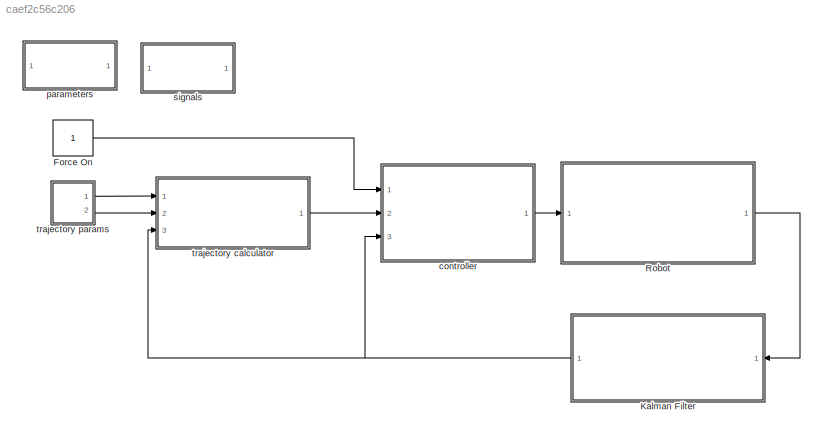
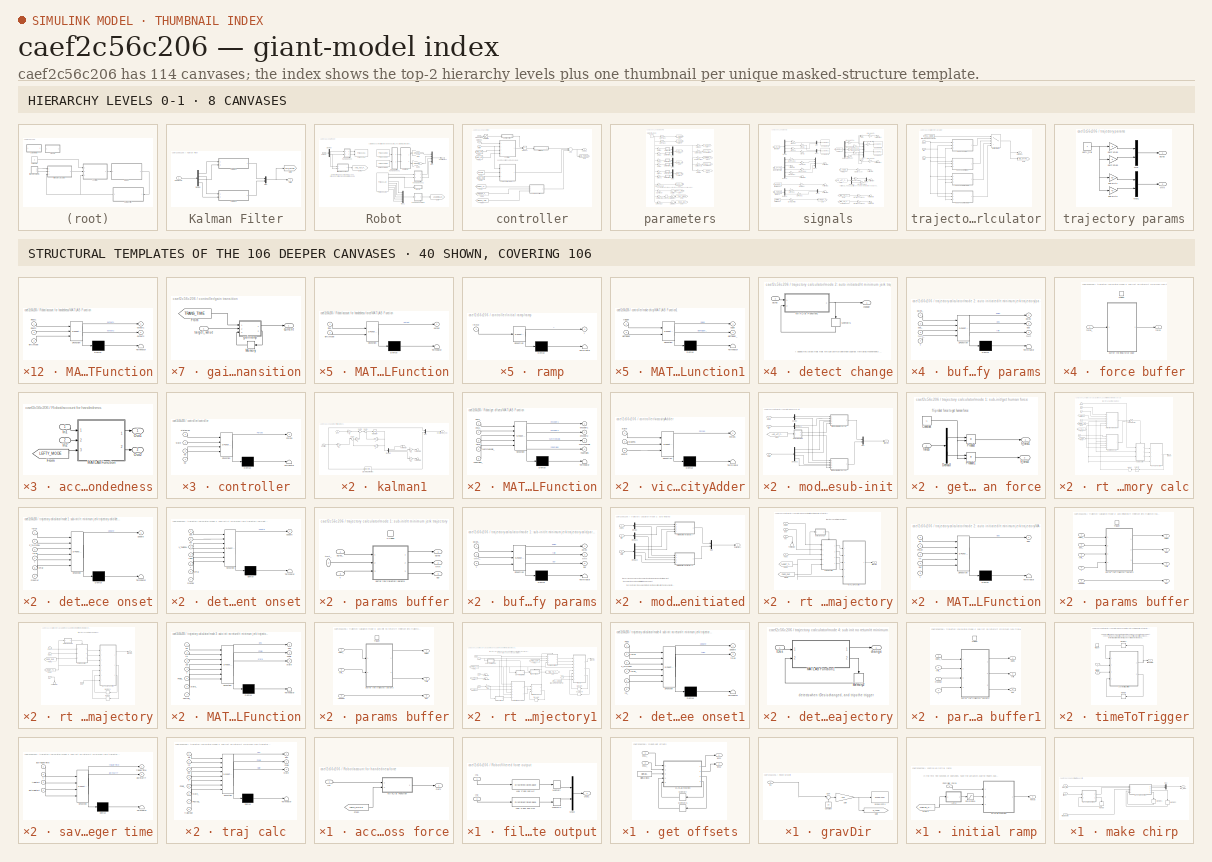
[diagram: thumbnail index - top-2 hierarchy levels (8 canvases) + 40 structural-template representatives of the remaining 106 canvases]
MODEL slx_caef2c56c206
KIND model
CONFIG InitFcn = settupFilter;
CONFIG PreLoadFcn = settupFilter;
BLOCK [Constant] Force On
BLOCK [SubSystem] Kalman Filter
  FunctionWithSeparateData = off
  MaskHideContents = off
  MinAlgLoopOccurrences = off
  Opaque = off
  Ports = [1, 1]
  PropExecContextOutsideSubsystem = off
  RTWSystemCode = Auto
  RequestExecContextInheritance = off
BLOCK [Demux] Kalman Filter/Demux
  DisplayOption = bar
  Ports = [1, 4]
BLOCK [Goto] Kalman Filter/Goto
  GotoTag = SIG_STATE
  TagVisibility = global
BLOCK [Mux] Kalman Filter/Mux
  DisplayOption = bar
  Inputs = 2
  Ports = [2, 1]
BLOCK [SubSystem] Kalman Filter/kalman1
  FunctionWithSeparateData = off
  MaskHideContents = off
  MinAlgLoopOccurrences = off
  Opaque = off
  Ports = [2, 1]
  PropExecContextOutsideSubsystem = off
  RTWSystemCode = Auto
  RequestExecContextInheritance = off
BLOCK [Gain] Kalman Filter/kalman1/A
  Gain = [0 0 0;0 0 1;-70 0 0]
  Multiplication = Matrix(K*u)
  OutDataTypeStr = Inherit: Inherit via internal rule
  ParamDataTypeStr = Inherit: Inherit via internal rule
  SaturateOnIntegerOverflow = off
BLOCK [Gain] Kalman Filter/kalman1/B
  Gain = [0;0;70]
  Multiplication = Matrix(K*u)
  OutDataTypeStr = Inherit: Inherit via internal rule
  ParamDataTypeStr = Inherit: Inherit via internal rule
  SaturateOnIntegerOverflow = off
BLOCK [Gain] Kalman Filter/kalman1/B1
  Gain = -1
  Multiplication = Matrix(K*u)
  OutDataTypeStr = Inherit: Inherit via internal rule
  ParamDataTypeStr = Inherit: Inherit via internal rule
  SaturateOnIntegerOverflow = off
BLOCK [Gain] Kalman Filter/kalman1/B2
  Multiplication = Matrix(K*u)
  OutDataTypeStr = Inherit: Inherit via internal rule
  ParamDataTypeStr = Inherit: Inherit via internal rule
  SaturateOnIntegerOverflow = off
BLOCK [Gain] Kalman Filter/kalman1/B3
  Gain = -1
  Multiplication = Matrix(K*u)
  OutDataTypeStr = Inherit: Inherit via internal rule
  ParamDataTypeStr = Inherit: Inherit via internal rule
  SaturateOnIntegerOverflow = off
BLOCK [Gain] Kalman Filter/kalman1/C
  Gain = [0 1 0]
  Multiplication = Matrix(K*u)
  OutDataTypeStr = Inherit: Inherit via internal rule
  ParamDataTypeStr = Inherit: Inherit via internal rule
  SaturateOnIntegerOverflow = off
BLOCK [Demux] Kalman Filter/kalman1/Demux
  DisplayOption = bar
  Outputs = 3
  Ports = [1, 3]
BLOCK [Reference] Kalman Filter/kalman1/Discrete Derivative  REF=simulink/Discrete/Discrete Derivative
  DoSatur = off
  ICPrevScaledInput = 0.0
  InputProcessing = Inherited
  LockScale = off
  OutDataType = fixdt(1, 16)
  OutDataTypeStr = Inherit: Inherit via internal rule
  OutMax = []
  OutMin = []
  OutScaling = 2^-10
  OutputDataTypeScalingMode = Inherit via internal rule
  Ports = [1, 1]
  RndMeth = Floor
  SourceBlock = simulink/Discrete/Discrete Derivative
  SourceType = Discrete Derivative
  gainval = 1.0
BLOCK [Integrator] Kalman Filter/kalman1/Integrator
  InitialCondition = [1.5;0;0]
  Ports = [1, 1]
BLOCK [Gain] Kalman Filter/kalman1/K
  Gain = [-316;101;5050]
  Multiplication = Matrix(K*u)
  OutDataTypeStr = Inherit: Inherit via internal rule
  ParamDataTypeStr = Inherit: Inherit via internal rule
  SaturateOnIntegerOverflow = off
BLOCK [Mux] Kalman Filter/kalman1/Mux
  DisplayOption = bar
  Inputs = 2
  Ports = [2, 1]
BLOCK [Sum] Kalman Filter/kalman1/Sum2
  IconShape = round
  InputSameDT = off
  Inputs = |+-
  OutDataTypeStr = Inherit: Inherit via internal rule
  Ports = [2, 1]
  SaturateOnIntegerOverflow = off
BLOCK [Sum] Kalman Filter/kalman1/Sum3
  IconShape = round
  InputSameDT = off
  Inputs = |++
  OutDataTypeStr = Inherit: Inherit via internal rule
  Ports = [2, 1]
  SaturateOnIntegerOverflow = off
BLOCK [Sum] Kalman Filter/kalman1/Sum4
  IconShape = round
  InputSameDT = off
  Inputs = |++
  OutDataTypeStr = Inherit: Inherit via internal rule
  Ports = [2, 1]
  SaturateOnIntegerOverflow = off
BLOCK [Terminator] Kalman Filter/kalman1/Terminator
BLOCK [Terminator] Kalman Filter/kalman1/Terminator1
BLOCK [Terminator] Kalman Filter/kalman1/Terminator2
BLOCK [Inport] Kalman Filter/kalman1/acc
  IconDisplay = Port number
  Port = 2
BLOCK [Inport] Kalman Filter/kalman1/position
  IconDisplay = Port number
BLOCK [Outport] Kalman Filter/kalman1/position//est_vel
  IconDisplay = Port number
BLOCK [SubSystem] Kalman Filter/kalman2
  FunctionWithSeparateData = off
  MaskHideContents = off
  MinAlgLoopOccurrences = off
  Opaque = off
  Ports = [2, 1]
  PropExecContextOutsideSubsystem = off
  RTWSystemCode = Auto
  RequestExecContextInheritance = off
BLOCK [Gain] Kalman Filter/kalman2/A
  Gain = [0 0 0;0 0 1;-65 0 0]
  Multiplication = Matrix(K*u)
  OutDataTypeStr = Inherit: Inherit via internal rule
  ParamDataTypeStr = Inherit: Inherit via internal rule
  SaturateOnIntegerOverflow = off
BLOCK [Gain] Kalman Filter/kalman2/B
  Gain = [0;0;65]
  Multiplication = Matrix(K*u)
  OutDataTypeStr = Inherit: Inherit via internal rule
  ParamDataTypeStr = Inherit: Inherit via internal rule
  SaturateOnIntegerOverflow = off
BLOCK [Gain] Kalman Filter/kalman2/B1
  Gain = -1
  Multiplication = Matrix(K*u)
  OutDataTypeStr = Inherit: Inherit via internal rule
  ParamDataTypeStr = Inherit: Inherit via internal rule
  SaturateOnIntegerOverflow = off
BLOCK [Gain] Kalman Filter/kalman2/B2
  Multiplication = Matrix(K*u)
  OutDataTypeStr = Inherit: Inherit via internal rule
  ParamDataTypeStr = Inherit: Inherit via internal rule
  SaturateOnIntegerOverflow = off
BLOCK [Gain] Kalman Filter/kalman2/B3
  Gain = -1
  Multiplication = Matrix(K*u)
  OutDataTypeStr = Inherit: Inherit via internal rule
  ParamDataTypeStr = Inherit: Inherit via internal rule
  SaturateOnIntegerOverflow = off
BLOCK [Gain] Kalman Filter/kalman2/C
  Gain = [0 1 0]
  Multiplication = Matrix(K*u)
  OutDataTypeStr = Inherit: Inherit via internal rule
  ParamDataTypeStr = Inherit: Inherit via internal rule
  SaturateOnIntegerOverflow = off
BLOCK [Demux] Kalman Filter/kalman2/Demux
  DisplayOption = bar
  Outputs = 3
  Ports = [1, 3]
BLOCK [Reference] Kalman Filter/kalman2/Discrete Derivative  REF=simulink/Discrete/Discrete Derivative
  DoSatur = off
  ICPrevScaledInput = 0.0
  InputProcessing = Inherited
  LockScale = off
  OutDataType = fixdt(1, 16)
  OutDataTypeStr = Inherit: Inherit via internal rule
  OutMax = []
  OutMin = []
  OutScaling = 2^-10
  OutputDataTypeScalingMode = Inherit via internal rule
  Ports = [1, 1]
  RndMeth = Floor
  SourceBlock = simulink/Discrete/Discrete Derivative
  SourceType = Discrete Derivative
  gainval = 1.0
BLOCK [Integrator] Kalman Filter/kalman2/Integrator
  InitialCondition = [1.5;0;0]
  Ports = [1, 1]
BLOCK [Gain] Kalman Filter/kalman2/K
  Gain = [-316;101;5050]
  Multiplication = Matrix(K*u)
  OutDataTypeStr = Inherit: Inherit via internal rule
  ParamDataTypeStr = Inherit: Inherit via internal rule
  SaturateOnIntegerOverflow = off
BLOCK [Mux] Kalman Filter/kalman2/Mux
  DisplayOption = bar
  Inputs = 2
  Ports = [2, 1]
BLOCK [Sum] Kalman Filter/kalman2/Sum2
  IconShape = round
  InputSameDT = off
  Inputs = |+-
  OutDataTypeStr = Inherit: Inherit via internal rule
  Ports = [2, 1]
  SaturateOnIntegerOverflow = off
BLOCK [Sum] Kalman Filter/kalman2/Sum3
  IconShape = round
  InputSameDT = off
  Inputs = |++
  OutDataTypeStr = Inherit: Inherit via internal rule
  Ports = [2, 1]
  SaturateOnIntegerOverflow = off
BLOCK [Sum] Kalman Filter/kalman2/Sum4
  IconShape = round
  InputSameDT = off
  Inputs = |++
  OutDataTypeStr = Inherit: Inherit via internal rule
  Ports = [2, 1]
  SaturateOnIntegerOverflow = off
BLOCK [Terminator] Kalman Filter/kalman2/Terminator
BLOCK [Terminator] Kalman Filter/kalman2/Terminator1
BLOCK [Terminator] Kalman Filter/kalman2/Terminator2
BLOCK [Inport] Kalman Filter/kalman2/acc
  IconDisplay = Port number
  Port = 2
BLOCK [Inport] Kalman Filter/kalman2/position
  IconDisplay = Port number
BLOCK [Outport] Kalman Filter/kalman2/position//est_vel
  IconDisplay = Port number
BLOCK [Inport] Kalman Filter/pos//accel
  IconDisplay = Port number
BLOCK [Outport] Kalman Filter/state
  IconDisplay = Port number
BLOCK [SubSystem] Robot
  FunctionWithSeparateData = off
  MaskHideContents = off
  MinAlgLoopOccurrences = off
  Opaque = off
  Ports = [1, 1]
  PropExecContextOutsideSubsystem = off
  RTWSystemCode = Auto
  RequestExecContextInheritance = off
BLOCK [Demux] Robot/Demux
  DisplayOption = bar
  Outputs = 2
  Ports = [1, 2]
BLOCK [Inport] Robot/Forces
  IconDisplay = Port number
BLOCK [Gain] Robot/Gain
  Gain = 1/4500.0
  OutDataTypeStr = Inherit: Inherit via internal rule
  ParamDataTypeStr = Inherit: Inherit via internal rule
  SaturateOnIntegerOverflow = off
BLOCK [Gain] Robot/Gain1
  Gain = 1/4500.0
  OutDataTypeStr = Inherit: Inherit via internal rule
  ParamDataTypeStr = Inherit: Inherit via internal rule
  SaturateOnIntegerOverflow = off
BLOCK [Goto] Robot/Goto
  GotoTag = LOADCELLS
  TagVisibility = global
BLOCK [Goto] Robot/Goto1
  GotoTag = AVE_ACT_FORCE
  TagVisibility = global
BLOCK [Mux] Robot/Mux
  DisplayOption = bar
  Ports = [4, 1]
BLOCK [Mux] Robot/Mux1
  DisplayOption = bar
  Inputs = 5
  Ports = [5, 1]
BLOCK [Reference] Robot/PCI 6221 ENC   REF=xpcnilib/Incremental
Encoder/PCI 6221 ENC 
  Ports = [0, 1]
  SourceBlock = xpcnilib/Incremental\nEncoder/PCI 6221 ENC
  SourceType = encinpnipci6221
  channel = 0
  countMode = Quadrature Mode x4
  filter = Minimum pulse width 125 nanoseconds
  indexPhase = A low B low
  initCount = 0
  reload = off
  sampleTime = 0.001
  slot = -1
BLOCK [Reference] Robot/PCI 6221 ENC 1  REF=xpcnilib/Incremental
Encoder/PCI 6221 ENC 
  Ports = [0, 1]
  SourceBlock = xpcnilib/Incremental\nEncoder/PCI 6221 ENC
  SourceType = encinpnipci6221
  channel = 1
  countMode = Quadrature Mode x4
  filter = Minimum pulse width 125 nanoseconds
  indexPhase = A low B low
  initCount = 0
  reload = off
  sampleTime = 0.001
  slot = -1
BLOCK [Reference] Robot/PCI-6221 AD1  REF=xpcnilib/A//D/M Series/PCI-6221 AD
  Ports = [0, 8]
  SourceBlock = xpcnilib/A//D/M Series/PCI-6221 AD
  SourceType = adnipci6221
  channel = [1 2 3 4 5 6 7 8]
  coupling = [0]
  range = [10]
  sampletime = 0.001
  scantime = 5e-6
  slot = -1
BLOCK [Reference] Robot/PCI-6221 DA  REF=xpcnilib/D//A/M Series/PCI-6221 DA
  Ports = [2]
  SourceBlock = xpcnilib/D//A/M Series/PCI-6221 DA
  SourceType = danipci6221
  channel = [1 2]
  initValue = [0]
  reset = [1]
  sampletime = 0.001
  slot = -1
BLOCK [SubSystem] Robot/account for handedness
  FunctionWithSeparateData = off
  MaskHideContents = off
  MinAlgLoopOccurrences = off
  Opaque = off
  Ports = [2, 2]
  PropExecContextOutsideSubsystem = off
  RTWSystemCode = Auto
  RequestExecContextInheritance = off
BLOCK [SubSystem] Robot/account for handedness force
  FunctionWithSeparateData = off
  MaskHideContents = off
  MinAlgLoopOccurrences = off
  Opaque = off
  Ports = [1, 1]
  PropExecContextOutsideSubsystem = off
  RTWSystemCode = Auto
  RequestExecContextInheritance = off
BLOCK [From] Robot/account for handedness force/From
  GotoTag = LEFTY_MODE
  TagVisibility = global
BLOCK [Inport] Robot/account for handedness force/In1
  IconDisplay = Port number
BLOCK [SubSystem] Robot/account for handedness force/MATLAB Function
  ErrorFcn = Stateflow.Translate.translate
  FunctionWithSeparateData = off
  MaskHideContents = off
  MinAlgLoopOccurrences = off
  Opaque = off
  PermitHierarchicalResolution = ExplicitOnly
  Ports = [2, 1]
  PropExecContextOutsideSubsystem = off
  RTWSystemCode = Auto
  RequestExecContextInheritance = off
  SFBlockType = MATLAB Function
  TreatAsAtomicUnit = on
BLOCK [Demux] Robot/account for handedness force/MATLAB Function/ Demux 
  Outputs = 1
  Ports = [1, 1]
BLOCK [S-Function] Robot/account for handedness force/MATLAB Function/ SFunction 
  EnableBusSupport = on
  FunctionName = sf_sfun
  PortCounts = [2 2]
  Ports = [2, 2]
  Tag = Stateflow S-Function FingerEAERCtrl 26
BLOCK [Terminator] Robot/account for handedness force/MATLAB Function/ Terminator 
BLOCK [Inport] Robot/account for handedness force/MATLAB Function/inp1
  IconDisplay = Port number
BLOCK [Inport] Robot/account for handedness force/MATLAB Function/leftyMode
  IconDisplay = Port number
  Port = 2
BLOCK [Outport] Robot/account for handedness force/MATLAB Function/output
  IconDisplay = Port number
BLOCK [Outport] Robot/account for handedness force/Out1
  IconDisplay = Port number
BLOCK [From] Robot/account for handedness/From
  GotoTag = LEFTY_MODE
  TagVisibility = global
BLOCK [Inport] Robot/account for handedness/In1
  IconDisplay = Port number
BLOCK [Inport] Robot/account for handedness/In2
  IconDisplay = Port number
  Port = 2
BLOCK [SubSystem] Robot/account for handedness/MATLAB Function
  ErrorFcn = Stateflow.Translate.translate
  FunctionWithSeparateData = off
  MaskHideContents = off
  MinAlgLoopOccurrences = off
  Opaque = off
  PermitHierarchicalResolution = ExplicitOnly
  Ports = [3, 2]
  PropExecContextOutsideSubsystem = off
  RTWSystemCode = Auto
  RequestExecContextInheritance = off
  SFBlockType = MATLAB Function
  TreatAsAtomicUnit = on
BLOCK [Demux] Robot/account for handedness/MATLAB Function/ Demux 
  Outputs = 1
  Ports = [1, 1]
BLOCK [S-Function] Robot/account for handedness/MATLAB Function/ SFunction 
  EnableBusSupport = on
  FunctionName = sf_sfun
  PortCounts = [3 3]
  Ports = [3, 3]
  Tag = Stateflow S-Function FingerEAERCtrl 11
BLOCK [Terminator] Robot/account for handedness/MATLAB Function/ Terminator 
BLOCK [Inport] Robot/account for handedness/MATLAB Function/input1
  IconDisplay = Port number
BLOCK [Inport] Robot/account for handedness/MATLAB Function/input2
  IconDisplay = Port number
  Port = 2
BLOCK [Inport] Robot/account for handedness/MATLAB Function/leftyMode
  IconDisplay = Port number
  Port = 3
BLOCK [Outport] Robot/account for handedness/MATLAB Function/output1
  IconDisplay = Port number
BLOCK [Outport] Robot/account for handedness/MATLAB Function/output2
  IconDisplay = Port number
  Port = 2
BLOCK [Outport] Robot/account for handedness/Out1
  IconDisplay = Port number
BLOCK [Outport] Robot/account for handedness/Out2
  IconDisplay = Port number
  Port = 2
BLOCK [SubSystem] Robot/account for handedness1
  FunctionWithSeparateData = off
  MaskHideContents = off
  MinAlgLoopOccurrences = off
  Opaque = off
  Ports = [2, 2]
  PropExecContextOutsideSubsystem = off
  RTWSystemCode = Auto
  RequestExecContextInheritance = off
BLOCK [From] Robot/account for handedness1/From
  GotoTag = LEFTY_MODE
  TagVisibility = global
BLOCK [Inport] Robot/account for handedness1/In1
  IconDisplay = Port number
BLOCK [Inport] Robot/account for handedness1/In2
  IconDisplay = Port number
  Port = 2
BLOCK [SubSystem] Robot/account for handedness1/MATLAB Function
  ErrorFcn = Stateflow.Translate.translate
  FunctionWithSeparateData = off
  MaskHideContents = off
  MinAlgLoopOccurrences = off
  Opaque = off
  PermitHierarchicalResolution = ExplicitOnly
  Ports = [3, 2]
  PropExecContextOutsideSubsystem = off
  RTWSystemCode = Auto
  RequestExecContextInheritance = off
  SFBlockType = MATLAB Function
  TreatAsAtomicUnit = on
BLOCK [Demux] Robot/account for handedness1/MATLAB Function/ Demux 
  Outputs = 1
  Ports = [1, 1]
BLOCK [S-Function] Robot/account for handedness1/MATLAB Function/ SFunction 
  EnableBusSupport = on
  FunctionName = sf_sfun
  PortCounts = [3 3]
  Ports = [3, 3]
  Tag = Stateflow S-Function FingerEAERCtrl 12
BLOCK [Terminator] Robot/account for handedness1/MATLAB Function/ Terminator 
BLOCK [Inport] Robot/account for handedness1/MATLAB Function/input1
  IconDisplay = Port number
BLOCK [Inport] Robot/account for handedness1/MATLAB Function/input2
  IconDisplay = Port number
  Port = 2
BLOCK [Inport] Robot/account for handedness1/MATLAB Function/leftyMode
  IconDisplay = Port number
  Port = 3
BLOCK [Outport] Robot/account for handedness1/MATLAB Function/output1
  IconDisplay = Port number
BLOCK [Outport] Robot/account for handedness1/MATLAB Function/output2
  IconDisplay = Port number
  Port = 2
BLOCK [Outport] Robot/account for handedness1/Out1
  IconDisplay = Port number
BLOCK [Outport] Robot/account for handedness1/Out2
  IconDisplay = Port number
  Port = 2
BLOCK [SubSystem] Robot/account for handedness2
  FunctionWithSeparateData = off
  MaskHideContents = off
  MinAlgLoopOccurrences = off
  Opaque = off
  Ports = [2, 2]
  PropExecContextOutsideSubsystem = off
  RTWSystemCode = Auto
  RequestExecContextInheritance = off
BLOCK [From] Robot/account for handedness2/From
  GotoTag = LEFTY_MODE
  TagVisibility = global
BLOCK [Inport] Robot/account for handedness2/In1
  IconDisplay = Port number
BLOCK [Inport] Robot/account for handedness2/In2
  IconDisplay = Port number
  Port = 2
BLOCK [SubSystem] Robot/account for handedness2/MATLAB Function
  ErrorFcn = Stateflow.Translate.translate
  FunctionWithSeparateData = off
  MaskHideContents = off
  MinAlgLoopOccurrences = off
  Opaque = off
  PermitHierarchicalResolution = ExplicitOnly
  Ports = [3, 2]
  PropExecContextOutsideSubsystem = off
  RTWSystemCode = Auto
  RequestExecContextInheritance = off
  SFBlockType = MATLAB Function
  TreatAsAtomicUnit = on
BLOCK [Demux] Robot/account for handedness2/MATLAB Function/ Demux 
  Outputs = 1
  Ports = [1, 1]
BLOCK [S-Function] Robot/account for handedness2/MATLAB Function/ SFunction 
  EnableBusSupport = on
  FunctionName = sf_sfun
  PortCounts = [3 3]
  Ports = [3, 3]
  Tag = Stateflow S-Function FingerEAERCtrl 13
BLOCK [Terminator] Robot/account for handedness2/MATLAB Function/ Terminator 
BLOCK [Inport] Robot/account for handedness2/MATLAB Function/input1
  IconDisplay = Port number
BLOCK [Inport] Robot/account for handedness2/MATLAB Function/input2
  IconDisplay = Port number
  Port = 2
BLOCK [Inport] Robot/account for handedness2/MATLAB Function/leftyMode
  IconDisplay = Port number
  Port = 3
BLOCK [Outport] Robot/account for handedness2/MATLAB Function/output1
  IconDisplay = Port number
BLOCK [Outport] Robot/account for handedness2/MATLAB Function/output2
  IconDisplay = Port number
  Port = 2
BLOCK [Outport] Robot/account for handedness2/Out1
  IconDisplay = Port number
BLOCK [Outport] Robot/account for handedness2/Out2
  IconDisplay = Port number
  Port = 2
BLOCK [SubSystem] Robot/filtered force output
  FunctionWithSeparateData = off
  MaskHideContents = off
  MinAlgLoopOccurrences = off
  Opaque = off
  Ports = [2, 1]
  PropExecContextOutsideSubsystem = off
  RTWSystemCode = Auto
  RequestExecContextInheritance = off
BLOCK [Inport] Robot/filtered force output/In1
  IconDisplay = Port number
BLOCK [Inport] Robot/filtered force output/In2
  IconDisplay = Port number
  Port = 2
BLOCK [DiscreteStateSpace] Robot/filtered force output/Low Pass 100 Hz
  A = Alow
  B = Blow
  C = Clow
  D = Dlow
  SampleTime = -1
  X0 = x0low
BLOCK [DiscreteStateSpace] Robot/filtered force output/Low Pass 100 Hz1
  A = Alow
  B = Blow
  C = Clow
  D = Dlow
  SampleTime = -1
  X0 = x0low
BLOCK [Memory] Robot/filtered force output/Memory
BLOCK [Memory] Robot/filtered force output/Memory1
BLOCK [Mux] Robot/filtered force output/Mux2
  DisplayOption = bar
  Inputs = 2
  Ports = [2, 1]
BLOCK [Outport] Robot/filtered force output/Out1
  IconDisplay = Port number
BLOCK [SubSystem] Robot/get offsets
  FunctionWithSeparateData = off
  MaskHideContents = off
  MinAlgLoopOccurrences = off
  Opaque = off
  Ports = [2, 2]
  PropExecContextOutsideSubsystem = off
  RTWSystemCode = Auto
  RequestExecContextInheritance = off
BLOCK [DigitalClock] Robot/get offsets/Digital Clock
  SampleTime = .001
BLOCK [SubSystem] Robot/get offsets/MATLAB Function
  ErrorFcn = Stateflow.Translate.translate
  FunctionWithSeparateData = off
  MaskHideContents = off
  MinAlgLoopOccurrences = off
  Opaque = off
  PermitHierarchicalResolution = ExplicitOnly
  Ports = [5, 4]
  PropExecContextOutsideSubsystem = off
  RTWSystemCode = Auto
  RequestExecContextInheritance = off
  SFBlockType = MATLAB Function
  TreatAsAtomicUnit = on
BLOCK [Demux] Robot/get offsets/MATLAB Function/ Demux 
  Outputs = 1
  Ports = [1, 1]
BLOCK [S-Function] Robot/get offsets/MATLAB Function/ SFunction 
  EnableBusSupport = on
  FunctionName = sf_sfun
  PortCounts = [5 5]
  Ports = [5, 5]
  Tag = Stateflow S-Function FingerEAERCtrl 9
BLOCK [Terminator] Robot/get offsets/MATLAB Function/ Terminator 
BLOCK [Inport] Robot/get offsets/MATLAB Function/enc1_
  IconDisplay = Port number
BLOCK [Inport] Robot/get offsets/MATLAB Function/enc2_
  IconDisplay = Port number
  Port = 2
BLOCK [Outport] Robot/get offsets/MATLAB Function/encoder1
  IconDisplay = Port number
BLOCK [Outport] Robot/get offsets/MATLAB Function/encoder2
  IconDisplay = Port number
  Port = 2
BLOCK [Outport] Robot/get offsets/MATLAB Function/nSamples
  IconDisplay = Port number
  Port = 4
BLOCK [Inport] Robot/get offsets/MATLAB Function/nSamples_
  IconDisplay = Port number
  Port = 5
BLOCK [Outport] Robot/get offsets/MATLAB Function/summedVals
  IconDisplay = Port number
  Port = 3
BLOCK [Inport] Robot/get offsets/MATLAB Function/summedVals_
  IconDisplay = Port number
  Port = 4
BLOCK [Inport] Robot/get offsets/MATLAB Function/time
  IconDisplay = Port number
  Port = 3
BLOCK [Memory] Robot/get offsets/Memory
BLOCK [Memory] Robot/get offsets/Memory1
  X0 = [0,0]
BLOCK [Outport] Robot/get offsets/enc1
  IconDisplay = Port number
BLOCK [Inport] Robot/get offsets/enc1_
  IconDisplay = Port number
BLOCK [Outport] Robot/get offsets/enc2
  IconDisplay = Port number
  Port = 2
BLOCK [Inport] Robot/get offsets/enc2_
  IconDisplay = Port number
  Port = 2
BLOCK [SubSystem] Robot/gravDir
  FunctionWithSeparateData = off
  MaskHideContents = off
  MinAlgLoopOccurrences = off
  Opaque = off
  Ports = [1]
  PropExecContextOutsideSubsystem = off
  RTWSystemCode = Auto
  RequestExecContextInheritance = off
BLOCK [Constant] Robot/gravDir/Constant
  Value = 1.5
BLOCK [Goto] Robot/gravDir/Goto
  GotoTag = G_ACCEL
  TagVisibility = global
BLOCK [Inport] Robot/gravDir/In1
  IconDisplay = Port number
BLOCK [Reference] Robot/gravDir/Scope (xPC) 1  REF=xpclib/Misc./Scope (xPC) 
  Ports = [1]
  SourceBlock = xpclib/Misc./Scope (xPC)
  SourceType = xpcscopeblock
  autorestart = off
  autostart = on
  dynamicfilemode = off
  filename = data.dat
  formatstr = '%15.6f'
  grid = on
  interleave = 1
  maxwritefilesize = 512*1024^2
  mode = Lazy
  noprepostsamples = 0
  nosamples = 500
  scopeno = 3
  scopetype = Target
  triggerlevel = 0.0
  triggermode = FreeRun
  triggersample = 0
  triggerscope = 1
  triggersignal = 1
  triggerslope = Either
  viewmode = Graphical redraw
  writesize = 512
  ylimits = [.03,.1]
BLOCK [Sum] Robot/gravDir/Sum
  IconShape = round
  InputSameDT = off
  Inputs = |+-
  OutDataTypeStr = Inherit: Inherit via internal rule
  Ports = [2, 1]
  SaturateOnIntegerOverflow = off
BLOCK [Gain] Robot/gravDir/gain
  Gain = .172
  OutDataTypeStr = Inherit: Inherit via internal rule
  ParamDataTypeStr = Inherit: Inherit via internal rule
  SaturateOnIntegerOverflow = off
BLOCK [Outport] Robot/position//acc
  IconDisplay = Port number
BLOCK [SubSystem] controller
  FunctionWithSeparateData = off
  MaskHideContents = off
  MinAlgLoopOccurrences = off
  Opaque = off
  Ports = [3, 1]
  PropExecContextOutsideSubsystem = off
  RTWSystemCode = Auto
  RequestExecContextInheritance = off
BLOCK [Sum] controller/Add
  InputSameDT = off
  Inputs = +++
  OutDataTypeStr = Inherit: Inherit via internal rule
  Ports = [3, 1]
  SaturateOnIntegerOverflow = off
BLOCK [Outport] controller/Forces
  IconDisplay = Port number
BLOCK [From] controller/From
  GotoTag = GAINS_KP
  TagVisibility = global
BLOCK [From] controller/From1
  GotoTag = GAINS_KD
  TagVisibility = global
BLOCK [From] controller/From2
  GotoTag = TARGET_TIME
  TagVisibility = global
BLOCK [From] controller/From3
  GotoTag = TRIGGER_FORCE
  TagVisibility = global
BLOCK [From] controller/From4
  GotoTag = WIGGLE_AMP
  TagVisibility = global
BLOCK [From] controller/From5
  GotoTag = GAINS_VISC
  TagVisibility = global
BLOCK [From] controller/From6
  GotoTag = PSTOP
  TagVisibility = global
BLOCK [Goto] controller/Goto
  GotoTag = SIG_FORCES
  TagVisibility = global
BLOCK [Product] controller/Product
  InputSameDT = off
  OutDataTypeStr = Inherit: Inherit via internal rule
  Ports = [2, 1]
  SaturateOnIntegerOverflow = off
BLOCK [Saturate] controller/Saturation
  InputPortMap = u0
  LowerLimit = 0
  Ports = [1, 1]
  UpperLimit = 1
BLOCK [SubSystem] controller/controller
  ErrorFcn = Stateflow.Translate.translate
  FunctionWithSeparateData = off
  MaskHideContents = off
  MinAlgLoopOccurrences = off
  Opaque = off
  PermitHierarchicalResolution = ExplicitOnly
  Ports = [4, 1]
  PropExecContextOutsideSubsystem = off
  RTWSystemCode = Auto
  RequestExecContextInheritance = off
  SFBlockType = MATLAB Function
  TreatAsAtomicUnit = on
BLOCK [Demux] controller/controller/ Demux 
  Outputs = 1
  Ports = [1, 1]
BLOCK [S-Function] controller/controller/ SFunction 
  EnableBusSupport = on
  FunctionName = sf_sfun
  PortCounts = [4 2]
  Ports = [4, 2]
  Tag = Stateflow S-Function FingerEAERCtrl 2
BLOCK [Terminator] controller/controller/ Terminator 
BLOCK [Outport] controller/controller/Forces
  IconDisplay = Port number
BLOCK [Inport] controller/controller/Kd
  IconDisplay = Port number
  Port = 4
BLOCK [Inport] controller/controller/Kp
  IconDisplay = Port number
  Port = 3
BLOCK [Inport] controller/controller/state
  IconDisplay = Port number
  Port = 2
BLOCK [Inport] controller/controller/stateDes
  IconDisplay = Port number
BLOCK [SubSystem] controller/gain transition
  FunctionWithSeparateData = off
  MaskHideContents = off
  MinAlgLoopOccurrences = off
  Opaque = off
  Ports = [1, 1]
  PropExecContextOutsideSubsystem = off
  RTWSystemCode = Auto
  RequestExecContextInheritance = off
BLOCK [From] controller/gain transition/From
  GotoTag = TRANS_TIME
  TagVisibility = global
BLOCK [Memory] controller/gain transition/Memory
  X0 = zeros(1,4)
BLOCK [Outport] controller/gain transition/current
  IconDisplay = Port number
BLOCK [SubSystem] controller/gain transition/gainramp
  ErrorFcn = Stateflow.Translate.translate
  FunctionWithSeparateData = off
  MaskHideContents = off
  MinAlgLoopOccurrences = off
  Opaque = off
  PermitHierarchicalResolution = ExplicitOnly
  Ports = [3, 2]
  PropExecContextOutsideSubsystem = off
  RTWSystemCode = Auto
  RequestExecContextInheritance = off
  SFBlockType = MATLAB Function
  TreatAsAtomicUnit = on
BLOCK [Demux] controller/gain transition/gainramp/ Demux 
  Outputs = 1
  Ports = [1, 1]
BLOCK [S-Function] controller/gain transition/gainramp/ SFunction 
  EnableBusSupport = on
  FunctionName = sf_sfun
  PortCounts = [3 3]
  Ports = [3, 3]
  Tag = Stateflow S-Function FingerEAERCtrl 8
BLOCK [Terminator] controller/gain transition/gainramp/ Terminator 
BLOCK [Inport] controller/gain transition/gainramp/state
  IconDisplay = Port number
  Port = 3
BLOCK [Outport] controller/gain transition/gainramp/state1
  IconDisplay = Port number
  Port = 2
BLOCK [Inport] controller/gain transition/gainramp/tr
  IconDisplay = Port number
BLOCK [Outport] controller/gain transition/gainramp/val
  IconDisplay = Port number
BLOCK [Inport] controller/gain transition/gainramp/valD
  IconDisplay = Port number
  Port = 2
BLOCK [Inport] controller/gain transition/target_value
  IconDisplay = Port number
BLOCK [SubSystem] controller/initial ramp
  FunctionWithSeparateData = off
  MaskHideContents = off
  MinAlgLoopOccurrences = off
  Opaque = off
  Ports = [1, 1]
  PropExecContextOutsideSubsystem = off
  RTWSystemCode = Auto
  RequestExecContextInheritance = off
BLOCK [Inport] controller/initial ramp/Controller Force
  IconDisplay = Port number
BLOCK [Outport] controller/initial ramp/Force
  IconDisplay = Port number
BLOCK [From] controller/initial ramp/From1
  GotoTag = TARGET_TIME
  TagVisibility = global
BLOCK [SubSystem] controller/initial ramp/MATLAB Function
  ErrorFcn = Stateflow.Translate.translate
  FunctionWithSeparateData = off
  MaskHideContents = off
  MinAlgLoopOccurrences = off
  Opaque = off
  PermitHierarchicalResolution = ExplicitOnly
  Ports = [3, 1]
  PropExecContextOutsideSubsystem = off
  RTWSystemCode = Auto
  RequestExecContextInheritance = off
  SFBlockType = MATLAB Function
  TreatAsAtomicUnit = on
BLOCK [Demux] controller/initial ramp/MATLAB Function/ Demux 
  Outputs = 1
  Ports = [1, 1]
BLOCK [S-Function] controller/initial ramp/MATLAB Function/ SFunction 
  EnableBusSupport = on
  FunctionName = sf_sfun
  PortCounts = [3 2]
  Ports = [3, 2]
  Tag = Stateflow S-Function FingerEAERCtrl 10
BLOCK [Terminator] controller/initial ramp/MATLAB Function/ Terminator 
BLOCK [Outport] controller/initial ramp/MATLAB Function/Force
  IconDisplay = Port number
BLOCK [Inport] controller/initial ramp/MATLAB Function/ctrlForce
  IconDisplay = Port number
BLOCK [Inport] controller/initial ramp/MATLAB Function/rampForce
  IconDisplay = Port number
  Port = 2
BLOCK [Inport] controller/initial ramp/MATLAB Function/time
  IconDisplay = Port number
  Port = 3
BLOCK [Saturate] controller/initial ramp/Saturation1
  InputPortMap = u0
  LowerLimit = -2.5
  Ports = [1, 1]
  UpperLimit = 2.5
BLOCK [SubSystem] controller/initial ramp/ramp
  ErrorFcn = Stateflow.Translate.translate
  FunctionWithSeparateData = off
  MaskHideContents = off
  MinAlgLoopOccurrences = off
  Opaque = off
  PermitHierarchicalResolution = ExplicitOnly
  Ports = [1, 1]
  PropExecContextOutsideSubsystem = off
  RTWSystemCode = Auto
  RequestExecContextInheritance = off
  SFBlockType = MATLAB Function
  TreatAsAtomicUnit = on
BLOCK [Demux] controller/initial ramp/ramp/ Demux 
  Outputs = 1
  Ports = [1, 1]
BLOCK [S-Function] controller/initial ramp/ramp/ SFunction 
  EnableBusSupport = on
  FunctionName = sf_sfun
  PortCounts = [1 2]
  Ports = [1, 2]
  Tag = Stateflow S-Function FingerEAERCtrl 45
BLOCK [Terminator] controller/initial ramp/ramp/ Terminator 
BLOCK [Inport] controller/initial ramp/ramp/tTime
  IconDisplay = Port number
BLOCK [Outport] controller/initial ramp/ramp/y
  IconDisplay = Port number
BLOCK [SubSystem] controller/make chirp
  FunctionWithSeparateData = off
  MaskHideContents = off
  MinAlgLoopOccurrences = off
  Opaque = off
  Ports = [3, 1]
  PropExecContextOutsideSubsystem = off
  RTWSystemCode = Auto
  RequestExecContextInheritance = off
BLOCK [SubSystem] controller/make chirp/MATLAB Function
  ErrorFcn = Stateflow.Translate.translate
  FunctionWithSeparateData = off
  MaskHideContents = off
  MinAlgLoopOccurrences = off
  Opaque = off
  PermitHierarchicalResolution = ExplicitOnly
  Ports = [5, 4]
  PropExecContextOutsideSubsystem = off
  RTWSystemCode = Auto
  RequestExecContextInheritance = off
  SFBlockType = MATLAB Function
  TreatAsAtomicUnit = on
BLOCK [Demux] controller/make chirp/MATLAB Function/ Demux 
  Outputs = 1
  Ports = [1, 1]
BLOCK [S-Function] controller/make chirp/MATLAB Function/ SFunction 
  EnableBusSupport = on
  FunctionName = sf_sfun
  PortCounts = [5 5]
  Ports = [5, 5]
  Tag = Stateflow S-Function FingerEAERCtrl 30
BLOCK [Terminator] controller/make chirp/MATLAB Function/ Terminator 
BLOCK [Outport] controller/make chirp/MATLAB Function/f1
  IconDisplay = Port number
BLOCK [Outport] controller/make chirp/MATLAB Function/f2
  IconDisplay = Port number
  Port = 2
BLOCK [Inport] controller/make chirp/MATLAB Function/fNum
  IconDisplay = Port number
  Port = 5
BLOCK [Outport] controller/make chirp/MATLAB Function/fNum_
  IconDisplay = Port number
  Port = 4
BLOCK [Inport] controller/make chirp/MATLAB Function/now
  IconDisplay = Port number
BLOCK [Inport] controller/make chirp/MATLAB Function/tStart
  IconDisplay = Port number
  Port = 4
BLOCK [Outport] controller/make chirp/MATLAB Function/tStart_
  IconDisplay = Port number
  Port = 3
BLOCK [Inport] controller/make chirp/MATLAB Function/trigger
  IconDisplay = Port number
  Port = 2
BLOCK [Inport] controller/make chirp/MATLAB Function/wiggleAmp
  IconDisplay = Port number
  Port = 3
BLOCK [SubSystem] controller/make chirp/MATLAB Function1
  ErrorFcn = Stateflow.Translate.translate
  FunctionWithSeparateData = off
  MaskHideContents = off
  MinAlgLoopOccurrences = off
  Opaque = off
  PermitHierarchicalResolution = ExplicitOnly
  Ports = [2, 2]
  PropExecContextOutsideSubsystem = off
  RTWSystemCode = Auto
  RequestExecContextInheritance = off
  SFBlockType = MATLAB Function
  TreatAsAtomicUnit = on
BLOCK [Demux] controller/make chirp/MATLAB Function1/ Demux 
  Outputs = 1
  Ports = [1, 1]
BLOCK [S-Function] controller/make chirp/MATLAB Function1/ SFunction 
  EnableBusSupport = on
  FunctionName = sf_sfun
  PortCounts = [2 3]
  Ports = [2, 3]
  Tag = Stateflow S-Function FingerEAERCtrl 31
BLOCK [Terminator] controller/make chirp/MATLAB Function1/ Terminator 
BLOCK [Inport] controller/make chirp/MATLAB Function1/oldTrigger
  IconDisplay = Port number
  Port = 2
BLOCK [Outport] controller/make chirp/MATLAB Function1/oldTrigger_
  IconDisplay = Port number
  Port = 2
BLOCK [Outport] controller/make chirp/MATLAB Function1/pulse
  IconDisplay = Port number
BLOCK [Inport] controller/make chirp/MATLAB Function1/trigger
  IconDisplay = Port number
BLOCK [Memory] controller/make chirp/Memory
BLOCK [Memory] controller/make chirp/Memory1
BLOCK [Memory] controller/make chirp/Memory2
BLOCK [Mux] controller/make chirp/Mux
  DisplayOption = bar
  Inputs = 2
  Ports = [2, 1]
BLOCK [Inport] controller/make chirp/target_time
  IconDisplay = Port number
BLOCK [Outport] controller/make chirp/the_force
  IconDisplay = Port number
BLOCK [Inport] controller/make chirp/trigger
  IconDisplay = Port number
  Port = 2
BLOCK [Inport] controller/make chirp/wiggle amp
  IconDisplay = Port number
  Port = 3
BLOCK [Inport] controller/state
  IconDisplay = Port number
  Port = 3
BLOCK [Inport] controller/stateDes
  IconDisplay = Port number
  Port = 2
BLOCK [Inport] controller/stopForces
  IconDisplay = Port number
BLOCK [SubSystem] controller/viccosityAdder
  ErrorFcn = Stateflow.Translate.translate
  FunctionWithSeparateData = off
  MaskHideContents = off
  MinAlgLoopOccurrences = off
  Opaque = off
  PermitHierarchicalResolution = ExplicitOnly
  Ports = [3, 1]
  PropExecContextOutsideSubsystem = off
  RTWSystemCode = Auto
  RequestExecContextInheritance = off
  SFBlockType = MATLAB Function
  TreatAsAtomicUnit = on
BLOCK [Demux] controller/viccosityAdder/ Demux 
  Outputs = 1
  Ports = [1, 1]
BLOCK [S-Function] controller/viccosityAdder/ SFunction 
  EnableBusSupport = on
  FunctionName = sf_sfun
  PortCounts = [3 2]
  Ports = [3, 2]
  Tag = Stateflow S-Function FingerEAERCtrl 42
BLOCK [Terminator] controller/viccosityAdder/ Terminator 
BLOCK [Outport] controller/viccosityAdder/Forces
  IconDisplay = Port number
BLOCK [Inport] controller/viccosityAdder/KdVisc
  IconDisplay = Port number
  Port = 3
BLOCK [Inport] controller/viccosityAdder/state
  IconDisplay = Port number
BLOCK [Inport] controller/viccosityAdder/stopPos
  IconDisplay = Port number
  Port = 2
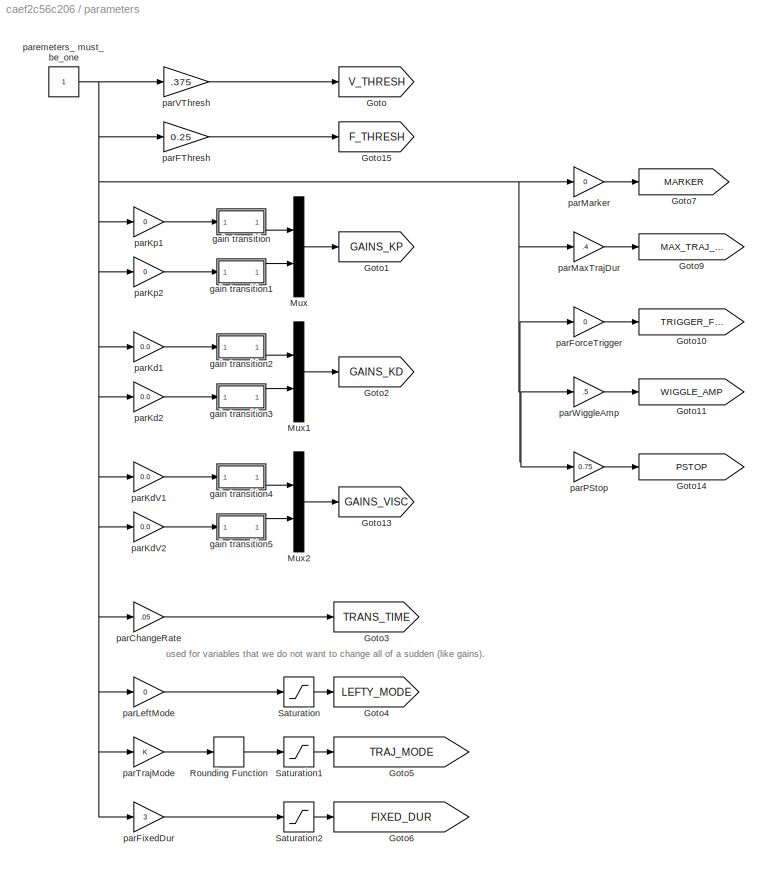
BLOCK [SubSystem] parameters
  FunctionWithSeparateData = off
  MaskHideContents = off
  MinAlgLoopOccurrences = off
  Opaque = off
  Ports = []
  PropExecContextOutsideSubsystem = off
  RTWSystemCode = Auto
  RequestExecContextInheritance = off
BLOCK [Goto] parameters/Goto
  GotoTag = V_THRESH
  TagVisibility = global
BLOCK [Goto] parameters/Goto1
  GotoTag = GAINS_KP
  TagVisibility = global
BLOCK [Goto] parameters/Goto10
  GotoTag = TRIGGER_FORCE
  TagVisibility = global
BLOCK [Goto] parameters/Goto11
  GotoTag = WIGGLE_AMP
  TagVisibility = global
BLOCK [Goto] parameters/Goto13
  GotoTag = GAINS_VISC
  TagVisibility = global
BLOCK [Goto] parameters/Goto14
  GotoTag = PSTOP
  TagVisibility = global
BLOCK [Goto] parameters/Goto15
  GotoTag = F_THRESH
  TagVisibility = global
BLOCK [Goto] parameters/Goto2
  GotoTag = GAINS_KD
  TagVisibility = global
BLOCK [Goto] parameters/Goto3
  GotoTag = TRANS_TIME
  TagVisibility = global
BLOCK [Goto] parameters/Goto4
  GotoTag = LEFTY_MODE
  TagVisibility = global
BLOCK [Goto] parameters/Goto5
  GotoTag = TRAJ_MODE
  TagVisibility = global
BLOCK [Goto] parameters/Goto6
  GotoTag = FIXED_DUR
  TagVisibility = global
BLOCK [Goto] parameters/Goto7
  GotoTag = MARKER
  TagVisibility = global
BLOCK [Goto] parameters/Goto9
  GotoTag = MAX_TRAJ_DUR
  TagVisibility = global
BLOCK [Mux] parameters/Mux
  DisplayOption = bar
  Inputs = 2
  Ports = [2, 1]
BLOCK [Mux] parameters/Mux1
  DisplayOption = bar
  Inputs = 2
  Ports = [2, 1]
BLOCK [Mux] parameters/Mux2
  DisplayOption = bar
  Inputs = 2
  Ports = [2, 1]
BLOCK [Rounding] parameters/Rounding Function
  Operator = round
BLOCK [Saturate] parameters/Saturation
  InputPortMap = u0
  LowerLimit = 0
  Ports = [1, 1]
  UpperLimit = 1
BLOCK [Saturate] parameters/Saturation1
  InputPortMap = u0
  LowerLimit = 1
  Ports = [1, 1]
  UpperLimit = 4
BLOCK [Saturate] parameters/Saturation2
  InputPortMap = u0
  LowerLimit = .25
  Ports = [1, 1]
  UpperLimit = 10
BLOCK [SubSystem] parameters/gain transition
  FunctionWithSeparateData = off
  MaskHideContents = off
  MinAlgLoopOccurrences = off
  Opaque = off
  Ports = [1, 1]
  PropExecContextOutsideSubsystem = off
  RTWSystemCode = Auto
  RequestExecContextInheritance = off
BLOCK [From] parameters/gain transition/From
  GotoTag = TRANS_TIME
  TagVisibility = global
BLOCK [Memory] parameters/gain transition/Memory
  X0 = zeros(1,4)
BLOCK [SubSystem] parameters/gain transition/gainramp
  ErrorFcn = Stateflow.Translate.translate
  FunctionWithSeparateData = off
  MaskHideContents = off
  MinAlgLoopOccurrences = off
  Opaque = off
  PermitHierarchicalResolution = ExplicitOnly
  Ports = [3, 2]
  PropExecContextOutsideSubsystem = off
  RTWSystemCode = Auto
  RequestExecContextInheritance = off
  SFBlockType = MATLAB Function
  TreatAsAtomicUnit = on
BLOCK [Demux] parameters/gain transition/gainramp/ Demux 
  Outputs = 1
  Ports = [1, 1]
BLOCK [S-Function] parameters/gain transition/gainramp/ SFunction 
  EnableBusSupport = on
  FunctionName = sf_sfun
  PortCounts = [3 3]
  Ports = [3, 3]
  Tag = Stateflow S-Function FingerEAERCtrl 14
BLOCK [Terminator] parameters/gain transition/gainramp/ Terminator 
BLOCK [Inport] parameters/gain transition/gainramp/state
  IconDisplay = Port number
  Port = 3
BLOCK [Outport] parameters/gain transition/gainramp/state1
  IconDisplay = Port number
  Port = 2
BLOCK [Inport] parameters/gain transition/gainramp/tr
  IconDisplay = Port number
BLOCK [Outport] parameters/gain transition/gainramp/val
  IconDisplay = Port number
BLOCK [Inport] parameters/gain transition/gainramp/valD
  IconDisplay = Port number
  Port = 2
BLOCK [Inport] parameters/gain transition/targ
  IconDisplay = Port number
BLOCK [Outport] parameters/gain transition/val
  IconDisplay = Port number
BLOCK [SubSystem] parameters/gain transition1
  FunctionWithSeparateData = off
  MaskHideContents = off
  MinAlgLoopOccurrences = off
  Opaque = off
  Ports = [1, 1]
  PropExecContextOutsideSubsystem = off
  RTWSystemCode = Auto
  RequestExecContextInheritance = off
BLOCK [From] parameters/gain transition1/From
  GotoTag = TRANS_TIME
  TagVisibility = global
BLOCK [Memory] parameters/gain transition1/Memory
  X0 = zeros(1,4)
BLOCK [SubSystem] parameters/gain transition1/gainramp
  ErrorFcn = Stateflow.Translate.translate
  FunctionWithSeparateData = off
  MaskHideContents = off
  MinAlgLoopOccurrences = off
  Opaque = off
  PermitHierarchicalResolution = ExplicitOnly
  Ports = [3, 2]
  PropExecContextOutsideSubsystem = off
  RTWSystemCode = Auto
  RequestExecContextInheritance = off
  SFBlockType = MATLAB Function
  TreatAsAtomicUnit = on
BLOCK [Demux] parameters/gain transition1/gainramp/ Demux 
  Outputs = 1
  Ports = [1, 1]
BLOCK [S-Function] parameters/gain transition1/gainramp/ SFunction 
  EnableBusSupport = on
  FunctionName = sf_sfun
  PortCounts = [3 3]
  Ports = [3, 3]
  Tag = Stateflow S-Function FingerEAERCtrl 15
BLOCK [Terminator] parameters/gain transition1/gainramp/ Terminator 
BLOCK [Inport] parameters/gain transition1/gainramp/state
  IconDisplay = Port number
  Port = 3
BLOCK [Outport] parameters/gain transition1/gainramp/state1
  IconDisplay = Port number
  Port = 2
BLOCK [Inport] parameters/gain transition1/gainramp/tr
  IconDisplay = Port number
BLOCK [Outport] parameters/gain transition1/gainramp/val
  IconDisplay = Port number
BLOCK [Inport] parameters/gain transition1/gainramp/valD
  IconDisplay = Port number
  Port = 2
BLOCK [Inport] parameters/gain transition1/targ
  IconDisplay = Port number
BLOCK [Outport] parameters/gain transition1/val
  IconDisplay = Port number
BLOCK [SubSystem] parameters/gain transition2
  FunctionWithSeparateData = off
  MaskHideContents = off
  MinAlgLoopOccurrences = off
  Opaque = off
  Ports = [1, 1]
  PropExecContextOutsideSubsystem = off
  RTWSystemCode = Auto
  RequestExecContextInheritance = off
BLOCK [From] parameters/gain transition2/From
  GotoTag = TRANS_TIME
  TagVisibility = global
BLOCK [Memory] parameters/gain transition2/Memory
  X0 = zeros(1,4)
BLOCK [SubSystem] parameters/gain transition2/gainramp
  ErrorFcn = Stateflow.Translate.translate
  FunctionWithSeparateData = off
  MaskHideContents = off
  MinAlgLoopOccurrences = off
  Opaque = off
  PermitHierarchicalResolution = ExplicitOnly
  Ports = [3, 2]
  PropExecContextOutsideSubsystem = off
  RTWSystemCode = Auto
  RequestExecContextInheritance = off
  SFBlockType = MATLAB Function
  TreatAsAtomicUnit = on
BLOCK [Demux] parameters/gain transition2/gainramp/ Demux 
  Outputs = 1
  Ports = [1, 1]
BLOCK [S-Function] parameters/gain transition2/gainramp/ SFunction 
  EnableBusSupport = on
  FunctionName = sf_sfun
  PortCounts = [3 3]
  Ports = [3, 3]
  Tag = Stateflow S-Function FingerEAERCtrl 16
BLOCK [Terminator] parameters/gain transition2/gainramp/ Terminator 
BLOCK [Inport] parameters/gain transition2/gainramp/state
  IconDisplay = Port number
  Port = 3
BLOCK [Outport] parameters/gain transition2/gainramp/state1
  IconDisplay = Port number
  Port = 2
BLOCK [Inport] parameters/gain transition2/gainramp/tr
  IconDisplay = Port number
BLOCK [Outport] parameters/gain transition2/gainramp/val
  IconDisplay = Port number
BLOCK [Inport] parameters/gain transition2/gainramp/valD
  IconDisplay = Port number
  Port = 2
BLOCK [Inport] parameters/gain transition2/targ
  IconDisplay = Port number
BLOCK [Outport] parameters/gain transition2/val
  IconDisplay = Port number
BLOCK [SubSystem] parameters/gain transition3
  FunctionWithSeparateData = off
  MaskHideContents = off
  MinAlgLoopOccurrences = off
  Opaque = off
  Ports = [1, 1]
  PropExecContextOutsideSubsystem = off
  RTWSystemCode = Auto
  RequestExecContextInheritance = off
BLOCK [From] parameters/gain transition3/From
  GotoTag = TRANS_TIME
  TagVisibility = global
BLOCK [Memory] parameters/gain transition3/Memory
  X0 = zeros(1,4)
BLOCK [SubSystem] parameters/gain transition3/gainramp
  ErrorFcn = Stateflow.Translate.translate
  FunctionWithSeparateData = off
  MaskHideContents = off
  MinAlgLoopOccurrences = off
  Opaque = off
  PermitHierarchicalResolution = ExplicitOnly
  Ports = [3, 2]
  PropExecContextOutsideSubsystem = off
  RTWSystemCode = Auto
  RequestExecContextInheritance = off
  SFBlockType = MATLAB Function
  TreatAsAtomicUnit = on
BLOCK [Demux] parameters/gain transition3/gainramp/ Demux 
  Outputs = 1
  Ports = [1, 1]
BLOCK [S-Function] parameters/gain transition3/gainramp/ SFunction 
  EnableBusSupport = on
  FunctionName = sf_sfun
  PortCounts = [3 3]
  Ports = [3, 3]
  Tag = Stateflow S-Function FingerEAERCtrl 17
BLOCK [Terminator] parameters/gain transition3/gainramp/ Terminator 
BLOCK [Inport] parameters/gain transition3/gainramp/state
  IconDisplay = Port number
  Port = 3
BLOCK [Outport] parameters/gain transition3/gainramp/state1
  IconDisplay = Port number
  Port = 2
BLOCK [Inport] parameters/gain transition3/gainramp/tr
  IconDisplay = Port number
BLOCK [Outport] parameters/gain transition3/gainramp/val
  IconDisplay = Port number
BLOCK [Inport] parameters/gain transition3/gainramp/valD
  IconDisplay = Port number
  Port = 2
BLOCK [Inport] parameters/gain transition3/targ
  IconDisplay = Port number
BLOCK [Outport] parameters/gain transition3/val
  IconDisplay = Port number
BLOCK [SubSystem] parameters/gain transition4
  FunctionWithSeparateData = off
  MaskHideContents = off
  MinAlgLoopOccurrences = off
  Opaque = off
  Ports = [1, 1]
  PropExecContextOutsideSubsystem = off
  RTWSystemCode = Auto
  RequestExecContextInheritance = off
BLOCK [From] parameters/gain transition4/From
  GotoTag = TRANS_TIME
  TagVisibility = global
BLOCK [Memory] parameters/gain transition4/Memory
  X0 = zeros(1,4)
BLOCK [SubSystem] parameters/gain transition4/gainramp
  ErrorFcn = Stateflow.Translate.translate
  FunctionWithSeparateData = off
  MaskHideContents = off
  MinAlgLoopOccurrences = off
  Opaque = off
  PermitHierarchicalResolution = ExplicitOnly
  Ports = [3, 2]
  PropExecContextOutsideSubsystem = off
  RTWSystemCode = Auto
  RequestExecContextInheritance = off
  SFBlockType = MATLAB Function
  TreatAsAtomicUnit = on
BLOCK [Demux] parameters/gain transition4/gainramp/ Demux 
  Outputs = 1
  Ports = [1, 1]
BLOCK [S-Function] parameters/gain transition4/gainramp/ SFunction 
  EnableBusSupport = on
  FunctionName = sf_sfun
  PortCounts = [3 3]
  Ports = [3, 3]
  Tag = Stateflow S-Function FingerEAERCtrl 43
BLOCK [Terminator] parameters/gain transition4/gainramp/ Terminator 
BLOCK [Inport] parameters/gain transition4/gainramp/state
  IconDisplay = Port number
  Port = 3
BLOCK [Outport] parameters/gain transition4/gainramp/state1
  IconDisplay = Port number
  Port = 2
BLOCK [Inport] parameters/gain transition4/gainramp/tr
  IconDisplay = Port number
BLOCK [Outport] parameters/gain transition4/gainramp/val
  IconDisplay = Port number
BLOCK [Inport] parameters/gain transition4/gainramp/valD
  IconDisplay = Port number
  Port = 2
BLOCK [Inport] parameters/gain transition4/targ
  IconDisplay = Port number
BLOCK [Outport] parameters/gain transition4/val
  IconDisplay = Port number
BLOCK [SubSystem] parameters/gain transition5
  FunctionWithSeparateData = off
  MaskHideContents = off
  MinAlgLoopOccurrences = off
  Opaque = off
  Ports = [1, 1]
  PropExecContextOutsideSubsystem = off
  RTWSystemCode = Auto
  RequestExecContextInheritance = off
BLOCK [From] parameters/gain transition5/From
  GotoTag = TRANS_TIME
  TagVisibility = global
BLOCK [Memory] parameters/gain transition5/Memory
  X0 = zeros(1,4)
BLOCK [SubSystem] parameters/gain transition5/gainramp
  ErrorFcn = Stateflow.Translate.translate
  FunctionWithSeparateData = off
  MaskHideContents = off
  MinAlgLoopOccurrences = off
  Opaque = off
  PermitHierarchicalResolution = ExplicitOnly
  Ports = [3, 2]
  PropExecContextOutsideSubsystem = off
  RTWSystemCode = Auto
  RequestExecContextInheritance = off
  SFBlockType = MATLAB Function
  TreatAsAtomicUnit = on
BLOCK [Demux] parameters/gain transition5/gainramp/ Demux 
  Outputs = 1
  Ports = [1, 1]
BLOCK [S-Function] parameters/gain transition5/gainramp/ SFunction 
  EnableBusSupport = on
  FunctionName = sf_sfun
  PortCounts = [3 3]
  Ports = [3, 3]
  Tag = Stateflow S-Function FingerEAERCtrl 44
BLOCK [Terminator] parameters/gain transition5/gainramp/ Terminator 
BLOCK [Inport] parameters/gain transition5/gainramp/state
  IconDisplay = Port number
  Port = 3
BLOCK [Outport] parameters/gain transition5/gainramp/state1
  IconDisplay = Port number
  Port = 2
BLOCK [Inport] parameters/gain transition5/gainramp/tr
  IconDisplay = Port number
BLOCK [Outport] parameters/gain transition5/gainramp/val
  IconDisplay = Port number
BLOCK [Inport] parameters/gain transition5/gainramp/valD
  IconDisplay = Port number
  Port = 2
BLOCK [Inport] parameters/gain transition5/targ
  IconDisplay = Port number
BLOCK [Outport] parameters/gain transition5/val
  IconDisplay = Port number
BLOCK [Gain] parameters/parChangeRate
  Gain = .05
  OutDataTypeStr = Inherit: Inherit via internal rule
  ParamDataTypeStr = Inherit: Inherit via internal rule
  SaturateOnIntegerOverflow = off
BLOCK [Gain] parameters/parFThresh
  Gain = 0.25
  OutDataTypeStr = Inherit: Inherit via internal rule
  ParamDataTypeStr = Inherit: Inherit via internal rule
  SaturateOnIntegerOverflow = off
BLOCK [Gain] parameters/parFixedDur
  Gain = 3
  OutDataTypeStr = Inherit: Inherit via internal rule
  ParamDataTypeStr = Inherit: Inherit via internal rule
  SaturateOnIntegerOverflow = off
BLOCK [Gain] parameters/parForceTrigger
  Gain = 0
  OutDataTypeStr = Inherit: Inherit via internal rule
  ParamDataTypeStr = Inherit: Inherit via internal rule
  SaturateOnIntegerOverflow = off
BLOCK [Gain] parameters/parKd1
  Gain = 0.0
  OutDataTypeStr = Inherit: Inherit via internal rule
  ParamDataTypeStr = Inherit: Inherit via internal rule
  SaturateOnIntegerOverflow = off
BLOCK [Gain] parameters/parKd2
  Gain = 0.0
  OutDataTypeStr = Inherit: Inherit via internal rule
  ParamDataTypeStr = Inherit: Inherit via internal rule
  SaturateOnIntegerOverflow = off
BLOCK [Gain] parameters/parKdV1
  Gain = 0.0
  OutDataTypeStr = Inherit: Inherit via internal rule
  ParamDataTypeStr = Inherit: Inherit via internal rule
  SaturateOnIntegerOverflow = off
BLOCK [Gain] parameters/parKdV2
  Gain = 0.0
  OutDataTypeStr = Inherit: Inherit via internal rule
  ParamDataTypeStr = Inherit: Inherit via internal rule
  SaturateOnIntegerOverflow = off
BLOCK [Gain] parameters/parKp1
  Gain = 0
  OutDataTypeStr = Inherit: Inherit via internal rule
  ParamDataTypeStr = Inherit: Inherit via internal rule
  SaturateOnIntegerOverflow = off
BLOCK [Gain] parameters/parKp2
  Gain = 0
  OutDataTypeStr = Inherit: Inherit via internal rule
  ParamDataTypeStr = Inherit: Inherit via internal rule
  SaturateOnIntegerOverflow = off
BLOCK [Gain] parameters/parLeftMode
  Gain = 0
  OutDataTypeStr = Inherit: Inherit via internal rule
  ParamDataTypeStr = Inherit: Inherit via internal rule
  SaturateOnIntegerOverflow = off
BLOCK [Gain] parameters/parMarker
  Gain = 0
  OutDataTypeStr = Inherit: Inherit via internal rule
  ParamDataTypeStr = Inherit: Inherit via internal rule
  SaturateOnIntegerOverflow = off
BLOCK [Gain] parameters/parMaxTrajDur
  Gain = .4
  OutDataTypeStr = Inherit: Inherit via internal rule
  ParamDataTypeStr = Inherit: Inherit via internal rule
  SaturateOnIntegerOverflow = off
BLOCK [Gain] parameters/parPStop
  Gain = 0.75
  OutDataTypeStr = Inherit: Inherit via internal rule
  ParamDataTypeStr = Inherit: Inherit via internal rule
  SaturateOnIntegerOverflow = off
BLOCK [Gain] parameters/parTrajMode
  OutDataTypeStr = Inherit: Inherit via internal rule
  ParamDataTypeStr = Inherit: Inherit via internal rule
  SaturateOnIntegerOverflow = off
BLOCK [Gain] parameters/parVThresh
  Gain = .375
  OutDataTypeStr = Inherit: Inherit via internal rule
  ParamDataTypeStr = Inherit: Inherit via internal rule
  SaturateOnIntegerOverflow = off
BLOCK [Gain] parameters/parWiggleAmp
  Gain = .5
  OutDataTypeStr = Inherit: Inherit via internal rule
  ParamDataTypeStr = Inherit: Inherit via internal rule
  SaturateOnIntegerOverflow = off
BLOCK [Constant] parameters/paremeters_ must_be_one
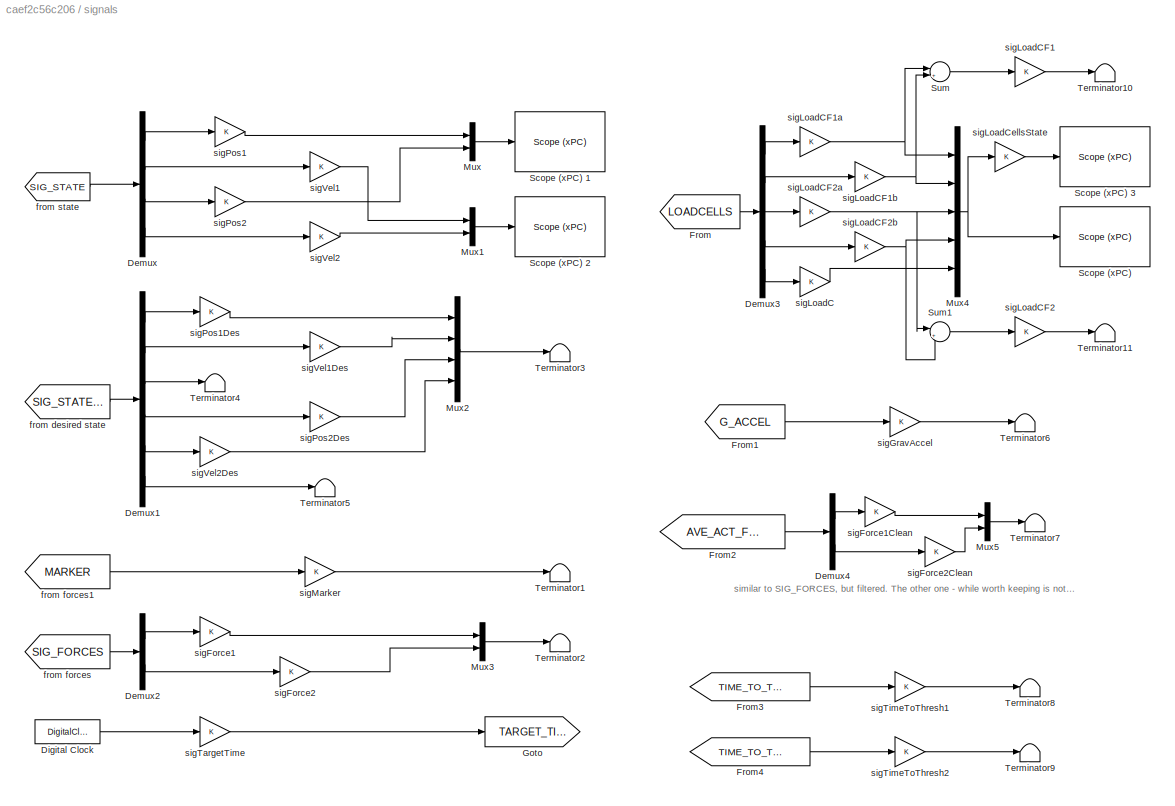
BLOCK [SubSystem] signals
  FunctionWithSeparateData = off
  MaskHideContents = off
  MinAlgLoopOccurrences = off
  Opaque = off
  Ports = []
  PropExecContextOutsideSubsystem = off
  RTWSystemCode = Auto
  RequestExecContextInheritance = off
BLOCK [Demux] signals/Demux
  DisplayOption = bar
  Ports = [1, 4]
BLOCK [Demux] signals/Demux1
  DisplayOption = bar
  Outputs = 6
  Ports = [1, 6]
BLOCK [Demux] signals/Demux2
  DisplayOption = bar
  Outputs = 2
  Ports = [1, 2]
BLOCK [Demux] signals/Demux3
  DisplayOption = bar
  Outputs = 5
  Ports = [1, 5]
BLOCK [Demux] signals/Demux4
  DisplayOption = bar
  Outputs = 2
  Ports = [1, 2]
BLOCK [DigitalClock] signals/Digital Clock
  SampleTime = .001
BLOCK [From] signals/From
  GotoTag = LOADCELLS
  TagVisibility = global
BLOCK [From] signals/From1
  GotoTag = G_ACCEL
  TagVisibility = global
BLOCK [From] signals/From2
  GotoTag = AVE_ACT_FORCE
  TagVisibility = global
BLOCK [From] signals/From3
  GotoTag = TIME_TO_THRESH_1
  TagVisibility = global
BLOCK [From] signals/From4
  GotoTag = TIME_TO_THRESH_2
  TagVisibility = global
BLOCK [Goto] signals/Goto
  GotoTag = TARGET_TIME
  TagVisibility = global
BLOCK [Mux] signals/Mux
  DisplayOption = bar
  Inputs = 2
  Ports = [2, 1]
BLOCK [Mux] signals/Mux1
  DisplayOption = bar
  Inputs = 2
  Ports = [2, 1]
BLOCK [Mux] signals/Mux2
  DisplayOption = bar
  Ports = [4, 1]
BLOCK [Mux] signals/Mux3
  DisplayOption = bar
  Inputs = 2
  Ports = [2, 1]
BLOCK [Mux] signals/Mux4
  DisplayOption = bar
  Inputs = 5
  Ports = [5, 1]
BLOCK [Mux] signals/Mux5
  DisplayOption = bar
  Inputs = 2
  Ports = [2, 1]
BLOCK [Reference] signals/Scope (xPC)   REF=xpclib/Misc./Scope (xPC) 
  Ports = [1]
  SourceBlock = xpclib/Misc./Scope (xPC)
  SourceType = xpcscopeblock
  autorestart = off
  autostart = on
  dynamicfilemode = off
  filename = data.dat
  formatstr = '%15.6f'
  grid = on
  interleave = 1
  maxwritefilesize = 512*1024^2
  mode = Lazy
  noprepostsamples = 0
  nosamples = 500
  scopeno = 5
  scopetype = Target
  triggerlevel = 0.0
  triggermode = FreeRun
  triggersample = 0
  triggerscope = 1
  triggersignal = 1
  triggerslope = Either
  viewmode = Graphical redraw
  writesize = 512
  ylimits = [-3,3]
BLOCK [Reference] signals/Scope (xPC) 1  REF=xpclib/Misc./Scope (xPC) 
  Ports = [1]
  SourceBlock = xpclib/Misc./Scope (xPC)
  SourceType = xpcscopeblock
  autorestart = off
  autostart = on
  dynamicfilemode = off
  filename = data.dat
  formatstr = '%15.6f'
  grid = on
  interleave = 1
  maxwritefilesize = 512*1024^2
  mode = Lazy
  noprepostsamples = 0
  nosamples = 500
  scopeno = 1
  scopetype = Target
  triggerlevel = 0.0
  triggermode = FreeRun
  triggersample = 0
  triggerscope = 1
  triggersignal = 1
  triggerslope = Either
  viewmode = Graphical redraw
  writesize = 512
  ylimits = [0,1.1]
BLOCK [Reference] signals/Scope (xPC) 2  REF=xpclib/Misc./Scope (xPC) 
  Ports = [1]
  SourceBlock = xpclib/Misc./Scope (xPC)
  SourceType = xpcscopeblock
  autorestart = off
  autostart = on
  dynamicfilemode = off
  filename = data.dat
  formatstr = '%15.6f'
  grid = on
  interleave = 1
  maxwritefilesize = 512*1024^2
  mode = Lazy
  noprepostsamples = 0
  nosamples = 500
  scopeno = 2
  scopetype = Target
  triggerlevel = 0.0
  triggermode = FreeRun
  triggersample = 0
  triggerscope = 1
  triggersignal = 1
  triggerslope = Either
  viewmode = Graphical redraw
  writesize = 512
  ylimits = [-10,10]
BLOCK [Reference] signals/Scope (xPC) 3  REF=xpclib/Misc./Scope (xPC) 
  Ports = [1]
  SourceBlock = xpclib/Misc./Scope (xPC)
  SourceType = xpcscopeblock
  autorestart = off
  autostart = on
  dynamicfilemode = off
  filename = fLogData.dat
  formatstr = '%15.6f'
  grid = on
  interleave = 1
  maxwritefilesize = 512*1024^2
  mode = Lazy
  noprepostsamples = 0
  nosamples = 5000
  scopeno = 4
  scopetype = File
  triggerlevel = 0.0
  triggermode = FreeRun
  triggersample = 0
  triggerscope = 1
  triggersignal = 1
  triggerslope = Either
  viewmode = Graphical redraw
  writesize = 512
  ylimits = [0,0]
BLOCK [Sum] signals/Sum
  IconShape = round
  InputSameDT = off
  Inputs = |++
  OutDataTypeStr = Inherit: Inherit via internal rule
  Ports = [2, 1]
  SaturateOnIntegerOverflow = off
BLOCK [Sum] signals/Sum1
  IconShape = round
  InputSameDT = off
  Inputs = |++
  OutDataTypeStr = Inherit: Inherit via internal rule
  Ports = [2, 1]
  SaturateOnIntegerOverflow = off
BLOCK [Terminator] signals/Terminator1
BLOCK [Terminator] signals/Terminator10
BLOCK [Terminator] signals/Terminator11
BLOCK [Terminator] signals/Terminator2
BLOCK [Terminator] signals/Terminator3
BLOCK [Terminator] signals/Terminator4
BLOCK [Terminator] signals/Terminator5
BLOCK [Terminator] signals/Terminator6
BLOCK [Terminator] signals/Terminator7
BLOCK [Terminator] signals/Terminator8
BLOCK [Terminator] signals/Terminator9
BLOCK [From] signals/from desired state
  GotoTag = SIG_STATEDES
  TagVisibility = global
BLOCK [From] signals/from forces
  GotoTag = SIG_FORCES
  TagVisibility = global
BLOCK [From] signals/from forces1
  GotoTag = MARKER
  TagVisibility = global
BLOCK [From] signals/from state
  GotoTag = SIG_STATE
  TagVisibility = global
BLOCK [Gain] signals/sigForce1
  OutDataTypeStr = Inherit: Inherit via internal rule
  ParamDataTypeStr = Inherit: Inherit via internal rule
  SaturateOnIntegerOverflow = off
BLOCK [Gain] signals/sigForce1Clean
  OutDataTypeStr = Inherit: Inherit via internal rule
  ParamDataTypeStr = Inherit: Inherit via internal rule
  SaturateOnIntegerOverflow = off
BLOCK [Gain] signals/sigForce2
  OutDataTypeStr = Inherit: Inherit via internal rule
  ParamDataTypeStr = Inherit: Inherit via internal rule
  SaturateOnIntegerOverflow = off
BLOCK [Gain] signals/sigForce2Clean
  OutDataTypeStr = Inherit: Inherit via internal rule
  ParamDataTypeStr = Inherit: Inherit via internal rule
  SaturateOnIntegerOverflow = off
BLOCK [Gain] signals/sigGravAccel
  OutDataTypeStr = Inherit: Inherit via internal rule
  ParamDataTypeStr = Inherit: Inherit via internal rule
  SaturateOnIntegerOverflow = off
BLOCK [Gain] signals/sigLoadC
  OutDataTypeStr = Inherit: Inherit via internal rule
  ParamDataTypeStr = Inherit: Inherit via internal rule
  SaturateOnIntegerOverflow = off
BLOCK [Gain] signals/sigLoadCF1
  OutDataTypeStr = Inherit: Inherit via internal rule
  ParamDataTypeStr = Inherit: Inherit via internal rule
  SaturateOnIntegerOverflow = off
BLOCK [Gain] signals/sigLoadCF1a
  OutDataTypeStr = Inherit: Inherit via internal rule
  ParamDataTypeStr = Inherit: Inherit via internal rule
  SaturateOnIntegerOverflow = off
BLOCK [Gain] signals/sigLoadCF1b
  OutDataTypeStr = Inherit: Inherit via internal rule
  ParamDataTypeStr = Inherit: Inherit via internal rule
  SaturateOnIntegerOverflow = off
BLOCK [Gain] signals/sigLoadCF2
  OutDataTypeStr = Inherit: Inherit via internal rule
  ParamDataTypeStr = Inherit: Inherit via internal rule
  SaturateOnIntegerOverflow = off
BLOCK [Gain] signals/sigLoadCF2a
  OutDataTypeStr = Inherit: Inherit via internal rule
  ParamDataTypeStr = Inherit: Inherit via internal rule
  SaturateOnIntegerOverflow = off
BLOCK [Gain] signals/sigLoadCF2b
  OutDataTypeStr = Inherit: Inherit via internal rule
  ParamDataTypeStr = Inherit: Inherit via internal rule
  SaturateOnIntegerOverflow = off
BLOCK [Gain] signals/sigLoadCellsState
  OutDataTypeStr = Inherit: Inherit via internal rule
  ParamDataTypeStr = Inherit: Inherit via internal rule
  SaturateOnIntegerOverflow = off
BLOCK [Gain] signals/sigMarker
  OutDataTypeStr = Inherit: Inherit via internal rule
  ParamDataTypeStr = Inherit: Inherit via internal rule
  SaturateOnIntegerOverflow = off
BLOCK [Gain] signals/sigPos1
  OutDataTypeStr = Inherit: Inherit via internal rule
  ParamDataTypeStr = Inherit: Inherit via internal rule
  SaturateOnIntegerOverflow = off
BLOCK [Gain] signals/sigPos1Des
  OutDataTypeStr = Inherit: Inherit via internal rule
  ParamDataTypeStr = Inherit: Inherit via internal rule
  SaturateOnIntegerOverflow = off
BLOCK [Gain] signals/sigPos2
  OutDataTypeStr = Inherit: Inherit via internal rule
  ParamDataTypeStr = Inherit: Inherit via internal rule
  SaturateOnIntegerOverflow = off
BLOCK [Gain] signals/sigPos2Des
  OutDataTypeStr = Inherit: Inherit via internal rule
  ParamDataTypeStr = Inherit: Inherit via internal rule
  SaturateOnIntegerOverflow = off
BLOCK [Gain] signals/sigTargetTime
  OutDataTypeStr = Inherit: Inherit via internal rule
  ParamDataTypeStr = Inherit: Inherit via internal rule
  SaturateOnIntegerOverflow = off
BLOCK [Gain] signals/sigTimeToThresh1
  OutDataTypeStr = Inherit: Inherit via internal rule
  ParamDataTypeStr = Inherit: Inherit via internal rule
  SaturateOnIntegerOverflow = off
BLOCK [Gain] signals/sigTimeToThresh2
  OutDataTypeStr = Inherit: Inherit via internal rule
  ParamDataTypeStr = Inherit: Inherit via internal rule
  SaturateOnIntegerOverflow = off
BLOCK [Gain] signals/sigVel1
  OutDataTypeStr = Inherit: Inherit via internal rule
  ParamDataTypeStr = Inherit: Inherit via internal rule
  SaturateOnIntegerOverflow = off
BLOCK [Gain] signals/sigVel1Des
  OutDataTypeStr = Inherit: Inherit via internal rule
  ParamDataTypeStr = Inherit: Inherit via internal rule
  SaturateOnIntegerOverflow = off
BLOCK [Gain] signals/sigVel2
  OutDataTypeStr = Inherit: Inherit via internal rule
  ParamDataTypeStr = Inherit: Inherit via internal rule
  SaturateOnIntegerOverflow = off
BLOCK [Gain] signals/sigVel2Des
  OutDataTypeStr = Inherit: Inherit via internal rule
  ParamDataTypeStr = Inherit: Inherit via internal rule
  SaturateOnIntegerOverflow = off
BLOCK [SubSystem] trajectory calculator
  FunctionWithSeparateData = off
  MaskHideContents = off
  MinAlgLoopOccurrences = off
  Opaque = off
  Ports = [3, 1]
  PropExecContextOutsideSubsystem = off
  RTWSystemCode = Auto
  RequestExecContextInheritance = off
BLOCK [Goto] trajectory calculator/Goto
  GotoTag = SIG_STATEDES
  TagVisibility = global
BLOCK [MultiPortSwitch] trajectory calculator/Multiport Switch
  InputSameDT = off
  Inputs = 4
  Ports = [5, 1]
  SaturateOnIntegerOverflow = off
BLOCK [SubSystem] trajectory calculator/mode 1: sub-init
  FunctionWithSeparateData = off
  MaskHideContents = off
  MinAlgLoopOccurrences = off
  Opaque = off
  Ports = [3, 1]
  PropExecContextOutsideSubsystem = off
  RTWSystemCode = Auto
  RequestExecContextInheritance = off
BLOCK [Demux] trajectory calculator/mode 1: sub-init/Demux
  DisplayOption = bar
  Outputs = 2
  Ports = [1, 2]
BLOCK [Demux] trajectory calculator/mode 1: sub-init/Demux1
  DisplayOption = bar
  Outputs = 2
  Ports = [1, 2]
BLOCK [Demux] trajectory calculator/mode 1: sub-init/Demux2
  DisplayOption = bar
  Ports = [1, 4]
BLOCK [From] trajectory calculator/mode 1: sub-init/From
  GotoTag = AVE_ACT_FORCE
  TagVisibility = global
BLOCK [Mux] trajectory calculator/mode 1: sub-init/Mux
  DisplayOption = bar
  Inputs = 2
  Ports = [2, 1]
BLOCK [SubSystem] trajectory calculator/mode 1: sub-init/get human force
  FunctionWithSeparateData = off
  MaskHideContents = off
  MinAlgLoopOccurrences = off
  Opaque = off
  Ports = [1, 2]
  PropExecContextOutsideSubsystem = off
  RTWSystemCode = Auto
  RequestExecContextInheritance = off
BLOCK [Constant] trajectory calculator/mode 1: sub-init/get human force/Constant
  Value = -1
BLOCK [Demux] trajectory calculator/mode 1: sub-init/get human force/Demux3
  DisplayOption = bar
  Outputs = 2
  Ports = [1, 2]
BLOCK [Product] trajectory calculator/mode 1: sub-init/get human force/Product
  InputSameDT = off
  OutDataTypeStr = Inherit: Inherit via internal rule
  Ports = [2, 1]
  SaturateOnIntegerOverflow = off
BLOCK [Product] trajectory calculator/mode 1: sub-init/get human force/Product1
  InputSameDT = off
  OutDataTypeStr = Inherit: Inherit via internal rule
  Ports = [2, 1]
  SaturateOnIntegerOverflow = off
BLOCK [Inport] trajectory calculator/mode 1: sub-init/get human force/forces
  IconDisplay = Port number
BLOCK [Outport] trajectory calculator/mode 1: sub-init/get human force/h_force1
  IconDisplay = Port number
BLOCK [Outport] trajectory calculator/mode 1: sub-init/get human force/h_force2
  IconDisplay = Port number
  Port = 2
BLOCK [Inport] trajectory calculator/mode 1: sub-init/pDes
  IconDisplay = Port number
BLOCK [SubSystem] trajectory calculator/mode 1: sub-init/rt minimum jerk trajectory calc
  FunctionWithSeparateData = off
  MaskHideContents = off
  MinAlgLoopOccurrences = off
  Opaque = off
  Ports = [5, 1]
  PropExecContextOutsideSubsystem = off
  RTWSystemCode = Auto
  RequestExecContextInheritance = off
BLOCK [From] trajectory calculator/mode 1: sub-init/rt minimum jerk trajectory calc/From
  GotoTag = V_THRESH
  TagVisibility = global
BLOCK [From] trajectory calculator/mode 1: sub-init/rt minimum jerk trajectory calc/From1
  GotoTag = TARGET_TIME
  TagVisibility = global
BLOCK [From] trajectory calculator/mode 1: sub-init/rt minimum jerk trajectory calc/From2
  GotoTag = MAX_TRAJ_DUR
  TagVisibility = global
BLOCK [From] trajectory calculator/mode 1: sub-init/rt minimum jerk trajectory calc/From3
  GotoTag = F_THRESH
  TagVisibility = global
BLOCK [Logic] trajectory calculator/mode 1: sub-init/rt minimum jerk trajectory calc/Logical Operator
  AllPortsSameDT = off
  Operator = OR
  OutDataTypeStr = boolean
  Ports = [2, 1]
BLOCK [SubSystem] trajectory calculator/mode 1: sub-init/rt minimum jerk trajectory calc/MATLAB Function
  ErrorFcn = Stateflow.Translate.translate
  FunctionWithSeparateData = off
  MaskHideContents = off
  MinAlgLoopOccurrences = off
  Opaque = off
  PermitHierarchicalResolution = ExplicitOnly
  Ports = [4, 1]
  PropExecContextOutsideSubsystem = off
  RTWSystemCode = Auto
  RequestExecContextInheritance = off
  SFBlockType = MATLAB Function
  TreatAsAtomicUnit = on
BLOCK [Demux] trajectory calculator/mode 1: sub-init/rt minimum jerk trajectory calc/MATLAB Function/ Demux 
  Outputs = 1
  Ports = [1, 1]
BLOCK [S-Function] trajectory calculator/mode 1: sub-init/rt minimum jerk trajectory calc/MATLAB Function/ SFunction 
  EnableBusSupport = on
  FunctionName = sf_sfun
  PortCounts = [4 2]
  Ports = [4, 2]
  Tag = Stateflow S-Function FingerEAERCtrl 4
BLOCK [Terminator] trajectory calculator/mode 1: sub-init/rt minimum jerk trajectory calc/MATLAB Function/ Terminator 
BLOCK [Inport] trajectory calculator/mode 1: sub-init/rt minimum jerk trajectory calc/MATLAB Function/Pd
  IconDisplay = Port number
BLOCK [Outport] trajectory calculator/mode 1: sub-init/rt minimum jerk trajectory calc/MATLAB Function/des
  IconDisplay = Port number
BLOCK [Inport] trajectory calculator/mode 1: sub-init/rt minimum jerk trajectory calc/MATLAB Function/dur
  IconDisplay = Port number
  Port = 3
BLOCK [Inport] trajectory calculator/mode 1: sub-init/rt minimum jerk trajectory calc/MATLAB Function/t
  IconDisplay = Port number
  Port = 4
BLOCK [Inport] trajectory calculator/mode 1: sub-init/rt minimum jerk trajectory calc/MATLAB Function/th
  IconDisplay = Port number
  Port = 2
BLOCK [Memory] trajectory calculator/mode 1: sub-init/rt minimum jerk trajectory calc/Memory
BLOCK [Inport] trajectory calculator/mode 1: sub-init/rt minimum jerk trajectory calc/Pdes
  IconDisplay = Port number
BLOCK [Selector] trajectory calculator/mode 1: sub-init/rt minimum jerk trajectory calc/Selector
  IndexOptions = Index vector (dialog)
  Indices = [1]
  InputPortWidth = 3
  OutputSizes = 1
  Ports = [1, 1]
BLOCK [Inport] trajectory calculator/mode 1: sub-init/rt minimum jerk trajectory calc/Tdes
  IconDisplay = Port number
  Port = 2
BLOCK [SubSystem] trajectory calculator/mode 1: sub-init/rt minimum jerk trajectory calc/detect force onset
  ErrorFcn = Stateflow.Translate.translate
  FunctionWithSeparateData = off
  MaskHideContents = off
  MinAlgLoopOccurrences = off
  Opaque = off
  PermitHierarchicalResolution = ExplicitOnly
  Ports = [6, 1]
  PropExecContextOutsideSubsystem = off
  RTWSystemCode = Auto
  RequestExecContextInheritance = off
  SFBlockType = MATLAB Function
  TreatAsAtomicUnit = on
BLOCK [Demux] trajectory calculator/mode 1: sub-init/rt minimum jerk trajectory calc/detect force onset/ Demux 
  Outputs = 1
  Ports = [1, 1]
BLOCK [S-Function] trajectory calculator/mode 1: sub-init/rt minimum jerk trajectory calc/detect force onset/ SFunction 
  EnableBusSupport = on
  FunctionName = sf_sfun
  PortCounts = [6 2]
  Ports = [6, 2]
  Tag = Stateflow S-Function FingerEAERCtrl 46
BLOCK [Terminator] trajectory calculator/mode 1: sub-init/rt minimum jerk trajectory calc/detect force onset/ Terminator 
BLOCK [Inport] trajectory calculator/mode 1: sub-init/rt minimum jerk trajectory calc/detect force onset/F_THRESH
  IconDisplay = Port number
  Port = 2
BLOCK [Inport] trajectory calculator/mode 1: sub-init/rt minimum jerk trajectory calc/detect force onset/force
  IconDisplay = Port number
BLOCK [Inport] trajectory calculator/mode 1: sub-init/rt minimum jerk trajectory calc/detect force onset/maxDur
  IconDisplay = Port number
  Port = 6
BLOCK [Inport] trajectory calculator/mode 1: sub-init/rt minimum jerk trajectory calc/detect force onset/pTraj
  IconDisplay = Port number
  Port = 5
BLOCK [Inport] trajectory calculator/mode 1: sub-init/rt minimum jerk trajectory calc/detect force onset/t
  IconDisplay = Port number
  Port = 4
BLOCK [Inport] trajectory calculator/mode 1: sub-init/rt minimum jerk trajectory calc/detect force onset/tDes
  IconDisplay = Port number
  Port = 3
BLOCK [Outport] trajectory calculator/mode 1: sub-init/rt minimum jerk trajectory calc/detect force onset/update
  IconDisplay = Port number
BLOCK [SubSystem] trajectory calculator/mode 1: sub-init/rt minimum jerk trajectory calc/detect movement onset
  ErrorFcn = Stateflow.Translate.translate
  FunctionWithSeparateData = off
  MaskHideContents = off
  MinAlgLoopOccurrences = off
  Opaque = off
  PermitHierarchicalResolution = ExplicitOnly
  Ports = [7, 1]
  PropExecContextOutsideSubsystem = off
  RTWSystemCode = Auto
  RequestExecContextInheritance = off
  SFBlockType = MATLAB Function
  TreatAsAtomicUnit = on
BLOCK [Demux] trajectory calculator/mode 1: sub-init/rt minimum jerk trajectory calc/detect movement onset/ Demux 
  Outputs = 1
  Ports = [1, 1]
BLOCK [S-Function] trajectory calculator/mode 1: sub-init/rt minimum jerk trajectory calc/detect movement onset/ SFunction 
  EnableBusSupport = on
  FunctionName = sf_sfun
  PortCounts = [7 2]
  Ports = [7, 2]
  Tag = Stateflow S-Function FingerEAERCtrl 1
BLOCK [Terminator] trajectory calculator/mode 1: sub-init/rt minimum jerk trajectory calc/detect movement onset/ Terminator 
BLOCK [Inport] trajectory calculator/mode 1: sub-init/rt minimum jerk trajectory calc/detect movement onset/V_THRESH
  IconDisplay = Port number
  Port = 3
BLOCK [Inport] trajectory calculator/mode 1: sub-init/rt minimum jerk trajectory calc/detect movement onset/maxDur
  IconDisplay = Port number
  Port = 7
BLOCK [Inport] trajectory calculator/mode 1: sub-init/rt minimum jerk trajectory calc/detect movement onset/pTraj
  IconDisplay = Port number
  Port = 6
BLOCK [Inport] trajectory calculator/mode 1: sub-init/rt minimum jerk trajectory calc/detect movement onset/pos
  IconDisplay = Port number
BLOCK [Inport] trajectory calculator/mode 1: sub-init/rt minimum jerk trajectory calc/detect movement onset/t
  IconDisplay = Port number
  Port = 5
BLOCK [Inport] trajectory calculator/mode 1: sub-init/rt minimum jerk trajectory calc/detect movement onset/tDes
  IconDisplay = Port number
  Port = 4
BLOCK [Outport] trajectory calculator/mode 1: sub-init/rt minimum jerk trajectory calc/detect movement onset/update
  IconDisplay = Port number
BLOCK [Inport] trajectory calculator/mode 1: sub-init/rt minimum jerk trajectory calc/detect movement onset/vel
  IconDisplay = Port number
  Port = 2
BLOCK [Inport] trajectory calculator/mode 1: sub-init/rt minimum jerk trajectory calc/force
  IconDisplay = Port number
  Port = 5
BLOCK [SubSystem] trajectory calculator/mode 1: sub-init/rt minimum jerk trajectory calc/params buffer
  FunctionWithSeparateData = off
  MaskHideContents = off
  MinAlgLoopOccurrences = off
  Opaque = off
  Ports = [3, 3, 0, 1]
  PropExecContextOutsideSubsystem = off
  RTWSystemCode = Auto
  RequestExecContextInheritance = off
BLOCK [TriggerPort] trajectory calculator/mode 1: sub-init/rt minimum jerk trajectory calc/params buffer/Trigger
  PortDimensions = 1
  Ports = []
  StatesWhenEnabling = held
BLOCK [SubSystem] trajectory calculator/mode 1: sub-init/rt minimum jerk trajectory calc/params buffer/buffer the trajectory params
  ErrorFcn = Stateflow.Translate.translate
  FunctionWithSeparateData = off
  MaskHideContents = off
  MinAlgLoopOccurrences = off
  Opaque = off
  PermitHierarchicalResolution = ExplicitOnly
  Ports = [3, 3]
  PropExecContextOutsideSubsystem = off
  RTWSystemCode = Auto
  RequestExecContextInheritance = off
  SFBlockType = MATLAB Function
  TreatAsAtomicUnit = on
BLOCK [Demux] trajectory calculator/mode 1: sub-init/rt minimum jerk trajectory calc/params buffer/buffer the trajectory params/ Demux 
  Outputs = 1
  Ports = [1, 1]
BLOCK [S-Function] trajectory calculator/mode 1: sub-init/rt minimum jerk trajectory calc/params buffer/buffer the trajectory params/ SFunction 
  EnableBusSupport = on
  FunctionName = sf_sfun
  PortCounts = [3 4]
  Ports = [3, 4]
  Tag = Stateflow S-Function FingerEAERCtrl 3
BLOCK [Terminator] trajectory calculator/mode 1: sub-init/rt minimum jerk trajectory calc/params buffer/buffer the trajectory params/ Terminator 
BLOCK [Outport] trajectory calculator/mode 1: sub-init/rt minimum jerk trajectory calc/params buffer/buffer the trajectory params/dur
  IconDisplay = Port number
  Port = 3
BLOCK [Outport] trajectory calculator/mode 1: sub-init/rt minimum jerk trajectory calc/params buffer/buffer the trajectory params/pDes
  IconDisplay = Port number
BLOCK [Inport] trajectory calculator/mode 1: sub-init/rt minimum jerk trajectory calc/params buffer/buffer the trajectory params/pDes_
  IconDisplay = Port number
BLOCK [Inport] trajectory calculator/mode 1: sub-init/rt minimum jerk trajectory calc/params buffer/buffer the trajectory params/t
  IconDisplay = Port number
  Port = 3
BLOCK [Outport] trajectory calculator/mode 1: sub-init/rt minimum jerk trajectory calc/params buffer/buffer the trajectory params/tHit
  IconDisplay = Port number
  Port = 2
BLOCK [Inport] trajectory calculator/mode 1: sub-init/rt minimum jerk trajectory calc/params buffer/buffer the trajectory params/tHit_
  IconDisplay = Port number
  Port = 2
BLOCK [Outport] trajectory calculator/mode 1: sub-init/rt minimum jerk trajectory calc/params buffer/dur
  IconDisplay = Port number
  Port = 3
BLOCK [Outport] trajectory calculator/mode 1: sub-init/rt minimum jerk trajectory calc/params buffer/pDes
  IconDisplay = Port number
BLOCK [Inport] trajectory calculator/mode 1: sub-init/rt minimum jerk trajectory calc/params buffer/pDes_
  IconDisplay = Port number
BLOCK [Inport] trajectory calculator/mode 1: sub-init/rt minimum jerk trajectory calc/params buffer/t
  IconDisplay = Port number
  Port = 3
BLOCK [Outport] trajectory calculator/mode 1: sub-init/rt minimum jerk trajectory calc/params buffer/tHit
  IconDisplay = Port number
  Port = 2
BLOCK [Inport] trajectory calculator/mode 1: sub-init/rt minimum jerk trajectory calc/params buffer/tHit_
  IconDisplay = Port number
  Port = 2
BLOCK [Inport] trajectory calculator/mode 1: sub-init/rt minimum jerk trajectory calc/pos
  IconDisplay = Port number
  Port = 3
BLOCK [Outport] trajectory calculator/mode 1: sub-init/rt minimum jerk trajectory calc/trajectory
  IconDisplay = Port number
BLOCK [Inport] trajectory calculator/mode 1: sub-init/rt minimum jerk trajectory calc/vel
  IconDisplay = Port number
  Port = 4
BLOCK [SubSystem] trajectory calculator/mode 1: sub-init/rt minimum jerk trajectory calc1
  FunctionWithSeparateData = off
  MaskHideContents = off
  MinAlgLoopOccurrences = off
  Opaque = off
  Ports = [5, 1]
  PropExecContextOutsideSubsystem = off
  RTWSystemCode = Auto
  RequestExecContextInheritance = off
BLOCK [From] trajectory calculator/mode 1: sub-init/rt minimum jerk trajectory calc1/From
  GotoTag = V_THRESH
  TagVisibility = global
BLOCK [From] trajectory calculator/mode 1: sub-init/rt minimum jerk trajectory calc1/From1
  GotoTag = TARGET_TIME
  TagVisibility = global
BLOCK [From] trajectory calculator/mode 1: sub-init/rt minimum jerk trajectory calc1/From2
  GotoTag = MAX_TRAJ_DUR
  TagVisibility = global
BLOCK [From] trajectory calculator/mode 1: sub-init/rt minimum jerk trajectory calc1/From3
  GotoTag = F_THRESH
  TagVisibility = global
BLOCK [Logic] trajectory calculator/mode 1: sub-init/rt minimum jerk trajectory calc1/Logical Operator
  AllPortsSameDT = off
  Operator = OR
  OutDataTypeStr = boolean
  Ports = [2, 1]
BLOCK [SubSystem] trajectory calculator/mode 1: sub-init/rt minimum jerk trajectory calc1/MATLAB Function
  ErrorFcn = Stateflow.Translate.translate
  FunctionWithSeparateData = off
  MaskHideContents = off
  MinAlgLoopOccurrences = off
  Opaque = off
  PermitHierarchicalResolution = ExplicitOnly
  Ports = [4, 1]
  PropExecContextOutsideSubsystem = off
  RTWSystemCode = Auto
  RequestExecContextInheritance = off
  SFBlockType = MATLAB Function
  TreatAsAtomicUnit = on
BLOCK [Demux] trajectory calculator/mode 1: sub-init/rt minimum jerk trajectory calc1/MATLAB Function/ Demux 
  Outputs = 1
  Ports = [1, 1]
BLOCK [S-Function] trajectory calculator/mode 1: sub-init/rt minimum jerk trajectory calc1/MATLAB Function/ SFunction 
  EnableBusSupport = on
  FunctionName = sf_sfun
  PortCounts = [4 2]
  Ports = [4, 2]
  Tag = Stateflow S-Function FingerEAERCtrl 19
BLOCK [Terminator] trajectory calculator/mode 1: sub-init/rt minimum jerk trajectory calc1/MATLAB Function/ Terminator 
BLOCK [Inport] trajectory calculator/mode 1: sub-init/rt minimum jerk trajectory calc1/MATLAB Function/Pd
  IconDisplay = Port number
BLOCK [Outport] trajectory calculator/mode 1: sub-init/rt minimum jerk trajectory calc1/MATLAB Function/des
  IconDisplay = Port number
BLOCK [Inport] trajectory calculator/mode 1: sub-init/rt minimum jerk trajectory calc1/MATLAB Function/dur
  IconDisplay = Port number
  Port = 3
BLOCK [Inport] trajectory calculator/mode 1: sub-init/rt minimum jerk trajectory calc1/MATLAB Function/t
  IconDisplay = Port number
  Port = 4
BLOCK [Inport] trajectory calculator/mode 1: sub-init/rt minimum jerk trajectory calc1/MATLAB Function/th
  IconDisplay = Port number
  Port = 2
BLOCK [Memory] trajectory calculator/mode 1: sub-init/rt minimum jerk trajectory calc1/Memory
BLOCK [Inport] trajectory calculator/mode 1: sub-init/rt minimum jerk trajectory calc1/Pdes
  IconDisplay = Port number
BLOCK [Selector] trajectory calculator/mode 1: sub-init/rt minimum jerk trajectory calc1/Selector
  IndexOptions = Index vector (dialog)
  Indices = [1]
  InputPortWidth = 3
  OutputSizes = 1
  Ports = [1, 1]
BLOCK [Inport] trajectory calculator/mode 1: sub-init/rt minimum jerk trajectory calc1/Tdes
  IconDisplay = Port number
  Port = 2
BLOCK [SubSystem] trajectory calculator/mode 1: sub-init/rt minimum jerk trajectory calc1/detect force onset
  ErrorFcn = Stateflow.Translate.translate
  FunctionWithSeparateData = off
  MaskHideContents = off
  MinAlgLoopOccurrences = off
  Opaque = off
  PermitHierarchicalResolution = ExplicitOnly
  Ports = [6, 1]
  PropExecContextOutsideSubsystem = off
  RTWSystemCode = Auto
  RequestExecContextInheritance = off
  SFBlockType = MATLAB Function
  TreatAsAtomicUnit = on
BLOCK [Demux] trajectory calculator/mode 1: sub-init/rt minimum jerk trajectory calc1/detect force onset/ Demux 
  Outputs = 1
  Ports = [1, 1]
BLOCK [S-Function] trajectory calculator/mode 1: sub-init/rt minimum jerk trajectory calc1/detect force onset/ SFunction 
  EnableBusSupport = on
  FunctionName = sf_sfun
  PortCounts = [6 2]
  Ports = [6, 2]
  Tag = Stateflow S-Function FingerEAERCtrl 22
BLOCK [Terminator] trajectory calculator/mode 1: sub-init/rt minimum jerk trajectory calc1/detect force onset/ Terminator 
BLOCK [Inport] trajectory calculator/mode 1: sub-init/rt minimum jerk trajectory calc1/detect force onset/F_THRESH
  IconDisplay = Port number
  Port = 2
BLOCK [Inport] trajectory calculator/mode 1: sub-init/rt minimum jerk trajectory calc1/detect force onset/force
  IconDisplay = Port number
BLOCK [Inport] trajectory calculator/mode 1: sub-init/rt minimum jerk trajectory calc1/detect force onset/maxDur
  IconDisplay = Port number
  Port = 6
BLOCK [Inport] trajectory calculator/mode 1: sub-init/rt minimum jerk trajectory calc1/detect force onset/pTraj
  IconDisplay = Port number
  Port = 5
BLOCK [Inport] trajectory calculator/mode 1: sub-init/rt minimum jerk trajectory calc1/detect force onset/t
  IconDisplay = Port number
  Port = 4
BLOCK [Inport] trajectory calculator/mode 1: sub-init/rt minimum jerk trajectory calc1/detect force onset/tDes
  IconDisplay = Port number
  Port = 3
BLOCK [Outport] trajectory calculator/mode 1: sub-init/rt minimum jerk trajectory calc1/detect force onset/update
  IconDisplay = Port number
BLOCK [SubSystem] trajectory calculator/mode 1: sub-init/rt minimum jerk trajectory calc1/detect movement onset
  ErrorFcn = Stateflow.Translate.translate
  FunctionWithSeparateData = off
  MaskHideContents = off
  MinAlgLoopOccurrences = off
  Opaque = off
  PermitHierarchicalResolution = ExplicitOnly
  Ports = [7, 1]
  PropExecContextOutsideSubsystem = off
  RTWSystemCode = Auto
  RequestExecContextInheritance = off
  SFBlockType = MATLAB Function
  TreatAsAtomicUnit = on
BLOCK [Demux] trajectory calculator/mode 1: sub-init/rt minimum jerk trajectory calc1/detect movement onset/ Demux 
  Outputs = 1
  Ports = [1, 1]
BLOCK [S-Function] trajectory calculator/mode 1: sub-init/rt minimum jerk trajectory calc1/detect movement onset/ SFunction 
  EnableBusSupport = on
  FunctionName = sf_sfun
  PortCounts = [7 2]
  Ports = [7, 2]
  Tag = Stateflow S-Function FingerEAERCtrl 24
BLOCK [Terminator] trajectory calculator/mode 1: sub-init/rt minimum jerk trajectory calc1/detect movement onset/ Terminator 
BLOCK [Inport] trajectory calculator/mode 1: sub-init/rt minimum jerk trajectory calc1/detect movement onset/V_THRESH
  IconDisplay = Port number
  Port = 3
BLOCK [Inport] trajectory calculator/mode 1: sub-init/rt minimum jerk trajectory calc1/detect movement onset/maxDur
  IconDisplay = Port number
  Port = 7
BLOCK [Inport] trajectory calculator/mode 1: sub-init/rt minimum jerk trajectory calc1/detect movement onset/pTraj
  IconDisplay = Port number
  Port = 6
BLOCK [Inport] trajectory calculator/mode 1: sub-init/rt minimum jerk trajectory calc1/detect movement onset/pos
  IconDisplay = Port number
BLOCK [Inport] trajectory calculator/mode 1: sub-init/rt minimum jerk trajectory calc1/detect movement onset/t
  IconDisplay = Port number
  Port = 5
BLOCK [Inport] trajectory calculator/mode 1: sub-init/rt minimum jerk trajectory calc1/detect movement onset/tDes
  IconDisplay = Port number
  Port = 4
BLOCK [Outport] trajectory calculator/mode 1: sub-init/rt minimum jerk trajectory calc1/detect movement onset/update
  IconDisplay = Port number
BLOCK [Inport] trajectory calculator/mode 1: sub-init/rt minimum jerk trajectory calc1/detect movement onset/vel
  IconDisplay = Port number
  Port = 2
BLOCK [Inport] trajectory calculator/mode 1: sub-init/rt minimum jerk trajectory calc1/force
  IconDisplay = Port number
  Port = 5
BLOCK [SubSystem] trajectory calculator/mode 1: sub-init/rt minimum jerk trajectory calc1/params buffer
  FunctionWithSeparateData = off
  MaskHideContents = off
  MinAlgLoopOccurrences = off
  Opaque = off
  Ports = [3, 3, 0, 1]
  PropExecContextOutsideSubsystem = off
  RTWSystemCode = Auto
  RequestExecContextInheritance = off
BLOCK [TriggerPort] trajectory calculator/mode 1: sub-init/rt minimum jerk trajectory calc1/params buffer/Trigger
  PortDimensions = 1
  Ports = []
  StatesWhenEnabling = held
BLOCK [SubSystem] trajectory calculator/mode 1: sub-init/rt minimum jerk trajectory calc1/params buffer/buffer the trajectory params
  ErrorFcn = Stateflow.Translate.translate
  FunctionWithSeparateData = off
  MaskHideContents = off
  MinAlgLoopOccurrences = off
  Opaque = off
  PermitHierarchicalResolution = ExplicitOnly
  Ports = [3, 3]
  PropExecContextOutsideSubsystem = off
  RTWSystemCode = Auto
  RequestExecContextInheritance = off
  SFBlockType = MATLAB Function
  TreatAsAtomicUnit = on
BLOCK [Demux] trajectory calculator/mode 1: sub-init/rt minimum jerk trajectory calc1/params buffer/buffer the trajectory params/ Demux 
  Outputs = 1
  Ports = [1, 1]
BLOCK [S-Function] trajectory calculator/mode 1: sub-init/rt minimum jerk trajectory calc1/params buffer/buffer the trajectory params/ SFunction 
  EnableBusSupport = on
  FunctionName = sf_sfun
  PortCounts = [3 4]
  Ports = [3, 4]
  Tag = Stateflow S-Function FingerEAERCtrl 25
BLOCK [Terminator] trajectory calculator/mode 1: sub-init/rt minimum jerk trajectory calc1/params buffer/buffer the trajectory params/ Terminator 
BLOCK [Outport] trajectory calculator/mode 1: sub-init/rt minimum jerk trajectory calc1/params buffer/buffer the trajectory params/dur
  IconDisplay = Port number
  Port = 3
BLOCK [Outport] trajectory calculator/mode 1: sub-init/rt minimum jerk trajectory calc1/params buffer/buffer the trajectory params/pDes
  IconDisplay = Port number
BLOCK [Inport] trajectory calculator/mode 1: sub-init/rt minimum jerk trajectory calc1/params buffer/buffer the trajectory params/pDes_
  IconDisplay = Port number
BLOCK [Inport] trajectory calculator/mode 1: sub-init/rt minimum jerk trajectory calc1/params buffer/buffer the trajectory params/t
  IconDisplay = Port number
  Port = 3
BLOCK [Outport] trajectory calculator/mode 1: sub-init/rt minimum jerk trajectory calc1/params buffer/buffer the trajectory params/tHit
  IconDisplay = Port number
  Port = 2
BLOCK [Inport] trajectory calculator/mode 1: sub-init/rt minimum jerk trajectory calc1/params buffer/buffer the trajectory params/tHit_
  IconDisplay = Port number
  Port = 2
BLOCK [Outport] trajectory calculator/mode 1: sub-init/rt minimum jerk trajectory calc1/params buffer/dur
  IconDisplay = Port number
  Port = 3
BLOCK [Outport] trajectory calculator/mode 1: sub-init/rt minimum jerk trajectory calc1/params buffer/pDes
  IconDisplay = Port number
BLOCK [Inport] trajectory calculator/mode 1: sub-init/rt minimum jerk trajectory calc1/params buffer/pDes_
  IconDisplay = Port number
BLOCK [Inport] trajectory calculator/mode 1: sub-init/rt minimum jerk trajectory calc1/params buffer/t
  IconDisplay = Port number
  Port = 3
BLOCK [Outport] trajectory calculator/mode 1: sub-init/rt minimum jerk trajectory calc1/params buffer/tHit
  IconDisplay = Port number
  Port = 2
BLOCK [Inport] trajectory calculator/mode 1: sub-init/rt minimum jerk trajectory calc1/params buffer/tHit_
  IconDisplay = Port number
  Port = 2
BLOCK [Inport] trajectory calculator/mode 1: sub-init/rt minimum jerk trajectory calc1/pos
  IconDisplay = Port number
  Port = 3
BLOCK [Outport] trajectory calculator/mode 1: sub-init/rt minimum jerk trajectory calc1/trajectory
  IconDisplay = Port number
BLOCK [Inport] trajectory calculator/mode 1: sub-init/rt minimum jerk trajectory calc1/vel
  IconDisplay = Port number
  Port = 4
BLOCK [Inport] trajectory calculator/mode 1: sub-init/state
  IconDisplay = Port number
  Port = 3
BLOCK [Inport] trajectory calculator/mode 1: sub-init/tHit
  IconDisplay = Port number
  Port = 2
BLOCK [Outport] trajectory calculator/mode 1: sub-init/trajectory
  IconDisplay = Port number
BLOCK [SubSystem] trajectory calculator/mode 2: auto initiated
  FunctionWithSeparateData = off
  MaskHideContents = off
  MinAlgLoopOccurrences = off
  Opaque = off
  Ports = [3, 1]
  PropExecContextOutsideSubsystem = off
  RTWSystemCode = Auto
  RequestExecContextInheritance = off
BLOCK [Demux] trajectory calculator/mode 2: auto initiated/Demux
  DisplayOption = bar
  Outputs = 2
  Ports = [1, 2]
BLOCK [Demux] trajectory calculator/mode 2: auto initiated/Demux1
  DisplayOption = bar
  Outputs = 2
  Ports = [1, 2]
BLOCK [Demux] trajectory calculator/mode 2: auto initiated/Demux2
  DisplayOption = bar
  Ports = [1, 4]
BLOCK [Mux] trajectory calculator/mode 2: auto initiated/Mux
  DisplayOption = bar
  Inputs = 2
  Ports = [2, 1]
BLOCK [Inport] trajectory calculator/mode 2: auto initiated/pDes
  IconDisplay = Port number
BLOCK [SubSystem] trajectory calculator/mode 2: auto initiated/rt minimum jerk trajectory
  FunctionWithSeparateData = off
  MaskHideContents = off
  MinAlgLoopOccurrences = off
  Opaque = off
  Ports = [4, 1]
  PropExecContextOutsideSubsystem = off
  RTWSystemCode = Auto
  RequestExecContextInheritance = off
BLOCK [From] trajectory calculator/mode 2: auto initiated/rt minimum jerk trajectory/From1
  GotoTag = TARGET_TIME
  TagVisibility = global
BLOCK [From] trajectory calculator/mode 2: auto initiated/rt minimum jerk trajectory/From3
  GotoTag = FIXED_DUR
  TagVisibility = global
BLOCK [SubSystem] trajectory calculator/mode 2: auto initiated/rt minimum jerk trajectory/MATLAB Function
  ErrorFcn = Stateflow.Translate.translate
  FunctionWithSeparateData = off
  MaskHideContents = off
  MinAlgLoopOccurrences = off
  Opaque = off
  PermitHierarchicalResolution = ExplicitOnly
  Ports = [5, 1]
  PropExecContextOutsideSubsystem = off
  RTWSystemCode = Auto
  RequestExecContextInheritance = off
  SFBlockType = MATLAB Function
  TreatAsAtomicUnit = on
BLOCK [Demux] trajectory calculator/mode 2: auto initiated/rt minimum jerk trajectory/MATLAB Function/ Demux 
  Outputs = 1
  Ports = [1, 1]
BLOCK [S-Function] trajectory calculator/mode 2: auto initiated/rt minimum jerk trajectory/MATLAB Function/ SFunction 
  EnableBusSupport = on
  FunctionName = sf_sfun
  PortCounts = [5 2]
  Ports = [5, 2]
  Tag = Stateflow S-Function FingerEAERCtrl 34
BLOCK [Terminator] trajectory calculator/mode 2: auto initiated/rt minimum jerk trajectory/MATLAB Function/ Terminator 
BLOCK [Inport] trajectory calculator/mode 2: auto initiated/rt minimum jerk trajectory/MATLAB Function/Pd
  IconDisplay = Port number
BLOCK [Inport] trajectory calculator/mode 2: auto initiated/rt minimum jerk trajectory/MATLAB Function/Pstart
  IconDisplay = Port number
  Port = 2
BLOCK [Outport] trajectory calculator/mode 2: auto initiated/rt minimum jerk trajectory/MATLAB Function/des
  IconDisplay = Port number
BLOCK [Inport] trajectory calculator/mode 2: auto initiated/rt minimum jerk trajectory/MATLAB Function/dur
  IconDisplay = Port number
  Port = 4
BLOCK [Inport] trajectory calculator/mode 2: auto initiated/rt minimum jerk trajectory/MATLAB Function/t
  IconDisplay = Port number
  Port = 5
BLOCK [Inport] trajectory calculator/mode 2: auto initiated/rt minimum jerk trajectory/MATLAB Function/th
  IconDisplay = Port number
  Port = 3
BLOCK [Inport] trajectory calculator/mode 2: auto initiated/rt minimum jerk trajectory/Pdes
  IconDisplay = Port number
BLOCK [Inport] trajectory calculator/mode 2: auto initiated/rt minimum jerk trajectory/Tdes
  IconDisplay = Port number
  Port = 2
BLOCK [Terminator] trajectory calculator/mode 2: auto initiated/rt minimum jerk trajectory/Terminator
BLOCK [SubSystem] trajectory calculator/mode 2: auto initiated/rt minimum jerk trajectory/detect change
  FunctionWithSeparateData = off
  MaskHideContents = off
  MinAlgLoopOccurrences = off
  Opaque = off
  Ports = [1, 1]
  PropExecContextOutsideSubsystem = off
  RTWSystemCode = Auto
  RequestExecContextInheritance = off
BLOCK [SubSystem] trajectory calculator/mode 2: auto initiated/rt minimum jerk trajectory/detect change/MATLAB Function1
  ErrorFcn = Stateflow.Translate.translate
  FunctionWithSeparateData = off
  MaskHideContents = off
  MinAlgLoopOccurrences = off
  Opaque = off
  PermitHierarchicalResolution = ExplicitOnly
  Ports = [2, 1]
  PropExecContextOutsideSubsystem = off
  RTWSystemCode = Auto
  RequestExecContextInheritance = off
  SFBlockType = MATLAB Function
  TreatAsAtomicUnit = on
BLOCK [Demux] trajectory calculator/mode 2: auto initiated/rt minimum jerk trajectory/detect change/MATLAB Function1/ Demux 
  Outputs = 1
  Ports = [1, 1]
BLOCK [S-Function] trajectory calculator/mode 2: auto initiated/rt minimum jerk trajectory/detect change/MATLAB Function1/ SFunction 
  EnableBusSupport = on
  FunctionName = sf_sfun
  PortCounts = [2 2]
  Ports = [2, 2]
  Tag = Stateflow S-Function FingerEAERCtrl 36
BLOCK [Terminator] trajectory calculator/mode 2: auto initiated/rt minimum jerk trajectory/detect change/MATLAB Function1/ Terminator 
BLOCK [Outport] trajectory calculator/mode 2: auto initiated/rt minimum jerk trajectory/detect change/MATLAB Function1/change
  IconDisplay = Port number
BLOCK [Inport] trajectory calculator/mode 2: auto initiated/rt minimum jerk trajectory/detect change/MATLAB Function1/pDes
  IconDisplay = Port number
BLOCK [Inport] trajectory calculator/mode 2: auto initiated/rt minimum jerk trajectory/detect change/MATLAB Function1/pDes_
  IconDisplay = Port number
  Port = 2
BLOCK [Memory] trajectory calculator/mode 2: auto initiated/rt minimum jerk trajectory/detect change/Memory1
BLOCK [Outport] trajectory calculator/mode 2: auto initiated/rt minimum jerk trajectory/detect change/change
  IconDisplay = Port number
BLOCK [Inport] trajectory calculator/mode 2: auto initiated/rt minimum jerk trajectory/detect change/pDes
  IconDisplay = Port number
BLOCK [SubSystem] trajectory calculator/mode 2: auto initiated/rt minimum jerk trajectory/params buffer
  FunctionWithSeparateData = off
  MaskHideContents = off
  MinAlgLoopOccurrences = off
  Opaque = off
  Ports = [5, 4, 0, 1]
  PropExecContextOutsideSubsystem = off
  RTWSystemCode = Auto
  RequestExecContextInheritance = off
BLOCK [TriggerPort] trajectory calculator/mode 2: auto initiated/rt minimum jerk trajectory/params buffer/Trigger
  PortDimensions = 1
  Ports = []
  StatesWhenEnabling = held
BLOCK [SubSystem] trajectory calculator/mode 2: auto initiated/rt minimum jerk trajectory/params buffer/buffer the trajectory params
  ErrorFcn = Stateflow.Translate.translate
  FunctionWithSeparateData = off
  MaskHideContents = off
  MinAlgLoopOccurrences = off
  Opaque = off
  PermitHierarchicalResolution = ExplicitOnly
  Ports = [4, 3]
  PropExecContextOutsideSubsystem = off
  RTWSystemCode = Auto
  RequestExecContextInheritance = off
  SFBlockType = MATLAB Function
  TreatAsAtomicUnit = on
BLOCK [Demux] trajectory calculator/mode 2: auto initiated/rt minimum jerk trajectory/params buffer/buffer the trajectory params/ Demux 
  Outputs = 1
  Ports = [1, 1]
BLOCK [S-Function] trajectory calculator/mode 2: auto initiated/rt minimum jerk trajectory/params buffer/buffer the trajectory params/ SFunction 
  EnableBusSupport = on
  FunctionName = sf_sfun
  PortCounts = [4 4]
  Ports = [4, 4]
  Tag = Stateflow S-Function FingerEAERCtrl 38
BLOCK [Terminator] trajectory calculator/mode 2: auto initiated/rt minimum jerk trajectory/params buffer/buffer the trajectory params/ Terminator 
BLOCK [Outport] trajectory calculator/mode 2: auto initiated/rt minimum jerk trajectory/params buffer/buffer the trajectory params/pDes
  IconDisplay = Port number
BLOCK [Inport] trajectory calculator/mode 2: auto initiated/rt minimum jerk trajectory/params buffer/buffer the trajectory params/pDes_
  IconDisplay = Port number
BLOCK [Outport] trajectory calculator/mode 2: auto initiated/rt minimum jerk trajectory/params buffer/buffer the trajectory params/pos
  IconDisplay = Port number
  Port = 2
BLOCK [Inport] trajectory calculator/mode 2: auto initiated/rt minimum jerk trajectory/params buffer/buffer the trajectory params/pos_
  IconDisplay = Port number
  Port = 2
BLOCK [Inport] trajectory calculator/mode 2: auto initiated/rt minimum jerk trajectory/params buffer/buffer the trajectory params/t
  IconDisplay = Port number
  Port = 4
BLOCK [Outport] trajectory calculator/mode 2: auto initiated/rt minimum jerk trajectory/params buffer/buffer the trajectory params/tHit
  IconDisplay = Port number
  Port = 3
BLOCK [Inport] trajectory calculator/mode 2: auto initiated/rt minimum jerk trajectory/params buffer/buffer the trajectory params/tHit_
  IconDisplay = Port number
  Port = 3
BLOCK [Outport] trajectory calculator/mode 2: auto initiated/rt minimum jerk trajectory/params buffer/dur
  IconDisplay = Port number
  Port = 4
BLOCK [Inport] trajectory calculator/mode 2: auto initiated/rt minimum jerk trajectory/params buffer/fixedDur
  IconDisplay = Port number
  Port = 5
BLOCK [Outport] trajectory calculator/mode 2: auto initiated/rt minimum jerk trajectory/params buffer/pDes
  IconDisplay = Port number
BLOCK [Inport] trajectory calculator/mode 2: auto initiated/rt minimum jerk trajectory/params buffer/pDes_
  IconDisplay = Port number
BLOCK [Outport] trajectory calculator/mode 2: auto initiated/rt minimum jerk trajectory/params buffer/pos
  IconDisplay = Port number
  Port = 2
BLOCK [Inport] trajectory calculator/mode 2: auto initiated/rt minimum jerk trajectory/params buffer/pos_
  IconDisplay = Port number
  Port = 2
BLOCK [Inport] trajectory calculator/mode 2: auto initiated/rt minimum jerk trajectory/params buffer/t
  IconDisplay = Port number
  Port = 4
BLOCK [Outport] trajectory calculator/mode 2: auto initiated/rt minimum jerk trajectory/params buffer/tHit
  IconDisplay = Port number
  Port = 3
BLOCK [Inport] trajectory calculator/mode 2: auto initiated/rt minimum jerk trajectory/params buffer/tHit_
  IconDisplay = Port number
  Port = 3
BLOCK [Inport] trajectory calculator/mode 2: auto initiated/rt minimum jerk trajectory/pos
  IconDisplay = Port number
  Port = 3
BLOCK [Outport] trajectory calculator/mode 2: auto initiated/rt minimum jerk trajectory/trajectory
  IconDisplay = Port number
BLOCK [Inport] trajectory calculator/mode 2: auto initiated/rt minimum jerk trajectory/vel
  IconDisplay = Port number
  Port = 4
BLOCK [SubSystem] trajectory calculator/mode 2: auto initiated/rt minimum jerk trajectory1
  FunctionWithSeparateData = off
  MaskHideContents = off
  MinAlgLoopOccurrences = off
  Opaque = off
  Ports = [4, 1]
  PropExecContextOutsideSubsystem = off
  RTWSystemCode = Auto
  RequestExecContextInheritance = off
BLOCK [From] trajectory calculator/mode 2: auto initiated/rt minimum jerk trajectory1/From1
  GotoTag = TARGET_TIME
  TagVisibility = global
BLOCK [From] trajectory calculator/mode 2: auto initiated/rt minimum jerk trajectory1/From3
  GotoTag = FIXED_DUR
  TagVisibility = global
BLOCK [SubSystem] trajectory calculator/mode 2: auto initiated/rt minimum jerk trajectory1/MATLAB Function
  ErrorFcn = Stateflow.Translate.translate
  FunctionWithSeparateData = off
  MaskHideContents = off
  MinAlgLoopOccurrences = off
  Opaque = off
  PermitHierarchicalResolution = ExplicitOnly
  Ports = [5, 1]
  PropExecContextOutsideSubsystem = off
  RTWSystemCode = Auto
  RequestExecContextInheritance = off
  SFBlockType = MATLAB Function
  TreatAsAtomicUnit = on
BLOCK [Demux] trajectory calculator/mode 2: auto initiated/rt minimum jerk trajectory1/MATLAB Function/ Demux 
  Outputs = 1
  Ports = [1, 1]
BLOCK [S-Function] trajectory calculator/mode 2: auto initiated/rt minimum jerk trajectory1/MATLAB Function/ SFunction 
  EnableBusSupport = on
  FunctionName = sf_sfun
  PortCounts = [5 2]
  Ports = [5, 2]
  Tag = Stateflow S-Function FingerEAERCtrl 27
BLOCK [Terminator] trajectory calculator/mode 2: auto initiated/rt minimum jerk trajectory1/MATLAB Function/ Terminator 
BLOCK [Inport] trajectory calculator/mode 2: auto initiated/rt minimum jerk trajectory1/MATLAB Function/Pd
  IconDisplay = Port number
BLOCK [Inport] trajectory calculator/mode 2: auto initiated/rt minimum jerk trajectory1/MATLAB Function/Pstart
  IconDisplay = Port number
  Port = 2
BLOCK [Outport] trajectory calculator/mode 2: auto initiated/rt minimum jerk trajectory1/MATLAB Function/des
  IconDisplay = Port number
BLOCK [Inport] trajectory calculator/mode 2: auto initiated/rt minimum jerk trajectory1/MATLAB Function/dur
  IconDisplay = Port number
  Port = 4
BLOCK [Inport] trajectory calculator/mode 2: auto initiated/rt minimum jerk trajectory1/MATLAB Function/t
  IconDisplay = Port number
  Port = 5
BLOCK [Inport] trajectory calculator/mode 2: auto initiated/rt minimum jerk trajectory1/MATLAB Function/th
  IconDisplay = Port number
  Port = 3
BLOCK [Inport] trajectory calculator/mode 2: auto initiated/rt minimum jerk trajectory1/Pdes
  IconDisplay = Port number
BLOCK [Inport] trajectory calculator/mode 2: auto initiated/rt minimum jerk trajectory1/Tdes
  IconDisplay = Port number
  Port = 2
BLOCK [Terminator] trajectory calculator/mode 2: auto initiated/rt minimum jerk trajectory1/Terminator
BLOCK [SubSystem] trajectory calculator/mode 2: auto initiated/rt minimum jerk trajectory1/detect change
  FunctionWithSeparateData = off
  MaskHideContents = off
  MinAlgLoopOccurrences = off
  Opaque = off
  Ports = [1, 1]
  PropExecContextOutsideSubsystem = off
  RTWSystemCode = Auto
  RequestExecContextInheritance = off
BLOCK [SubSystem] trajectory calculator/mode 2: auto initiated/rt minimum jerk trajectory1/detect change/MATLAB Function1
  ErrorFcn = Stateflow.Translate.translate
  FunctionWithSeparateData = off
  MaskHideContents = off
  MinAlgLoopOccurrences = off
  Opaque = off
  PermitHierarchicalResolution = ExplicitOnly
  Ports = [2, 1]
  PropExecContextOutsideSubsystem = off
  RTWSystemCode = Auto
  RequestExecContextInheritance = off
  SFBlockType = MATLAB Function
  TreatAsAtomicUnit = on
BLOCK [Demux] trajectory calculator/mode 2: auto initiated/rt minimum jerk trajectory1/detect change/MATLAB Function1/ Demux 
  Outputs = 1
  Ports = [1, 1]
BLOCK [S-Function] trajectory calculator/mode 2: auto initiated/rt minimum jerk trajectory1/detect change/MATLAB Function1/ SFunction 
  EnableBusSupport = on
  FunctionName = sf_sfun
  PortCounts = [2 2]
  Ports = [2, 2]
  Tag = Stateflow S-Function FingerEAERCtrl 28
BLOCK [Terminator] trajectory calculator/mode 2: auto initiated/rt minimum jerk trajectory1/detect change/MATLAB Function1/ Terminator 
BLOCK [Outport] trajectory calculator/mode 2: auto initiated/rt minimum jerk trajectory1/detect change/MATLAB Function1/change
  IconDisplay = Port number
BLOCK [Inport] trajectory calculator/mode 2: auto initiated/rt minimum jerk trajectory1/detect change/MATLAB Function1/pDes
  IconDisplay = Port number
BLOCK [Inport] trajectory calculator/mode 2: auto initiated/rt minimum jerk trajectory1/detect change/MATLAB Function1/pDes_
  IconDisplay = Port number
  Port = 2
BLOCK [Memory] trajectory calculator/mode 2: auto initiated/rt minimum jerk trajectory1/detect change/Memory1
BLOCK [Outport] trajectory calculator/mode 2: auto initiated/rt minimum jerk trajectory1/detect change/change
  IconDisplay = Port number
BLOCK [Inport] trajectory calculator/mode 2: auto initiated/rt minimum jerk trajectory1/detect change/pDes
  IconDisplay = Port number
BLOCK [SubSystem] trajectory calculator/mode 2: auto initiated/rt minimum jerk trajectory1/params buffer
  FunctionWithSeparateData = off
  MaskHideContents = off
  MinAlgLoopOccurrences = off
  Opaque = off
  Ports = [5, 4, 0, 1]
  PropExecContextOutsideSubsystem = off
  RTWSystemCode = Auto
  RequestExecContextInheritance = off
BLOCK [TriggerPort] trajectory calculator/mode 2: auto initiated/rt minimum jerk trajectory1/params buffer/Trigger
  PortDimensions = 1
  Ports = []
  StatesWhenEnabling = held
BLOCK [SubSystem] trajectory calculator/mode 2: auto initiated/rt minimum jerk trajectory1/params buffer/buffer the trajectory params
  ErrorFcn = Stateflow.Translate.translate
  FunctionWithSeparateData = off
  MaskHideContents = off
  MinAlgLoopOccurrences = off
  Opaque = off
  PermitHierarchicalResolution = ExplicitOnly
  Ports = [4, 3]
  PropExecContextOutsideSubsystem = off
  RTWSystemCode = Auto
  RequestExecContextInheritance = off
  SFBlockType = MATLAB Function
  TreatAsAtomicUnit = on
BLOCK [Demux] trajectory calculator/mode 2: auto initiated/rt minimum jerk trajectory1/params buffer/buffer the trajectory params/ Demux 
  Outputs = 1
  Ports = [1, 1]
BLOCK [S-Function] trajectory calculator/mode 2: auto initiated/rt minimum jerk trajectory1/params buffer/buffer the trajectory params/ SFunction 
  EnableBusSupport = on
  FunctionName = sf_sfun
  PortCounts = [4 4]
  Ports = [4, 4]
  Tag = Stateflow S-Function FingerEAERCtrl 29
BLOCK [Terminator] trajectory calculator/mode 2: auto initiated/rt minimum jerk trajectory1/params buffer/buffer the trajectory params/ Terminator 
BLOCK [Outport] trajectory calculator/mode 2: auto initiated/rt minimum jerk trajectory1/params buffer/buffer the trajectory params/pDes
  IconDisplay = Port number
BLOCK [Inport] trajectory calculator/mode 2: auto initiated/rt minimum jerk trajectory1/params buffer/buffer the trajectory params/pDes_
  IconDisplay = Port number
BLOCK [Outport] trajectory calculator/mode 2: auto initiated/rt minimum jerk trajectory1/params buffer/buffer the trajectory params/pos
  IconDisplay = Port number
  Port = 2
BLOCK [Inport] trajectory calculator/mode 2: auto initiated/rt minimum jerk trajectory1/params buffer/buffer the trajectory params/pos_
  IconDisplay = Port number
  Port = 2
BLOCK [Inport] trajectory calculator/mode 2: auto initiated/rt minimum jerk trajectory1/params buffer/buffer the trajectory params/t
  IconDisplay = Port number
  Port = 4
BLOCK [Outport] trajectory calculator/mode 2: auto initiated/rt minimum jerk trajectory1/params buffer/buffer the trajectory params/tHit
  IconDisplay = Port number
  Port = 3
BLOCK [Inport] trajectory calculator/mode 2: auto initiated/rt minimum jerk trajectory1/params buffer/buffer the trajectory params/tHit_
  IconDisplay = Port number
  Port = 3
BLOCK [Outport] trajectory calculator/mode 2: auto initiated/rt minimum jerk trajectory1/params buffer/dur
  IconDisplay = Port number
  Port = 4
BLOCK [Inport] trajectory calculator/mode 2: auto initiated/rt minimum jerk trajectory1/params buffer/fixedDur
  IconDisplay = Port number
  Port = 5
BLOCK [Outport] trajectory calculator/mode 2: auto initiated/rt minimum jerk trajectory1/params buffer/pDes
  IconDisplay = Port number
BLOCK [Inport] trajectory calculator/mode 2: auto initiated/rt minimum jerk trajectory1/params buffer/pDes_
  IconDisplay = Port number
BLOCK [Outport] trajectory calculator/mode 2: auto initiated/rt minimum jerk trajectory1/params buffer/pos
  IconDisplay = Port number
  Port = 2
BLOCK [Inport] trajectory calculator/mode 2: auto initiated/rt minimum jerk trajectory1/params buffer/pos_
  IconDisplay = Port number
  Port = 2
BLOCK [Inport] trajectory calculator/mode 2: auto initiated/rt minimum jerk trajectory1/params buffer/t
  IconDisplay = Port number
  Port = 4
BLOCK [Outport] trajectory calculator/mode 2: auto initiated/rt minimum jerk trajectory1/params buffer/tHit
  IconDisplay = Port number
  Port = 3
BLOCK [Inport] trajectory calculator/mode 2: auto initiated/rt minimum jerk trajectory1/params buffer/tHit_
  IconDisplay = Port number
  Port = 3
BLOCK [Inport] trajectory calculator/mode 2: auto initiated/rt minimum jerk trajectory1/pos
  IconDisplay = Port number
  Port = 3
BLOCK [Outport] trajectory calculator/mode 2: auto initiated/rt minimum jerk trajectory1/trajectory
  IconDisplay = Port number
BLOCK [Inport] trajectory calculator/mode 2: auto initiated/rt minimum jerk trajectory1/vel
  IconDisplay = Port number
  Port = 4
BLOCK [Inport] trajectory calculator/mode 2: auto initiated/state
  IconDisplay = Port number
  Port = 3
BLOCK [Inport] trajectory calculator/mode 2: auto initiated/tHit
  IconDisplay = Port number
  Port = 2
BLOCK [Outport] trajectory calculator/mode 2: auto initiated/trajectory
  IconDisplay = Port number
BLOCK [SubSystem] trajectory calculator/mode 3: auto init no return
  FunctionWithSeparateData = off
  MaskHideContents = off
  MinAlgLoopOccurrences = off
  Opaque = off
  Ports = [3, 1]
  PropExecContextOutsideSubsystem = off
  RTWSystemCode = Auto
  RequestExecContextInheritance = off
BLOCK [Demux] trajectory calculator/mode 3: auto init no return/Demux
  DisplayOption = bar
  Outputs = 2
  Ports = [1, 2]
BLOCK [Demux] trajectory calculator/mode 3: auto init no return/Demux1
  DisplayOption = bar
  Outputs = 2
  Ports = [1, 2]
BLOCK [Demux] trajectory calculator/mode 3: auto init no return/Demux2
  DisplayOption = bar
  Ports = [1, 4]
BLOCK [Mux] trajectory calculator/mode 3: auto init no return/Mux
  DisplayOption = bar
  Inputs = 2
  Ports = [2, 1]
BLOCK [Inport] trajectory calculator/mode 3: auto init no return/pDes
  IconDisplay = Port number
BLOCK [SubSystem] trajectory calculator/mode 3: auto init no return/rt minimum jerk trajectory
  FunctionWithSeparateData = off
  MaskHideContents = off
  MinAlgLoopOccurrences = off
  Opaque = off
  Ports = [4, 1]
  PropExecContextOutsideSubsystem = off
  RTWSystemCode = Auto
  RequestExecContextInheritance = off
BLOCK [From] trajectory calculator/mode 3: auto init no return/rt minimum jerk trajectory/From1
  GotoTag = TARGET_TIME
  TagVisibility = global
BLOCK [From] trajectory calculator/mode 3: auto init no return/rt minimum jerk trajectory/From3
  GotoTag = FIXED_DUR
  TagVisibility = global
BLOCK [SubSystem] trajectory calculator/mode 3: auto init no return/rt minimum jerk trajectory/MATLAB Function
  ErrorFcn = Stateflow.Translate.translate
  FunctionWithSeparateData = off
  MaskHideContents = off
  MinAlgLoopOccurrences = off
  Opaque = off
  PermitHierarchicalResolution = ExplicitOnly
  Ports = [7, 3]
  PropExecContextOutsideSubsystem = off
  RTWSystemCode = Auto
  RequestExecContextInheritance = off
  SFBlockType = MATLAB Function
  TreatAsAtomicUnit = on
BLOCK [Demux] trajectory calculator/mode 3: auto init no return/rt minimum jerk trajectory/MATLAB Function/ Demux 
  Outputs = 1
  Ports = [1, 1]
BLOCK [S-Function] trajectory calculator/mode 3: auto init no return/rt minimum jerk trajectory/MATLAB Function/ SFunction 
  EnableBusSupport = on
  FunctionName = sf_sfun
  PortCounts = [7 4]
  Ports = [7, 4]
  Tag = Stateflow S-Function FingerEAERCtrl 5
BLOCK [Terminator] trajectory calculator/mode 3: auto init no return/rt minimum jerk trajectory/MATLAB Function/ Terminator 
BLOCK [Inport] trajectory calculator/mode 3: auto init no return/rt minimum jerk trajectory/MATLAB Function/Pactual_
  IconDisplay = Port number
  Port = 7
BLOCK [Inport] trajectory calculator/mode 3: auto init no return/rt minimum jerk trajectory/MATLAB Function/Pd
  IconDisplay = Port number
BLOCK [Outport] trajectory calculator/mode 3: auto init no return/rt minimum jerk trajectory/MATLAB Function/Phold
  IconDisplay = Port number
  Port = 2
BLOCK [Inport] trajectory calculator/mode 3: auto init no return/rt minimum jerk trajectory/MATLAB Function/Phold_
  IconDisplay = Port number
  Port = 5
BLOCK [Outport] trajectory calculator/mode 3: auto init no return/rt minimum jerk trajectory/MATLAB Function/des
  IconDisplay = Port number
BLOCK [Inport] trajectory calculator/mode 3: auto init no return/rt minimum jerk trajectory/MATLAB Function/dur
  IconDisplay = Port number
  Port = 3
BLOCK [Outport] trajectory calculator/mode 3: auto init no return/rt minimum jerk trajectory/MATLAB Function/state
  IconDisplay = Port number
  Port = 3
BLOCK [Inport] trajectory calculator/mode 3: auto init no return/rt minimum jerk trajectory/MATLAB Function/state_
  IconDisplay = Port number
  Port = 6
BLOCK [Inport] trajectory calculator/mode 3: auto init no return/rt minimum jerk trajectory/MATLAB Function/t
  IconDisplay = Port number
  Port = 4
BLOCK [Inport] trajectory calculator/mode 3: auto init no return/rt minimum jerk trajectory/MATLAB Function/th
  IconDisplay = Port number
  Port = 2
BLOCK [Memory] trajectory calculator/mode 3: auto init no return/rt minimum jerk trajectory/Memory
BLOCK [Memory] trajectory calculator/mode 3: auto init no return/rt minimum jerk trajectory/Memory1
BLOCK [Inport] trajectory calculator/mode 3: auto init no return/rt minimum jerk trajectory/Pdes
  IconDisplay = Port number
BLOCK [Inport] trajectory calculator/mode 3: auto init no return/rt minimum jerk trajectory/Tdes
  IconDisplay = Port number
  Port = 2
BLOCK [Terminator] trajectory calculator/mode 3: auto init no return/rt minimum jerk trajectory/Terminator
BLOCK [SubSystem] trajectory calculator/mode 3: auto init no return/rt minimum jerk trajectory/detect change
  FunctionWithSeparateData = off
  MaskHideContents = off
  MinAlgLoopOccurrences = off
  Opaque = off
  Ports = [1, 1]
  PropExecContextOutsideSubsystem = off
  RTWSystemCode = Auto
  RequestExecContextInheritance = off
BLOCK [SubSystem] trajectory calculator/mode 3: auto init no return/rt minimum jerk trajectory/detect change/MATLAB Function1
  ErrorFcn = Stateflow.Translate.translate
  FunctionWithSeparateData = off
  MaskHideContents = off
  MinAlgLoopOccurrences = off
  Opaque = off
  PermitHierarchicalResolution = ExplicitOnly
  Ports = [2, 1]
  PropExecContextOutsideSubsystem = off
  RTWSystemCode = Auto
  RequestExecContextInheritance = off
  SFBlockType = MATLAB Function
  TreatAsAtomicUnit = on
BLOCK [Demux] trajectory calculator/mode 3: auto init no return/rt minimum jerk trajectory/detect change/MATLAB Function1/ Demux 
  Outputs = 1
  Ports = [1, 1]
BLOCK [S-Function] trajectory calculator/mode 3: auto init no return/rt minimum jerk trajectory/detect change/MATLAB Function1/ SFunction 
  EnableBusSupport = on
  FunctionName = sf_sfun
  PortCounts = [2 2]
  Ports = [2, 2]
  Tag = Stateflow S-Function FingerEAERCtrl 6
BLOCK [Terminator] trajectory calculator/mode 3: auto init no return/rt minimum jerk trajectory/detect change/MATLAB Function1/ Terminator 
BLOCK [Outport] trajectory calculator/mode 3: auto init no return/rt minimum jerk trajectory/detect change/MATLAB Function1/change
  IconDisplay = Port number
BLOCK [Inport] trajectory calculator/mode 3: auto init no return/rt minimum jerk trajectory/detect change/MATLAB Function1/pDes
  IconDisplay = Port number
BLOCK [Inport] trajectory calculator/mode 3: auto init no return/rt minimum jerk trajectory/detect change/MATLAB Function1/pDes_
  IconDisplay = Port number
  Port = 2
BLOCK [Memory] trajectory calculator/mode 3: auto init no return/rt minimum jerk trajectory/detect change/Memory1
BLOCK [Outport] trajectory calculator/mode 3: auto init no return/rt minimum jerk trajectory/detect change/change
  IconDisplay = Port number
BLOCK [Inport] trajectory calculator/mode 3: auto init no return/rt minimum jerk trajectory/detect change/pDes
  IconDisplay = Port number
BLOCK [SubSystem] trajectory calculator/mode 3: auto init no return/rt minimum jerk trajectory/params buffer
  FunctionWithSeparateData = off
  MaskHideContents = off
  MinAlgLoopOccurrences = off
  Opaque = off
  Ports = [3, 3, 0, 1]
  PropExecContextOutsideSubsystem = off
  RTWSystemCode = Auto
  RequestExecContextInheritance = off
BLOCK [TriggerPort] trajectory calculator/mode 3: auto init no return/rt minimum jerk trajectory/params buffer/Trigger
  PortDimensions = 1
  Ports = []
  StatesWhenEnabling = held
BLOCK [SubSystem] trajectory calculator/mode 3: auto init no return/rt minimum jerk trajectory/params buffer/buffer the trajectory params
  ErrorFcn = Stateflow.Translate.translate
  FunctionWithSeparateData = off
  MaskHideContents = off
  MinAlgLoopOccurrences = off
  Opaque = off
  PermitHierarchicalResolution = ExplicitOnly
  Ports = [2, 2]
  PropExecContextOutsideSubsystem = off
  RTWSystemCode = Auto
  RequestExecContextInheritance = off
  SFBlockType = MATLAB Function
  TreatAsAtomicUnit = on
BLOCK [Demux] trajectory calculator/mode 3: auto init no return/rt minimum jerk trajectory/params buffer/buffer the trajectory params/ Demux 
  Outputs = 1
  Ports = [1, 1]
BLOCK [S-Function] trajectory calculator/mode 3: auto init no return/rt minimum jerk trajectory/params buffer/buffer the trajectory params/ SFunction 
  EnableBusSupport = on
  FunctionName = sf_sfun
  PortCounts = [2 3]
  Ports = [2, 3]
  Tag = Stateflow S-Function FingerEAERCtrl 7
BLOCK [Terminator] trajectory calculator/mode 3: auto init no return/rt minimum jerk trajectory/params buffer/buffer the trajectory params/ Terminator 
BLOCK [Outport] trajectory calculator/mode 3: auto init no return/rt minimum jerk trajectory/params buffer/buffer the trajectory params/pDes
  IconDisplay = Port number
BLOCK [Inport] trajectory calculator/mode 3: auto init no return/rt minimum jerk trajectory/params buffer/buffer the trajectory params/pDes_
  IconDisplay = Port number
BLOCK [Outport] trajectory calculator/mode 3: auto init no return/rt minimum jerk trajectory/params buffer/buffer the trajectory params/tHit
  IconDisplay = Port number
  Port = 2
BLOCK [Inport] trajectory calculator/mode 3: auto init no return/rt minimum jerk trajectory/params buffer/buffer the trajectory params/tHit_
  IconDisplay = Port number
  Port = 2
BLOCK [Outport] trajectory calculator/mode 3: auto init no return/rt minimum jerk trajectory/params buffer/dur
  IconDisplay = Port number
  Port = 3
BLOCK [Inport] trajectory calculator/mode 3: auto init no return/rt minimum jerk trajectory/params buffer/fixedDur
  IconDisplay = Port number
  Port = 3
BLOCK [Outport] trajectory calculator/mode 3: auto init no return/rt minimum jerk trajectory/params buffer/pDes
  IconDisplay = Port number
BLOCK [Inport] trajectory calculator/mode 3: auto init no return/rt minimum jerk trajectory/params buffer/pDes_
  IconDisplay = Port number
BLOCK [Outport] trajectory calculator/mode 3: auto init no return/rt minimum jerk trajectory/params buffer/tHit
  IconDisplay = Port number
  Port = 2
BLOCK [Inport] trajectory calculator/mode 3: auto init no return/rt minimum jerk trajectory/params buffer/tHit_
  IconDisplay = Port number
  Port = 2
BLOCK [Inport] trajectory calculator/mode 3: auto init no return/rt minimum jerk trajectory/pos
  IconDisplay = Port number
  Port = 4
BLOCK [Outport] trajectory calculator/mode 3: auto init no return/rt minimum jerk trajectory/trajectory
  IconDisplay = Port number
BLOCK [Inport] trajectory calculator/mode 3: auto init no return/rt minimum jerk trajectory/vel
  IconDisplay = Port number
  Port = 3
BLOCK [SubSystem] trajectory calculator/mode 3: auto init no return/rt minimum jerk trajectory1
  FunctionWithSeparateData = off
  MaskHideContents = off
  MinAlgLoopOccurrences = off
  Opaque = off
  Ports = [4, 1]
  PropExecContextOutsideSubsystem = off
  RTWSystemCode = Auto
  RequestExecContextInheritance = off
BLOCK [From] trajectory calculator/mode 3: auto init no return/rt minimum jerk trajectory1/From1
  GotoTag = TARGET_TIME
  TagVisibility = global
BLOCK [From] trajectory calculator/mode 3: auto init no return/rt minimum jerk trajectory1/From3
  GotoTag = FIXED_DUR
  TagVisibility = global
BLOCK [SubSystem] trajectory calculator/mode 3: auto init no return/rt minimum jerk trajectory1/MATLAB Function
  ErrorFcn = Stateflow.Translate.translate
  FunctionWithSeparateData = off
  MaskHideContents = off
  MinAlgLoopOccurrences = off
  Opaque = off
  PermitHierarchicalResolution = ExplicitOnly
  Ports = [7, 3]
  PropExecContextOutsideSubsystem = off
  RTWSystemCode = Auto
  RequestExecContextInheritance = off
  SFBlockType = MATLAB Function
  TreatAsAtomicUnit = on
BLOCK [Demux] trajectory calculator/mode 3: auto init no return/rt minimum jerk trajectory1/MATLAB Function/ Demux 
  Outputs = 1
  Ports = [1, 1]
BLOCK [S-Function] trajectory calculator/mode 3: auto init no return/rt minimum jerk trajectory1/MATLAB Function/ SFunction 
  EnableBusSupport = on
  FunctionName = sf_sfun
  PortCounts = [7 4]
  Ports = [7, 4]
  Tag = Stateflow S-Function FingerEAERCtrl 18
BLOCK [Terminator] trajectory calculator/mode 3: auto init no return/rt minimum jerk trajectory1/MATLAB Function/ Terminator 
BLOCK [Inport] trajectory calculator/mode 3: auto init no return/rt minimum jerk trajectory1/MATLAB Function/Pactual_
  IconDisplay = Port number
  Port = 7
BLOCK [Inport] trajectory calculator/mode 3: auto init no return/rt minimum jerk trajectory1/MATLAB Function/Pd
  IconDisplay = Port number
BLOCK [Outport] trajectory calculator/mode 3: auto init no return/rt minimum jerk trajectory1/MATLAB Function/Phold
  IconDisplay = Port number
  Port = 2
BLOCK [Inport] trajectory calculator/mode 3: auto init no return/rt minimum jerk trajectory1/MATLAB Function/Phold_
  IconDisplay = Port number
  Port = 5
BLOCK [Outport] trajectory calculator/mode 3: auto init no return/rt minimum jerk trajectory1/MATLAB Function/des
  IconDisplay = Port number
BLOCK [Inport] trajectory calculator/mode 3: auto init no return/rt minimum jerk trajectory1/MATLAB Function/dur
  IconDisplay = Port number
  Port = 3
BLOCK [Outport] trajectory calculator/mode 3: auto init no return/rt minimum jerk trajectory1/MATLAB Function/state
  IconDisplay = Port number
  Port = 3
BLOCK [Inport] trajectory calculator/mode 3: auto init no return/rt minimum jerk trajectory1/MATLAB Function/state_
  IconDisplay = Port number
  Port = 6
BLOCK [Inport] trajectory calculator/mode 3: auto init no return/rt minimum jerk trajectory1/MATLAB Function/t
  IconDisplay = Port number
  Port = 4
BLOCK [Inport] trajectory calculator/mode 3: auto init no return/rt minimum jerk trajectory1/MATLAB Function/th
  IconDisplay = Port number
  Port = 2
BLOCK [Memory] trajectory calculator/mode 3: auto init no return/rt minimum jerk trajectory1/Memory
BLOCK [Memory] trajectory calculator/mode 3: auto init no return/rt minimum jerk trajectory1/Memory1
BLOCK [Inport] trajectory calculator/mode 3: auto init no return/rt minimum jerk trajectory1/Pdes
  IconDisplay = Port number
BLOCK [Inport] trajectory calculator/mode 3: auto init no return/rt minimum jerk trajectory1/Tdes
  IconDisplay = Port number
  Port = 2
BLOCK [Terminator] trajectory calculator/mode 3: auto init no return/rt minimum jerk trajectory1/Terminator
BLOCK [SubSystem] trajectory calculator/mode 3: auto init no return/rt minimum jerk trajectory1/detect change
  FunctionWithSeparateData = off
  MaskHideContents = off
  MinAlgLoopOccurrences = off
  Opaque = off
  Ports = [1, 1]
  PropExecContextOutsideSubsystem = off
  RTWSystemCode = Auto
  RequestExecContextInheritance = off
BLOCK [SubSystem] trajectory calculator/mode 3: auto init no return/rt minimum jerk trajectory1/detect change/MATLAB Function1
  ErrorFcn = Stateflow.Translate.translate
  FunctionWithSeparateData = off
  MaskHideContents = off
  MinAlgLoopOccurrences = off
  Opaque = off
  PermitHierarchicalResolution = ExplicitOnly
  Ports = [2, 1]
  PropExecContextOutsideSubsystem = off
  RTWSystemCode = Auto
  RequestExecContextInheritance = off
  SFBlockType = MATLAB Function
  TreatAsAtomicUnit = on
BLOCK [Demux] trajectory calculator/mode 3: auto init no return/rt minimum jerk trajectory1/detect change/MATLAB Function1/ Demux 
  Outputs = 1
  Ports = [1, 1]
BLOCK [S-Function] trajectory calculator/mode 3: auto init no return/rt minimum jerk trajectory1/detect change/MATLAB Function1/ SFunction 
  EnableBusSupport = on
  FunctionName = sf_sfun
  PortCounts = [2 2]
  Ports = [2, 2]
  Tag = Stateflow S-Function FingerEAERCtrl 20
BLOCK [Terminator] trajectory calculator/mode 3: auto init no return/rt minimum jerk trajectory1/detect change/MATLAB Function1/ Terminator 
BLOCK [Outport] trajectory calculator/mode 3: auto init no return/rt minimum jerk trajectory1/detect change/MATLAB Function1/change
  IconDisplay = Port number
BLOCK [Inport] trajectory calculator/mode 3: auto init no return/rt minimum jerk trajectory1/detect change/MATLAB Function1/pDes
  IconDisplay = Port number
BLOCK [Inport] trajectory calculator/mode 3: auto init no return/rt minimum jerk trajectory1/detect change/MATLAB Function1/pDes_
  IconDisplay = Port number
  Port = 2
BLOCK [Memory] trajectory calculator/mode 3: auto init no return/rt minimum jerk trajectory1/detect change/Memory1
BLOCK [Outport] trajectory calculator/mode 3: auto init no return/rt minimum jerk trajectory1/detect change/change
  IconDisplay = Port number
BLOCK [Inport] trajectory calculator/mode 3: auto init no return/rt minimum jerk trajectory1/detect change/pDes
  IconDisplay = Port number
BLOCK [SubSystem] trajectory calculator/mode 3: auto init no return/rt minimum jerk trajectory1/params buffer
  FunctionWithSeparateData = off
  MaskHideContents = off
  MinAlgLoopOccurrences = off
  Opaque = off
  Ports = [3, 3, 0, 1]
  PropExecContextOutsideSubsystem = off
  RTWSystemCode = Auto
  RequestExecContextInheritance = off
BLOCK [TriggerPort] trajectory calculator/mode 3: auto init no return/rt minimum jerk trajectory1/params buffer/Trigger
  PortDimensions = 1
  Ports = []
  StatesWhenEnabling = held
BLOCK [SubSystem] trajectory calculator/mode 3: auto init no return/rt minimum jerk trajectory1/params buffer/buffer the trajectory params
  ErrorFcn = Stateflow.Translate.translate
  FunctionWithSeparateData = off
  MaskHideContents = off
  MinAlgLoopOccurrences = off
  Opaque = off
  PermitHierarchicalResolution = ExplicitOnly
  Ports = [2, 2]
  PropExecContextOutsideSubsystem = off
  RTWSystemCode = Auto
  RequestExecContextInheritance = off
  SFBlockType = MATLAB Function
  TreatAsAtomicUnit = on
BLOCK [Demux] trajectory calculator/mode 3: auto init no return/rt minimum jerk trajectory1/params buffer/buffer the trajectory params/ Demux 
  Outputs = 1
  Ports = [1, 1]
BLOCK [S-Function] trajectory calculator/mode 3: auto init no return/rt minimum jerk trajectory1/params buffer/buffer the trajectory params/ SFunction 
  EnableBusSupport = on
  FunctionName = sf_sfun
  PortCounts = [2 3]
  Ports = [2, 3]
  Tag = Stateflow S-Function FingerEAERCtrl 21
BLOCK [Terminator] trajectory calculator/mode 3: auto init no return/rt minimum jerk trajectory1/params buffer/buffer the trajectory params/ Terminator 
BLOCK [Outport] trajectory calculator/mode 3: auto init no return/rt minimum jerk trajectory1/params buffer/buffer the trajectory params/pDes
  IconDisplay = Port number
BLOCK [Inport] trajectory calculator/mode 3: auto init no return/rt minimum jerk trajectory1/params buffer/buffer the trajectory params/pDes_
  IconDisplay = Port number
BLOCK [Outport] trajectory calculator/mode 3: auto init no return/rt minimum jerk trajectory1/params buffer/buffer the trajectory params/tHit
  IconDisplay = Port number
  Port = 2
BLOCK [Inport] trajectory calculator/mode 3: auto init no return/rt minimum jerk trajectory1/params buffer/buffer the trajectory params/tHit_
  IconDisplay = Port number
  Port = 2
BLOCK [Outport] trajectory calculator/mode 3: auto init no return/rt minimum jerk trajectory1/params buffer/dur
  IconDisplay = Port number
  Port = 3
BLOCK [Inport] trajectory calculator/mode 3: auto init no return/rt minimum jerk trajectory1/params buffer/fixedDur
  IconDisplay = Port number
  Port = 3
BLOCK [Outport] trajectory calculator/mode 3: auto init no return/rt minimum jerk trajectory1/params buffer/pDes
  IconDisplay = Port number
BLOCK [Inport] trajectory calculator/mode 3: auto init no return/rt minimum jerk trajectory1/params buffer/pDes_
  IconDisplay = Port number
BLOCK [Outport] trajectory calculator/mode 3: auto init no return/rt minimum jerk trajectory1/params buffer/tHit
  IconDisplay = Port number
  Port = 2
BLOCK [Inport] trajectory calculator/mode 3: auto init no return/rt minimum jerk trajectory1/params buffer/tHit_
  IconDisplay = Port number
  Port = 2
BLOCK [Inport] trajectory calculator/mode 3: auto init no return/rt minimum jerk trajectory1/pos
  IconDisplay = Port number
  Port = 4
BLOCK [Outport] trajectory calculator/mode 3: auto init no return/rt minimum jerk trajectory1/trajectory
  IconDisplay = Port number
BLOCK [Inport] trajectory calculator/mode 3: auto init no return/rt minimum jerk trajectory1/vel
  IconDisplay = Port number
  Port = 3
BLOCK [Inport] trajectory calculator/mode 3: auto init no return/state
  IconDisplay = Port number
  Port = 3
BLOCK [Inport] trajectory calculator/mode 3: auto init no return/tHit
  IconDisplay = Port number
  Port = 2
BLOCK [Outport] trajectory calculator/mode 3: auto init no return/trajectory
  IconDisplay = Port number
BLOCK [SubSystem] trajectory calculator/mode 4: sub init no return
  FunctionWithSeparateData = off
  MaskHideContents = off
  MinAlgLoopOccurrences = off
  Opaque = off
  Ports = [3, 1]
  PropExecContextOutsideSubsystem = off
  RTWSystemCode = Auto
  RequestExecContextInheritance = off
BLOCK [Demux] trajectory calculator/mode 4: sub init no return/Demux
  DisplayOption = bar
  Outputs = 2
  Ports = [1, 2]
BLOCK [Demux] trajectory calculator/mode 4: sub init no return/Demux1
  DisplayOption = bar
  Outputs = 2
  Ports = [1, 2]
BLOCK [Demux] trajectory calculator/mode 4: sub init no return/Demux2
  DisplayOption = bar
  Ports = [1, 4]
BLOCK [From] trajectory calculator/mode 4: sub init no return/From
  GotoTag = AVE_ACT_FORCE
  TagVisibility = global
BLOCK [Mux] trajectory calculator/mode 4: sub init no return/Mux
  DisplayOption = bar
  Inputs = 2
  Ports = [2, 1]
BLOCK [SubSystem] trajectory calculator/mode 4: sub init no return/get human force
  FunctionWithSeparateData = off
  MaskHideContents = off
  MinAlgLoopOccurrences = off
  Opaque = off
  Ports = [1, 2]
  PropExecContextOutsideSubsystem = off
  RTWSystemCode = Auto
  RequestExecContextInheritance = off
BLOCK [Constant] trajectory calculator/mode 4: sub init no return/get human force/Constant
  Value = -1
BLOCK [Demux] trajectory calculator/mode 4: sub init no return/get human force/Demux3
  DisplayOption = bar
  Outputs = 2
  Ports = [1, 2]
BLOCK [Product] trajectory calculator/mode 4: sub init no return/get human force/Product
  InputSameDT = off
  OutDataTypeStr = Inherit: Inherit via internal rule
  Ports = [2, 1]
  SaturateOnIntegerOverflow = off
BLOCK [Product] trajectory calculator/mode 4: sub init no return/get human force/Product1
  InputSameDT = off
  OutDataTypeStr = Inherit: Inherit via internal rule
  Ports = [2, 1]
  SaturateOnIntegerOverflow = off
BLOCK [Inport] trajectory calculator/mode 4: sub init no return/get human force/forces
  IconDisplay = Port number
BLOCK [Outport] trajectory calculator/mode 4: sub init no return/get human force/h_force1
  IconDisplay = Port number
BLOCK [Outport] trajectory calculator/mode 4: sub init no return/get human force/h_force2
  IconDisplay = Port number
  Port = 2
BLOCK [Inport] trajectory calculator/mode 4: sub init no return/pDes
  IconDisplay = Port number
BLOCK [SubSystem] trajectory calculator/mode 4: sub init no return/rt minimum jerk trajectory1
  FunctionWithSeparateData = off
  MaskHideContents = off
  MinAlgLoopOccurrences = off
  Opaque = off
  Ports = [5, 1]
  PropExecContextOutsideSubsystem = off
  RTWSystemCode = Auto
  RequestExecContextInheritance = off
BLOCK [From] trajectory calculator/mode 4: sub init no return/rt minimum jerk trajectory1/From1
  GotoTag = TARGET_TIME
  TagVisibility = global
BLOCK [From] trajectory calculator/mode 4: sub init no return/rt minimum jerk trajectory1/From10
  GotoTag = F_THRESH
  TagVisibility = global
BLOCK [From] trajectory calculator/mode 4: sub init no return/rt minimum jerk trajectory1/From3
  GotoTag = FIXED_DUR
  TagVisibility = global
BLOCK [From] trajectory calculator/mode 4: sub init no return/rt minimum jerk trajectory1/From7
  GotoTag = V_THRESH
  TagVisibility = global
BLOCK [Gain] trajectory calculator/mode 4: sub init no return/rt minimum jerk trajectory1/Gain
  Gain = 100
  OutDataTypeStr = Inherit: Inherit via internal rule
  ParamDataTypeStr = Inherit: Inherit via internal rule
  SaturateOnIntegerOverflow = off
BLOCK [Goto] trajectory calculator/mode 4: sub init no return/rt minimum jerk trajectory1/Goto
  GotoTag = TIME_TO_THRESH_1
  TagVisibility = global
BLOCK [Inport] trajectory calculator/mode 4: sub init no return/rt minimum jerk trajectory1/Pdes
  IconDisplay = Port number
BLOCK [Inport] trajectory calculator/mode 4: sub init no return/rt minimum jerk trajectory1/Tdes
  IconDisplay = Port number
  Port = 2
BLOCK [Terminator] trajectory calculator/mode 4: sub init no return/rt minimum jerk trajectory1/Terminator
BLOCK [Terminator] trajectory calculator/mode 4: sub init no return/rt minimum jerk trajectory1/Terminator1
BLOCK [SubSystem] trajectory calculator/mode 4: sub init no return/rt minimum jerk trajectory1/detect force onset1
  ErrorFcn = Stateflow.Translate.translate
  FunctionWithSeparateData = off
  MaskHideContents = off
  MinAlgLoopOccurrences = off
  Opaque = off
  PermitHierarchicalResolution = ExplicitOnly
  Ports = [6, 2]
  PropExecContextOutsideSubsystem = off
  RTWSystemCode = Auto
  RequestExecContextInheritance = off
  SFBlockType = MATLAB Function
  TreatAsAtomicUnit = on
BLOCK [Demux] trajectory calculator/mode 4: sub init no return/rt minimum jerk trajectory1/detect force onset1/ Demux 
  Outputs = 1
  Ports = [1, 1]
BLOCK [S-Function] trajectory calculator/mode 4: sub init no return/rt minimum jerk trajectory1/detect force onset1/ SFunction 
  EnableBusSupport = on
  FunctionName = sf_sfun
  PortCounts = [6 3]
  Ports = [6, 3]
  Tag = Stateflow S-Function FingerEAERCtrl 32
BLOCK [Terminator] trajectory calculator/mode 4: sub init no return/rt minimum jerk trajectory1/detect force onset1/ Terminator 
BLOCK [Inport] trajectory calculator/mode 4: sub init no return/rt minimum jerk trajectory1/detect force onset1/F_THRESH
  IconDisplay = Port number
  Port = 3
BLOCK [Inport] trajectory calculator/mode 4: sub init no return/rt minimum jerk trajectory1/detect force onset1/Pdes
  IconDisplay = Port number
BLOCK [Inport] trajectory calculator/mode 4: sub init no return/rt minimum jerk trajectory1/detect force onset1/f0_
  IconDisplay = Port number
  Port = 6
BLOCK [Inport] trajectory calculator/mode 4: sub init no return/rt minimum jerk trajectory1/detect force onset1/force
  IconDisplay = Port number
  Port = 2
BLOCK [Inport] trajectory calculator/mode 4: sub init no return/rt minimum jerk trajectory1/detect force onset1/t
  IconDisplay = Port number
  Port = 5
BLOCK [Outport] trajectory calculator/mode 4: sub init no return/rt minimum jerk trajectory1/detect force onset1/tDes
  IconDisplay = Port number
  Port = 2
BLOCK [Inport] trajectory calculator/mode 4: sub init no return/rt minimum jerk trajectory1/detect force onset1/tDes_
  IconDisplay = Port number
  Port = 4
BLOCK [Outport] trajectory calculator/mode 4: sub init no return/rt minimum jerk trajectory1/detect force onset1/update
  IconDisplay = Port number
BLOCK [SubSystem] trajectory calculator/mode 4: sub init no return/rt minimum jerk trajectory1/detect new trajectory
  FunctionWithSeparateData = off
  MaskHideContents = off
  MinAlgLoopOccurrences = off
  Opaque = off
  Ports = [1, 1]
  PropExecContextOutsideSubsystem = off
  RTWSystemCode = Auto
  RequestExecContextInheritance = off
BLOCK [SubSystem] trajectory calculator/mode 4: sub init no return/rt minimum jerk trajectory1/detect new trajectory/MATLAB Function1
  ErrorFcn = Stateflow.Translate.translate
  FunctionWithSeparateData = off
  MaskHideContents = off
  MinAlgLoopOccurrences = off
  Opaque = off
  PermitHierarchicalResolution = ExplicitOnly
  Ports = [2, 2]
  PropExecContextOutsideSubsystem = off
  RTWSystemCode = Auto
  RequestExecContextInheritance = off
  SFBlockType = MATLAB Function
  TreatAsAtomicUnit = on
BLOCK [Demux] trajectory calculator/mode 4: sub init no return/rt minimum jerk trajectory1/detect new trajectory/MATLAB Function1/ Demux 
  Outputs = 1
  Ports = [1, 1]
BLOCK [S-Function] trajectory calculator/mode 4: sub init no return/rt minimum jerk trajectory1/detect new trajectory/MATLAB Function1/ SFunction 
  EnableBusSupport = on
  FunctionName = sf_sfun
  PortCounts = [2 3]
  Ports = [2, 3]
  Tag = Stateflow S-Function FingerEAERCtrl 49
BLOCK [Terminator] trajectory calculator/mode 4: sub init no return/rt minimum jerk trajectory1/detect new trajectory/MATLAB Function1/ Terminator 
BLOCK [Outport] trajectory calculator/mode 4: sub init no return/rt minimum jerk trajectory1/detect new trajectory/MATLAB Function1/change
  IconDisplay = Port number
BLOCK [Inport] trajectory calculator/mode 4: sub init no return/rt minimum jerk trajectory1/detect new trajectory/MATLAB Function1/tDes
  IconDisplay = Port number
BLOCK [Inport] trajectory calculator/mode 4: sub init no return/rt minimum jerk trajectory1/detect new trajectory/MATLAB Function1/tDesLast
  IconDisplay = Port number
  Port = 2
BLOCK [Outport] trajectory calculator/mode 4: sub init no return/rt minimum jerk trajectory1/detect new trajectory/MATLAB Function1/tDesOut
  IconDisplay = Port number
  Port = 2
BLOCK [Memory] trajectory calculator/mode 4: sub init no return/rt minimum jerk trajectory1/detect new trajectory/Memory2
BLOCK [Outport] trajectory calculator/mode 4: sub init no return/rt minimum jerk trajectory1/detect new trajectory/change
  IconDisplay = Port number
BLOCK [Inport] trajectory calculator/mode 4: sub init no return/rt minimum jerk trajectory1/detect new trajectory/tDes
  IconDisplay = Port number
BLOCK [SubSystem] trajectory calculator/mode 4: sub init no return/rt minimum jerk trajectory1/force buffer
  FunctionWithSeparateData = off
  MaskHideContents = off
  MinAlgLoopOccurrences = off
  Opaque = off
  Ports = [1, 1, 0, 1]
  PropExecContextOutsideSubsystem = off
  RTWSystemCode = Auto
  RequestExecContextInheritance = off
BLOCK [TriggerPort] trajectory calculator/mode 4: sub init no return/rt minimum jerk trajectory1/force buffer/Trigger
  PortDimensions = 1
  Ports = []
  StatesWhenEnabling = held
BLOCK [SubSystem] trajectory calculator/mode 4: sub init no return/rt minimum jerk trajectory1/force buffer/buffer the initial force value
  ErrorFcn = Stateflow.Translate.translate
  FunctionWithSeparateData = off
  MaskHideContents = off
  MinAlgLoopOccurrences = off
  Opaque = off
  PermitHierarchicalResolution = ExplicitOnly
  Ports = [1, 1]
  PropExecContextOutsideSubsystem = off
  RTWSystemCode = Auto
  RequestExecContextInheritance = off
  SFBlockType = MATLAB Function
  TreatAsAtomicUnit = on
BLOCK [Demux] trajectory calculator/mode 4: sub init no return/rt minimum jerk trajectory1/force buffer/buffer the initial force value/ Demux 
  Outputs = 1
  Ports = [1, 1]
BLOCK [S-Function] trajectory calculator/mode 4: sub init no return/rt minimum jerk trajectory1/force buffer/buffer the initial force value/ SFunction 
  EnableBusSupport = on
  FunctionName = sf_sfun
  PortCounts = [1 2]
  Ports = [1, 2]
  Tag = Stateflow S-Function FingerEAERCtrl 50
BLOCK [Terminator] trajectory calculator/mode 4: sub init no return/rt minimum jerk trajectory1/force buffer/buffer the initial force value/ Terminator 
BLOCK [Outport] trajectory calculator/mode 4: sub init no return/rt minimum jerk trajectory1/force buffer/buffer the initial force value/force
  IconDisplay = Port number
BLOCK [Inport] trajectory calculator/mode 4: sub init no return/rt minimum jerk trajectory1/force buffer/buffer the initial force value/force_
  IconDisplay = Port number
BLOCK [Outport] trajectory calculator/mode 4: sub init no return/rt minimum jerk trajectory1/force buffer/force
  IconDisplay = Port number
BLOCK [Inport] trajectory calculator/mode 4: sub init no return/rt minimum jerk trajectory1/force buffer/force_
  IconDisplay = Port number
BLOCK [Inport] trajectory calculator/mode 4: sub init no return/rt minimum jerk trajectory1/force1
  IconDisplay = Port number
  Port = 4
BLOCK [SubSystem] trajectory calculator/mode 4: sub init no return/rt minimum jerk trajectory1/params buffer1
  FunctionWithSeparateData = off
  MaskHideContents = off
  MinAlgLoopOccurrences = off
  Opaque = off
  Ports = [4, 3, 0, 1]
  PropExecContextOutsideSubsystem = off
  RTWSystemCode = Auto
  RequestExecContextInheritance = off
BLOCK [TriggerPort] trajectory calculator/mode 4: sub init no return/rt minimum jerk trajectory1/params buffer1/Trigger
  PortDimensions = 1
  Ports = []
  StatesWhenEnabling = held
BLOCK [SubSystem] trajectory calculator/mode 4: sub init no return/rt minimum jerk trajectory1/params buffer1/buffer the trajectory params
  ErrorFcn = Stateflow.Translate.translate
  FunctionWithSeparateData = off
  MaskHideContents = off
  MinAlgLoopOccurrences = off
  Opaque = off
  PermitHierarchicalResolution = ExplicitOnly
  Ports = [4, 3]
  PropExecContextOutsideSubsystem = off
  RTWSystemCode = Auto
  RequestExecContextInheritance = off
  SFBlockType = MATLAB Function
  TreatAsAtomicUnit = on
BLOCK [Demux] trajectory calculator/mode 4: sub init no return/rt minimum jerk trajectory1/params buffer1/buffer the trajectory params/ Demux 
  Outputs = 1
  Ports = [1, 1]
BLOCK [S-Function] trajectory calculator/mode 4: sub init no return/rt minimum jerk trajectory1/params buffer1/buffer the trajectory params/ SFunction 
  EnableBusSupport = on
  FunctionName = sf_sfun
  PortCounts = [4 4]
  Ports = [4, 4]
  Tag = Stateflow S-Function FingerEAERCtrl 51
BLOCK [Terminator] trajectory calculator/mode 4: sub init no return/rt minimum jerk trajectory1/params buffer1/buffer the trajectory params/ Terminator 
BLOCK [Outport] trajectory calculator/mode 4: sub init no return/rt minimum jerk trajectory1/params buffer1/buffer the trajectory params/dur
  IconDisplay = Port number
  Port = 3
BLOCK [Inport] trajectory calculator/mode 4: sub init no return/rt minimum jerk trajectory1/params buffer1/buffer the trajectory params/maxDur
  IconDisplay = Port number
  Port = 3
BLOCK [Outport] trajectory calculator/mode 4: sub init no return/rt minimum jerk trajectory1/params buffer1/buffer the trajectory params/pDes
  IconDisplay = Port number
BLOCK [Inport] trajectory calculator/mode 4: sub init no return/rt minimum jerk trajectory1/params buffer1/buffer the trajectory params/pDes_
  IconDisplay = Port number
BLOCK [Inport] trajectory calculator/mode 4: sub init no return/rt minimum jerk trajectory1/params buffer1/buffer the trajectory params/t
  IconDisplay = Port number
  Port = 4
BLOCK [Outport] trajectory calculator/mode 4: sub init no return/rt minimum jerk trajectory1/params buffer1/buffer the trajectory params/tHit
  IconDisplay = Port number
  Port = 2
BLOCK [Inport] trajectory calculator/mode 4: sub init no return/rt minimum jerk trajectory1/params buffer1/buffer the trajectory params/tHit_
  IconDisplay = Port number
  Port = 2
BLOCK [Outport] trajectory calculator/mode 4: sub init no return/rt minimum jerk trajectory1/params buffer1/dur
  IconDisplay = Port number
  Port = 3
BLOCK [Inport] trajectory calculator/mode 4: sub init no return/rt minimum jerk trajectory1/params buffer1/maxDur
  IconDisplay = Port number
  Port = 3
BLOCK [Outport] trajectory calculator/mode 4: sub init no return/rt minimum jerk trajectory1/params buffer1/pDes
  IconDisplay = Port number
BLOCK [Inport] trajectory calculator/mode 4: sub init no return/rt minimum jerk trajectory1/params buffer1/pDes_
  IconDisplay = Port number
BLOCK [Inport] trajectory calculator/mode 4: sub init no return/rt minimum jerk trajectory1/params buffer1/t
  IconDisplay = Port number
  Port = 4
BLOCK [Outport] trajectory calculator/mode 4: sub init no return/rt minimum jerk trajectory1/params buffer1/tHit
  IconDisplay = Port number
  Port = 2
BLOCK [Inport] trajectory calculator/mode 4: sub init no return/rt minimum jerk trajectory1/params buffer1/tHit_
  IconDisplay = Port number
  Port = 2
BLOCK [Memory] trajectory calculator/mode 4: sub init no return/rt minimum jerk trajectory1/pholdMem
BLOCK [Inport] trajectory calculator/mode 4: sub init no return/rt minimum jerk trajectory1/pos
  IconDisplay = Port number
  Port = 5
BLOCK [SubSystem] trajectory calculator/mode 4: sub init no return/rt minimum jerk trajectory1/saveTrialStartTime
  FunctionWithSeparateData = off
  MaskHideContents = off
  MinAlgLoopOccurrences = off
  Opaque = off
  Ports = [1, 1, 0, 1]
  PropExecContextOutsideSubsystem = off
  RTWSystemCode = Auto
  RequestExecContextInheritance = off
BLOCK [TriggerPort] trajectory calculator/mode 4: sub init no return/rt minimum jerk trajectory1/saveTrialStartTime/Trigger
  PortDimensions = 1
  Ports = []
  StatesWhenEnabling = held
BLOCK [SubSystem] trajectory calculator/mode 4: sub init no return/rt minimum jerk trajectory1/saveTrialStartTime/save the trial start time
  ErrorFcn = Stateflow.Translate.translate
  FunctionWithSeparateData = off
  MaskHideContents = off
  MinAlgLoopOccurrences = off
  Opaque = off
  PermitHierarchicalResolution = ExplicitOnly
  Ports = [1, 1]
  PropExecContextOutsideSubsystem = off
  RTWSystemCode = Auto
  RequestExecContextInheritance = off
  SFBlockType = MATLAB Function
  TreatAsAtomicUnit = on
BLOCK [Demux] trajectory calculator/mode 4: sub init no return/rt minimum jerk trajectory1/saveTrialStartTime/save the trial start time/ Demux 
  Outputs = 1
  Ports = [1, 1]
BLOCK [S-Function] trajectory calculator/mode 4: sub init no return/rt minimum jerk trajectory1/saveTrialStartTime/save the trial start time/ SFunction 
  EnableBusSupport = on
  FunctionName = sf_sfun
  PortCounts = [1 2]
  Ports = [1, 2]
  Tag = Stateflow S-Function FingerEAERCtrl 52
BLOCK [Terminator] trajectory calculator/mode 4: sub init no return/rt minimum jerk trajectory1/saveTrialStartTime/save the trial start time/ Terminator 
BLOCK [Inport] trajectory calculator/mode 4: sub init no return/rt minimum jerk trajectory1/saveTrialStartTime/save the trial start time/t
  IconDisplay = Port number
BLOCK [Outport] trajectory calculator/mode 4: sub init no return/rt minimum jerk trajectory1/saveTrialStartTime/save the trial start time/trialStartTime
  IconDisplay = Port number
BLOCK [Inport] trajectory calculator/mode 4: sub init no return/rt minimum jerk trajectory1/saveTrialStartTime/t
  IconDisplay = Port number
BLOCK [Outport] trajectory calculator/mode 4: sub init no return/rt minimum jerk trajectory1/saveTrialStartTime/trialStartTime
  IconDisplay = Port number
BLOCK [Memory] trajectory calculator/mode 4: sub init no return/rt minimum jerk trajectory1/stateMem
BLOCK [Memory] trajectory calculator/mode 4: sub init no return/rt minimum jerk trajectory1/tDesMem
BLOCK [SubSystem] trajectory calculator/mode 4: sub init no return/rt minimum jerk trajectory1/timeToTrigger
  FunctionWithSeparateData = off
  MaskHideContents = off
  MinAlgLoopOccurrences = off
  Opaque = off
  Ports = [2, 1, 0, 1]
  PropExecContextOutsideSubsystem = off
  RTWSystemCode = Auto
  RequestExecContextInheritance = off
BLOCK [Memory] trajectory calculator/mode 4: sub init no return/rt minimum jerk trajectory1/timeToTrigger/Memory
  InheritSampleTime = on
BLOCK [Memory] trajectory calculator/mode 4: sub init no return/rt minimum jerk trajectory1/timeToTrigger/Memory1
  InheritSampleTime = on
BLOCK [TriggerPort] trajectory calculator/mode 4: sub init no return/rt minimum jerk trajectory1/timeToTrigger/Trigger
  PortDimensions = 1
  Ports = []
  StatesWhenEnabling = held
BLOCK [SubSystem] trajectory calculator/mode 4: sub init no return/rt minimum jerk trajectory1/timeToTrigger/save the trigger time
  ErrorFcn = Stateflow.Translate.translate
  FunctionWithSeparateData = off
  MaskHideContents = off
  MinAlgLoopOccurrences = off
  Opaque = off
  PermitHierarchicalResolution = ExplicitOnly
  Ports = [4, 2]
  PropExecContextOutsideSubsystem = off
  RTWSystemCode = Auto
  RequestExecContextInheritance = off
  SFBlockType = MATLAB Function
  TreatAsAtomicUnit = on
BLOCK [Demux] trajectory calculator/mode 4: sub init no return/rt minimum jerk trajectory1/timeToTrigger/save the trigger time/ Demux 
  Outputs = 1
  Ports = [1, 1]
BLOCK [S-Function] trajectory calculator/mode 4: sub init no return/rt minimum jerk trajectory1/timeToTrigger/save the trigger time/ SFunction 
  EnableBusSupport = on
  FunctionName = sf_sfun
  PortCounts = [4 3]
  Ports = [4, 3]
  Tag = Stateflow S-Function FingerEAERCtrl 53
BLOCK [Terminator] trajectory calculator/mode 4: sub init no return/rt minimum jerk trajectory1/timeToTrigger/save the trigger time/ Terminator 
BLOCK [Outport] trajectory calculator/mode 4: sub init no return/rt minimum jerk trajectory1/timeToTrigger/save the trigger time/lastStartT
  IconDisplay = Port number
  Port = 2
BLOCK [Inport] trajectory calculator/mode 4: sub init no return/rt minimum jerk trajectory1/timeToTrigger/save the trigger time/lastTrialStart
  IconDisplay = Port number
  Port = 4
BLOCK [Inport] trajectory calculator/mode 4: sub init no return/rt minimum jerk trajectory1/timeToTrigger/save the trigger time/lastTriggerTime
  IconDisplay = Port number
BLOCK [Inport] trajectory calculator/mode 4: sub init no return/rt minimum jerk trajectory1/timeToTrigger/save the trigger time/t
  IconDisplay = Port number
  Port = 2
BLOCK [Inport] trajectory calculator/mode 4: sub init no return/rt minimum jerk trajectory1/timeToTrigger/save the trigger time/trialStart
  IconDisplay = Port number
  Port = 3
BLOCK [Outport] trajectory calculator/mode 4: sub init no return/rt minimum jerk trajectory1/timeToTrigger/save the trigger time/triggerTime
  IconDisplay = Port number
BLOCK [Inport] trajectory calculator/mode 4: sub init no return/rt minimum jerk trajectory1/timeToTrigger/t
  IconDisplay = Port number
BLOCK [Inport] trajectory calculator/mode 4: sub init no return/rt minimum jerk trajectory1/timeToTrigger/trialStart
  IconDisplay = Port number
  Port = 2
BLOCK [Outport] trajectory calculator/mode 4: sub init no return/rt minimum jerk trajectory1/timeToTrigger/triggerTime
  IconDisplay = Port number
BLOCK [SubSystem] trajectory calculator/mode 4: sub init no return/rt minimum jerk trajectory1/traj calc
  ErrorFcn = Stateflow.Translate.translate
  FunctionWithSeparateData = off
  MaskHideContents = off
  MinAlgLoopOccurrences = off
  Opaque = off
  PermitHierarchicalResolution = ExplicitOnly
  Ports = [8, 3]
  PropExecContextOutsideSubsystem = off
  RTWSystemCode = Auto
  RequestExecContextInheritance = off
  SFBlockType = MATLAB Function
  TreatAsAtomicUnit = on
BLOCK [Demux] trajectory calculator/mode 4: sub init no return/rt minimum jerk trajectory1/traj calc/ Demux 
  Outputs = 1
  Ports = [1, 1]
BLOCK [S-Function] trajectory calculator/mode 4: sub init no return/rt minimum jerk trajectory1/traj calc/ SFunction 
  EnableBusSupport = on
  FunctionName = sf_sfun
  PortCounts = [8 4]
  Ports = [8, 4]
  Tag = Stateflow S-Function FingerEAERCtrl 23
BLOCK [Terminator] trajectory calculator/mode 4: sub init no return/rt minimum jerk trajectory1/traj calc/ Terminator 
BLOCK [Inport] trajectory calculator/mode 4: sub init no return/rt minimum jerk trajectory1/traj calc/Pactual_
  IconDisplay = Port number
  Port = 7
BLOCK [Inport] trajectory calculator/mode 4: sub init no return/rt minimum jerk trajectory1/traj calc/Pd
  IconDisplay = Port number
BLOCK [Outport] trajectory calculator/mode 4: sub init no return/rt minimum jerk trajectory1/traj calc/Phold
  IconDisplay = Port number
  Port = 2
BLOCK [Inport] trajectory calculator/mode 4: sub init no return/rt minimum jerk trajectory1/traj calc/Phold_
  IconDisplay = Port number
  Port = 5
BLOCK [Outport] trajectory calculator/mode 4: sub init no return/rt minimum jerk trajectory1/traj calc/des
  IconDisplay = Port number
BLOCK [Inport] trajectory calculator/mode 4: sub init no return/rt minimum jerk trajectory1/traj calc/dur
  IconDisplay = Port number
  Port = 3
BLOCK [Outport] trajectory calculator/mode 4: sub init no return/rt minimum jerk trajectory1/traj calc/state
  IconDisplay = Port number
  Port = 3
BLOCK [Inport] trajectory calculator/mode 4: sub init no return/rt minimum jerk trajectory1/traj calc/state_
  IconDisplay = Port number
  Port = 6
BLOCK [Inport] trajectory calculator/mode 4: sub init no return/rt minimum jerk trajectory1/traj calc/t
  IconDisplay = Port number
  Port = 4
BLOCK [Inport] trajectory calculator/mode 4: sub init no return/rt minimum jerk trajectory1/traj calc/th
  IconDisplay = Port number
  Port = 2
BLOCK [Inport] trajectory calculator/mode 4: sub init no return/rt minimum jerk trajectory1/traj calc/trajMode
  IconDisplay = Port number
  Port = 8
BLOCK [Outport] trajectory calculator/mode 4: sub init no return/rt minimum jerk trajectory1/trajectory
  IconDisplay = Port number
BLOCK [From] trajectory calculator/mode 4: sub init no return/rt minimum jerk trajectory1/trajectory mode selector
  GotoTag = TRAJ_MODE
  TagVisibility = global
BLOCK [SubSystem] trajectory calculator/mode 4: sub init no return/rt minimum jerk trajectory1/trigger check
  ErrorFcn = Stateflow.Translate.translate
  FunctionWithSeparateData = off
  MaskHideContents = off
  MinAlgLoopOccurrences = off
  Opaque = off
  PermitHierarchicalResolution = ExplicitOnly
  Ports = [3, 2]
  PropExecContextOutsideSubsystem = off
  RTWSystemCode = Auto
  RequestExecContextInheritance = off
  SFBlockType = MATLAB Function
  TreatAsAtomicUnit = on
BLOCK [Demux] trajectory calculator/mode 4: sub init no return/rt minimum jerk trajectory1/trigger check/ Demux 
  Outputs = 1
  Ports = [1, 1]
BLOCK [S-Function] trajectory calculator/mode 4: sub init no return/rt minimum jerk trajectory1/trigger check/ SFunction 
  EnableBusSupport = on
  FunctionName = sf_sfun
  PortCounts = [3 3]
  Ports = [3, 3]
  Tag = Stateflow S-Function FingerEAERCtrl 55
BLOCK [Terminator] trajectory calculator/mode 4: sub init no return/rt minimum jerk trajectory1/trigger check/ Terminator 
BLOCK [Outport] trajectory calculator/mode 4: sub init no return/rt minimum jerk trajectory1/trigger check/tDesLast
  IconDisplay = Port number
  Port = 2
BLOCK [Inport] trajectory calculator/mode 4: sub init no return/rt minimum jerk trajectory1/trigger check/tDesLast_
  IconDisplay = Port number
  Port = 3
BLOCK [Inport] trajectory calculator/mode 4: sub init no return/rt minimum jerk trajectory1/trigger check/tDes_
  IconDisplay = Port number
  Port = 2
BLOCK [Inport] trajectory calculator/mode 4: sub init no return/rt minimum jerk trajectory1/trigger check/update
  IconDisplay = Port number
BLOCK [Outport] trajectory calculator/mode 4: sub init no return/rt minimum jerk trajectory1/trigger check/update1
  IconDisplay = Port number
BLOCK [Inport] trajectory calculator/mode 4: sub init no return/rt minimum jerk trajectory1/vel
  IconDisplay = Port number
  Port = 3
BLOCK [SubSystem] trajectory calculator/mode 4: sub init no return/rt minimum jerk trajectory2
  FunctionWithSeparateData = off
  MaskHideContents = off
  MinAlgLoopOccurrences = off
  Opaque = off
  Ports = [5, 1]
  PropExecContextOutsideSubsystem = off
  RTWSystemCode = Auto
  RequestExecContextInheritance = off
BLOCK [From] trajectory calculator/mode 4: sub init no return/rt minimum jerk trajectory2/From1
  GotoTag = TARGET_TIME
  TagVisibility = global
BLOCK [From] trajectory calculator/mode 4: sub init no return/rt minimum jerk trajectory2/From10
  GotoTag = F_THRESH
  TagVisibility = global
BLOCK [From] trajectory calculator/mode 4: sub init no return/rt minimum jerk trajectory2/From3
  GotoTag = FIXED_DUR
  TagVisibility = global
BLOCK [From] trajectory calculator/mode 4: sub init no return/rt minimum jerk trajectory2/From7
  GotoTag = V_THRESH
  TagVisibility = global
BLOCK [Gain] trajectory calculator/mode 4: sub init no return/rt minimum jerk trajectory2/Gain
  Gain = 100
  OutDataTypeStr = Inherit: Inherit via internal rule
  ParamDataTypeStr = Inherit: Inherit via internal rule
  SaturateOnIntegerOverflow = off
BLOCK [Goto] trajectory calculator/mode 4: sub init no return/rt minimum jerk trajectory2/Goto
  GotoTag = TIME_TO_THRESH_2
  TagVisibility = global
BLOCK [Inport] trajectory calculator/mode 4: sub init no return/rt minimum jerk trajectory2/Pdes
  IconDisplay = Port number
BLOCK [Inport] trajectory calculator/mode 4: sub init no return/rt minimum jerk trajectory2/Tdes
  IconDisplay = Port number
  Port = 2
BLOCK [Terminator] trajectory calculator/mode 4: sub init no return/rt minimum jerk trajectory2/Terminator
BLOCK [Terminator] trajectory calculator/mode 4: sub init no return/rt minimum jerk trajectory2/Terminator1
BLOCK [SubSystem] trajectory calculator/mode 4: sub init no return/rt minimum jerk trajectory2/detect force onset1
  ErrorFcn = Stateflow.Translate.translate
  FunctionWithSeparateData = off
  MaskHideContents = off
  MinAlgLoopOccurrences = off
  Opaque = off
  PermitHierarchicalResolution = ExplicitOnly
  Ports = [6, 2]
  PropExecContextOutsideSubsystem = off
  RTWSystemCode = Auto
  RequestExecContextInheritance = off
  SFBlockType = MATLAB Function
  TreatAsAtomicUnit = on
BLOCK [Demux] trajectory calculator/mode 4: sub init no return/rt minimum jerk trajectory2/detect force onset1/ Demux 
  Outputs = 1
  Ports = [1, 1]
BLOCK [S-Function] trajectory calculator/mode 4: sub init no return/rt minimum jerk trajectory2/detect force onset1/ SFunction 
  EnableBusSupport = on
  FunctionName = sf_sfun
  PortCounts = [6 3]
  Ports = [6, 3]
  Tag = Stateflow S-Function FingerEAERCtrl 33
BLOCK [Terminator] trajectory calculator/mode 4: sub init no return/rt minimum jerk trajectory2/detect force onset1/ Terminator 
BLOCK [Inport] trajectory calculator/mode 4: sub init no return/rt minimum jerk trajectory2/detect force onset1/F_THRESH
  IconDisplay = Port number
  Port = 3
BLOCK [Inport] trajectory calculator/mode 4: sub init no return/rt minimum jerk trajectory2/detect force onset1/Pdes
  IconDisplay = Port number
BLOCK [Inport] trajectory calculator/mode 4: sub init no return/rt minimum jerk trajectory2/detect force onset1/f0_
  IconDisplay = Port number
  Port = 6
BLOCK [Inport] trajectory calculator/mode 4: sub init no return/rt minimum jerk trajectory2/detect force onset1/force
  IconDisplay = Port number
  Port = 2
BLOCK [Inport] trajectory calculator/mode 4: sub init no return/rt minimum jerk trajectory2/detect force onset1/t
  IconDisplay = Port number
  Port = 5
BLOCK [Outport] trajectory calculator/mode 4: sub init no return/rt minimum jerk trajectory2/detect force onset1/tDes
  IconDisplay = Port number
  Port = 2
BLOCK [Inport] trajectory calculator/mode 4: sub init no return/rt minimum jerk trajectory2/detect force onset1/tDes_
  IconDisplay = Port number
  Port = 4
BLOCK [Outport] trajectory calculator/mode 4: sub init no return/rt minimum jerk trajectory2/detect force onset1/update
  IconDisplay = Port number
BLOCK [SubSystem] trajectory calculator/mode 4: sub init no return/rt minimum jerk trajectory2/detect new trajectory
  FunctionWithSeparateData = off
  MaskHideContents = off
  MinAlgLoopOccurrences = off
  Opaque = off
  Ports = [1, 1]
  PropExecContextOutsideSubsystem = off
  RTWSystemCode = Auto
  RequestExecContextInheritance = off
BLOCK [SubSystem] trajectory calculator/mode 4: sub init no return/rt minimum jerk trajectory2/detect new trajectory/MATLAB Function1
  ErrorFcn = Stateflow.Translate.translate
  FunctionWithSeparateData = off
  MaskHideContents = off
  MinAlgLoopOccurrences = off
  Opaque = off
  PermitHierarchicalResolution = ExplicitOnly
  Ports = [2, 2]
  PropExecContextOutsideSubsystem = off
  RTWSystemCode = Auto
  RequestExecContextInheritance = off
  SFBlockType = MATLAB Function
  TreatAsAtomicUnit = on
BLOCK [Demux] trajectory calculator/mode 4: sub init no return/rt minimum jerk trajectory2/detect new trajectory/MATLAB Function1/ Demux 
  Outputs = 1
  Ports = [1, 1]
BLOCK [S-Function] trajectory calculator/mode 4: sub init no return/rt minimum jerk trajectory2/detect new trajectory/MATLAB Function1/ SFunction 
  EnableBusSupport = on
  FunctionName = sf_sfun
  PortCounts = [2 3]
  Ports = [2, 3]
  Tag = Stateflow S-Function FingerEAERCtrl 35
BLOCK [Terminator] trajectory calculator/mode 4: sub init no return/rt minimum jerk trajectory2/detect new trajectory/MATLAB Function1/ Terminator 
BLOCK [Outport] trajectory calculator/mode 4: sub init no return/rt minimum jerk trajectory2/detect new trajectory/MATLAB Function1/change
  IconDisplay = Port number
BLOCK [Inport] trajectory calculator/mode 4: sub init no return/rt minimum jerk trajectory2/detect new trajectory/MATLAB Function1/tDes
  IconDisplay = Port number
BLOCK [Inport] trajectory calculator/mode 4: sub init no return/rt minimum jerk trajectory2/detect new trajectory/MATLAB Function1/tDesLast
  IconDisplay = Port number
  Port = 2
BLOCK [Outport] trajectory calculator/mode 4: sub init no return/rt minimum jerk trajectory2/detect new trajectory/MATLAB Function1/tDesOut
  IconDisplay = Port number
  Port = 2
BLOCK [Memory] trajectory calculator/mode 4: sub init no return/rt minimum jerk trajectory2/detect new trajectory/Memory2
BLOCK [Outport] trajectory calculator/mode 4: sub init no return/rt minimum jerk trajectory2/detect new trajectory/change
  IconDisplay = Port number
BLOCK [Inport] trajectory calculator/mode 4: sub init no return/rt minimum jerk trajectory2/detect new trajectory/tDes
  IconDisplay = Port number
BLOCK [SubSystem] trajectory calculator/mode 4: sub init no return/rt minimum jerk trajectory2/force buffer
  FunctionWithSeparateData = off
  MaskHideContents = off
  MinAlgLoopOccurrences = off
  Opaque = off
  Ports = [1, 1, 0, 1]
  PropExecContextOutsideSubsystem = off
  RTWSystemCode = Auto
  RequestExecContextInheritance = off
BLOCK [TriggerPort] trajectory calculator/mode 4: sub init no return/rt minimum jerk trajectory2/force buffer/Trigger
  PortDimensions = 1
  Ports = []
  StatesWhenEnabling = held
BLOCK [SubSystem] trajectory calculator/mode 4: sub init no return/rt minimum jerk trajectory2/force buffer/buffer the initial force value
  ErrorFcn = Stateflow.Translate.translate
  FunctionWithSeparateData = off
  MaskHideContents = off
  MinAlgLoopOccurrences = off
  Opaque = off
  PermitHierarchicalResolution = ExplicitOnly
  Ports = [1, 1]
  PropExecContextOutsideSubsystem = off
  RTWSystemCode = Auto
  RequestExecContextInheritance = off
  SFBlockType = MATLAB Function
  TreatAsAtomicUnit = on
BLOCK [Demux] trajectory calculator/mode 4: sub init no return/rt minimum jerk trajectory2/force buffer/buffer the initial force value/ Demux 
  Outputs = 1
  Ports = [1, 1]
BLOCK [S-Function] trajectory calculator/mode 4: sub init no return/rt minimum jerk trajectory2/force buffer/buffer the initial force value/ SFunction 
  EnableBusSupport = on
  FunctionName = sf_sfun
  PortCounts = [1 2]
  Ports = [1, 2]
  Tag = Stateflow S-Function FingerEAERCtrl 37
BLOCK [Terminator] trajectory calculator/mode 4: sub init no return/rt minimum jerk trajectory2/force buffer/buffer the initial force value/ Terminator 
BLOCK [Outport] trajectory calculator/mode 4: sub init no return/rt minimum jerk trajectory2/force buffer/buffer the initial force value/force
  IconDisplay = Port number
BLOCK [Inport] trajectory calculator/mode 4: sub init no return/rt minimum jerk trajectory2/force buffer/buffer the initial force value/force_
  IconDisplay = Port number
BLOCK [Outport] trajectory calculator/mode 4: sub init no return/rt minimum jerk trajectory2/force buffer/force
  IconDisplay = Port number
BLOCK [Inport] trajectory calculator/mode 4: sub init no return/rt minimum jerk trajectory2/force buffer/force_
  IconDisplay = Port number
BLOCK [Inport] trajectory calculator/mode 4: sub init no return/rt minimum jerk trajectory2/force1
  IconDisplay = Port number
  Port = 4
BLOCK [SubSystem] trajectory calculator/mode 4: sub init no return/rt minimum jerk trajectory2/params buffer1
  FunctionWithSeparateData = off
  MaskHideContents = off
  MinAlgLoopOccurrences = off
  Opaque = off
  Ports = [4, 3, 0, 1]
  PropExecContextOutsideSubsystem = off
  RTWSystemCode = Auto
  RequestExecContextInheritance = off
BLOCK [TriggerPort] trajectory calculator/mode 4: sub init no return/rt minimum jerk trajectory2/params buffer1/Trigger
  PortDimensions = 1
  Ports = []
  StatesWhenEnabling = held
BLOCK [SubSystem] trajectory calculator/mode 4: sub init no return/rt minimum jerk trajectory2/params buffer1/buffer the trajectory params
  ErrorFcn = Stateflow.Translate.translate
  FunctionWithSeparateData = off
  MaskHideContents = off
  MinAlgLoopOccurrences = off
  Opaque = off
  PermitHierarchicalResolution = ExplicitOnly
  Ports = [4, 3]
  PropExecContextOutsideSubsystem = off
  RTWSystemCode = Auto
  RequestExecContextInheritance = off
  SFBlockType = MATLAB Function
  TreatAsAtomicUnit = on
BLOCK [Demux] trajectory calculator/mode 4: sub init no return/rt minimum jerk trajectory2/params buffer1/buffer the trajectory params/ Demux 
  Outputs = 1
  Ports = [1, 1]
BLOCK [S-Function] trajectory calculator/mode 4: sub init no return/rt minimum jerk trajectory2/params buffer1/buffer the trajectory params/ SFunction 
  EnableBusSupport = on
  FunctionName = sf_sfun
  PortCounts = [4 4]
  Ports = [4, 4]
  Tag = Stateflow S-Function FingerEAERCtrl 39
BLOCK [Terminator] trajectory calculator/mode 4: sub init no return/rt minimum jerk trajectory2/params buffer1/buffer the trajectory params/ Terminator 
BLOCK [Outport] trajectory calculator/mode 4: sub init no return/rt minimum jerk trajectory2/params buffer1/buffer the trajectory params/dur
  IconDisplay = Port number
  Port = 3
BLOCK [Inport] trajectory calculator/mode 4: sub init no return/rt minimum jerk trajectory2/params buffer1/buffer the trajectory params/maxDur
  IconDisplay = Port number
  Port = 3
BLOCK [Outport] trajectory calculator/mode 4: sub init no return/rt minimum jerk trajectory2/params buffer1/buffer the trajectory params/pDes
  IconDisplay = Port number
BLOCK [Inport] trajectory calculator/mode 4: sub init no return/rt minimum jerk trajectory2/params buffer1/buffer the trajectory params/pDes_
  IconDisplay = Port number
BLOCK [Inport] trajectory calculator/mode 4: sub init no return/rt minimum jerk trajectory2/params buffer1/buffer the trajectory params/t
  IconDisplay = Port number
  Port = 4
BLOCK [Outport] trajectory calculator/mode 4: sub init no return/rt minimum jerk trajectory2/params buffer1/buffer the trajectory params/tHit
  IconDisplay = Port number
  Port = 2
BLOCK [Inport] trajectory calculator/mode 4: sub init no return/rt minimum jerk trajectory2/params buffer1/buffer the trajectory params/tHit_
  IconDisplay = Port number
  Port = 2
BLOCK [Outport] trajectory calculator/mode 4: sub init no return/rt minimum jerk trajectory2/params buffer1/dur
  IconDisplay = Port number
  Port = 3
BLOCK [Inport] trajectory calculator/mode 4: sub init no return/rt minimum jerk trajectory2/params buffer1/maxDur
  IconDisplay = Port number
  Port = 3
BLOCK [Outport] trajectory calculator/mode 4: sub init no return/rt minimum jerk trajectory2/params buffer1/pDes
  IconDisplay = Port number
BLOCK [Inport] trajectory calculator/mode 4: sub init no return/rt minimum jerk trajectory2/params buffer1/pDes_
  IconDisplay = Port number
BLOCK [Inport] trajectory calculator/mode 4: sub init no return/rt minimum jerk trajectory2/params buffer1/t
  IconDisplay = Port number
  Port = 4
BLOCK [Outport] trajectory calculator/mode 4: sub init no return/rt minimum jerk trajectory2/params buffer1/tHit
  IconDisplay = Port number
  Port = 2
BLOCK [Inport] trajectory calculator/mode 4: sub init no return/rt minimum jerk trajectory2/params buffer1/tHit_
  IconDisplay = Port number
  Port = 2
BLOCK [Memory] trajectory calculator/mode 4: sub init no return/rt minimum jerk trajectory2/pholdMem
BLOCK [Inport] trajectory calculator/mode 4: sub init no return/rt minimum jerk trajectory2/pos
  IconDisplay = Port number
  Port = 5
BLOCK [SubSystem] trajectory calculator/mode 4: sub init no return/rt minimum jerk trajectory2/saveTrialStartTime
  FunctionWithSeparateData = off
  MaskHideContents = off
  MinAlgLoopOccurrences = off
  Opaque = off
  Ports = [1, 1, 0, 1]
  PropExecContextOutsideSubsystem = off
  RTWSystemCode = Auto
  RequestExecContextInheritance = off
BLOCK [TriggerPort] trajectory calculator/mode 4: sub init no return/rt minimum jerk trajectory2/saveTrialStartTime/Trigger
  PortDimensions = 1
  Ports = []
  StatesWhenEnabling = held
BLOCK [SubSystem] trajectory calculator/mode 4: sub init no return/rt minimum jerk trajectory2/saveTrialStartTime/save the trial start time
  ErrorFcn = Stateflow.Translate.translate
  FunctionWithSeparateData = off
  MaskHideContents = off
  MinAlgLoopOccurrences = off
  Opaque = off
  PermitHierarchicalResolution = ExplicitOnly
  Ports = [1, 1]
  PropExecContextOutsideSubsystem = off
  RTWSystemCode = Auto
  RequestExecContextInheritance = off
  SFBlockType = MATLAB Function
  TreatAsAtomicUnit = on
BLOCK [Demux] trajectory calculator/mode 4: sub init no return/rt minimum jerk trajectory2/saveTrialStartTime/save the trial start time/ Demux 
  Outputs = 1
  Ports = [1, 1]
BLOCK [S-Function] trajectory calculator/mode 4: sub init no return/rt minimum jerk trajectory2/saveTrialStartTime/save the trial start time/ SFunction 
  EnableBusSupport = on
  FunctionName = sf_sfun
  PortCounts = [1 2]
  Ports = [1, 2]
  Tag = Stateflow S-Function FingerEAERCtrl 40
BLOCK [Terminator] trajectory calculator/mode 4: sub init no return/rt minimum jerk trajectory2/saveTrialStartTime/save the trial start time/ Terminator 
BLOCK [Inport] trajectory calculator/mode 4: sub init no return/rt minimum jerk trajectory2/saveTrialStartTime/save the trial start time/t
  IconDisplay = Port number
BLOCK [Outport] trajectory calculator/mode 4: sub init no return/rt minimum jerk trajectory2/saveTrialStartTime/save the trial start time/trialStartTime
  IconDisplay = Port number
BLOCK [Inport] trajectory calculator/mode 4: sub init no return/rt minimum jerk trajectory2/saveTrialStartTime/t
  IconDisplay = Port number
BLOCK [Outport] trajectory calculator/mode 4: sub init no return/rt minimum jerk trajectory2/saveTrialStartTime/trialStartTime
  IconDisplay = Port number
BLOCK [Memory] trajectory calculator/mode 4: sub init no return/rt minimum jerk trajectory2/stateMem
BLOCK [Memory] trajectory calculator/mode 4: sub init no return/rt minimum jerk trajectory2/tDesMem
BLOCK [SubSystem] trajectory calculator/mode 4: sub init no return/rt minimum jerk trajectory2/timeToTrigger
  FunctionWithSeparateData = off
  MaskHideContents = off
  MinAlgLoopOccurrences = off
  Opaque = off
  Ports = [2, 1, 0, 1]
  PropExecContextOutsideSubsystem = off
  RTWSystemCode = Auto
  RequestExecContextInheritance = off
BLOCK [Memory] trajectory calculator/mode 4: sub init no return/rt minimum jerk trajectory2/timeToTrigger/Memory
  InheritSampleTime = on
BLOCK [Memory] trajectory calculator/mode 4: sub init no return/rt minimum jerk trajectory2/timeToTrigger/Memory1
  InheritSampleTime = on
BLOCK [TriggerPort] trajectory calculator/mode 4: sub init no return/rt minimum jerk trajectory2/timeToTrigger/Trigger
  PortDimensions = 1
  Ports = []
  StatesWhenEnabling = held
BLOCK [SubSystem] trajectory calculator/mode 4: sub init no return/rt minimum jerk trajectory2/timeToTrigger/save the trigger time
  ErrorFcn = Stateflow.Translate.translate
  FunctionWithSeparateData = off
  MaskHideContents = off
  MinAlgLoopOccurrences = off
  Opaque = off
  PermitHierarchicalResolution = ExplicitOnly
  Ports = [4, 2]
  PropExecContextOutsideSubsystem = off
  RTWSystemCode = Auto
  RequestExecContextInheritance = off
  SFBlockType = MATLAB Function
  TreatAsAtomicUnit = on
BLOCK [Demux] trajectory calculator/mode 4: sub init no return/rt minimum jerk trajectory2/timeToTrigger/save the trigger time/ Demux 
  Outputs = 1
  Ports = [1, 1]
BLOCK [S-Function] trajectory calculator/mode 4: sub init no return/rt minimum jerk trajectory2/timeToTrigger/save the trigger time/ SFunction 
  EnableBusSupport = on
  FunctionName = sf_sfun
  PortCounts = [4 3]
  Ports = [4, 3]
  Tag = Stateflow S-Function FingerEAERCtrl 41
BLOCK [Terminator] trajectory calculator/mode 4: sub init no return/rt minimum jerk trajectory2/timeToTrigger/save the trigger time/ Terminator 
BLOCK [Outport] trajectory calculator/mode 4: sub init no return/rt minimum jerk trajectory2/timeToTrigger/save the trigger time/lastStartT
  IconDisplay = Port number
  Port = 2
BLOCK [Inport] trajectory calculator/mode 4: sub init no return/rt minimum jerk trajectory2/timeToTrigger/save the trigger time/lastTrialStart
  IconDisplay = Port number
  Port = 4
BLOCK [Inport] trajectory calculator/mode 4: sub init no return/rt minimum jerk trajectory2/timeToTrigger/save the trigger time/lastTriggerTime
  IconDisplay = Port number
BLOCK [Inport] trajectory calculator/mode 4: sub init no return/rt minimum jerk trajectory2/timeToTrigger/save the trigger time/t
  IconDisplay = Port number
  Port = 2
BLOCK [Inport] trajectory calculator/mode 4: sub init no return/rt minimum jerk trajectory2/timeToTrigger/save the trigger time/trialStart
  IconDisplay = Port number
  Port = 3
BLOCK [Outport] trajectory calculator/mode 4: sub init no return/rt minimum jerk trajectory2/timeToTrigger/save the trigger time/triggerTime
  IconDisplay = Port number
BLOCK [Inport] trajectory calculator/mode 4: sub init no return/rt minimum jerk trajectory2/timeToTrigger/t
  IconDisplay = Port number
BLOCK [Inport] trajectory calculator/mode 4: sub init no return/rt minimum jerk trajectory2/timeToTrigger/trialStart
  IconDisplay = Port number
  Port = 2
BLOCK [Outport] trajectory calculator/mode 4: sub init no return/rt minimum jerk trajectory2/timeToTrigger/triggerTime
  IconDisplay = Port number
BLOCK [SubSystem] trajectory calculator/mode 4: sub init no return/rt minimum jerk trajectory2/traj calc
  ErrorFcn = Stateflow.Translate.translate
  FunctionWithSeparateData = off
  MaskHideContents = off
  MinAlgLoopOccurrences = off
  Opaque = off
  PermitHierarchicalResolution = ExplicitOnly
  Ports = [8, 3]
  PropExecContextOutsideSubsystem = off
  RTWSystemCode = Auto
  RequestExecContextInheritance = off
  SFBlockType = MATLAB Function
  TreatAsAtomicUnit = on
BLOCK [Demux] trajectory calculator/mode 4: sub init no return/rt minimum jerk trajectory2/traj calc/ Demux 
  Outputs = 1
  Ports = [1, 1]
BLOCK [S-Function] trajectory calculator/mode 4: sub init no return/rt minimum jerk trajectory2/traj calc/ SFunction 
  EnableBusSupport = on
  FunctionName = sf_sfun
  PortCounts = [8 4]
  Ports = [8, 4]
  Tag = Stateflow S-Function FingerEAERCtrl 47
BLOCK [Terminator] trajectory calculator/mode 4: sub init no return/rt minimum jerk trajectory2/traj calc/ Terminator 
BLOCK [Inport] trajectory calculator/mode 4: sub init no return/rt minimum jerk trajectory2/traj calc/Pactual_
  IconDisplay = Port number
  Port = 7
BLOCK [Inport] trajectory calculator/mode 4: sub init no return/rt minimum jerk trajectory2/traj calc/Pd
  IconDisplay = Port number
BLOCK [Outport] trajectory calculator/mode 4: sub init no return/rt minimum jerk trajectory2/traj calc/Phold
  IconDisplay = Port number
  Port = 2
BLOCK [Inport] trajectory calculator/mode 4: sub init no return/rt minimum jerk trajectory2/traj calc/Phold_
  IconDisplay = Port number
  Port = 5
BLOCK [Outport] trajectory calculator/mode 4: sub init no return/rt minimum jerk trajectory2/traj calc/des
  IconDisplay = Port number
BLOCK [Inport] trajectory calculator/mode 4: sub init no return/rt minimum jerk trajectory2/traj calc/dur
  IconDisplay = Port number
  Port = 3
BLOCK [Outport] trajectory calculator/mode 4: sub init no return/rt minimum jerk trajectory2/traj calc/state
  IconDisplay = Port number
  Port = 3
BLOCK [Inport] trajectory calculator/mode 4: sub init no return/rt minimum jerk trajectory2/traj calc/state_
  IconDisplay = Port number
  Port = 6
BLOCK [Inport] trajectory calculator/mode 4: sub init no return/rt minimum jerk trajectory2/traj calc/t
  IconDisplay = Port number
  Port = 4
BLOCK [Inport] trajectory calculator/mode 4: sub init no return/rt minimum jerk trajectory2/traj calc/th
  IconDisplay = Port number
  Port = 2
BLOCK [Inport] trajectory calculator/mode 4: sub init no return/rt minimum jerk trajectory2/traj calc/trajMode
  IconDisplay = Port number
  Port = 8
BLOCK [Outport] trajectory calculator/mode 4: sub init no return/rt minimum jerk trajectory2/trajectory
  IconDisplay = Port number
BLOCK [From] trajectory calculator/mode 4: sub init no return/rt minimum jerk trajectory2/trajectory mode selector
  GotoTag = TRAJ_MODE
  TagVisibility = global
BLOCK [SubSystem] trajectory calculator/mode 4: sub init no return/rt minimum jerk trajectory2/trigger check
  ErrorFcn = Stateflow.Translate.translate
  FunctionWithSeparateData = off
  MaskHideContents = off
  MinAlgLoopOccurrences = off
  Opaque = off
  PermitHierarchicalResolution = ExplicitOnly
  Ports = [3, 2]
  PropExecContextOutsideSubsystem = off
  RTWSystemCode = Auto
  RequestExecContextInheritance = off
  SFBlockType = MATLAB Function
  TreatAsAtomicUnit = on
BLOCK [Demux] trajectory calculator/mode 4: sub init no return/rt minimum jerk trajectory2/trigger check/ Demux 
  Outputs = 1
  Ports = [1, 1]
BLOCK [S-Function] trajectory calculator/mode 4: sub init no return/rt minimum jerk trajectory2/trigger check/ SFunction 
  EnableBusSupport = on
  FunctionName = sf_sfun
  PortCounts = [3 3]
  Ports = [3, 3]
  Tag = Stateflow S-Function FingerEAERCtrl 48
BLOCK [Terminator] trajectory calculator/mode 4: sub init no return/rt minimum jerk trajectory2/trigger check/ Terminator 
BLOCK [Outport] trajectory calculator/mode 4: sub init no return/rt minimum jerk trajectory2/trigger check/tDesLast
  IconDisplay = Port number
  Port = 2
BLOCK [Inport] trajectory calculator/mode 4: sub init no return/rt minimum jerk trajectory2/trigger check/tDesLast_
  IconDisplay = Port number
  Port = 3
BLOCK [Inport] trajectory calculator/mode 4: sub init no return/rt minimum jerk trajectory2/trigger check/tDes_
  IconDisplay = Port number
  Port = 2
BLOCK [Inport] trajectory calculator/mode 4: sub init no return/rt minimum jerk trajectory2/trigger check/update
  IconDisplay = Port number
BLOCK [Outport] trajectory calculator/mode 4: sub init no return/rt minimum jerk trajectory2/trigger check/update1
  IconDisplay = Port number
BLOCK [Inport] trajectory calculator/mode 4: sub init no return/rt minimum jerk trajectory2/vel
  IconDisplay = Port number
  Port = 3
BLOCK [Inport] trajectory calculator/mode 4: sub init no return/state
  IconDisplay = Port number
  Port = 3
BLOCK [Inport] trajectory calculator/mode 4: sub init no return/tHit
  IconDisplay = Port number
  Port = 2
BLOCK [Outport] trajectory calculator/mode 4: sub init no return/trajectory
  IconDisplay = Port number
BLOCK [Inport] trajectory calculator/pDes
  IconDisplay = Port number
BLOCK [Inport] trajectory calculator/state
  IconDisplay = Port number
  Port = 3
BLOCK [Outport] trajectory calculator/stateDes
  IconDisplay = Port number
BLOCK [Inport] trajectory calculator/tHit
  IconDisplay = Port number
  Port = 2
BLOCK [From] trajectory calculator/trajectory mode selector
  GotoTag = TRAJ_MODE
  TagVisibility = global
BLOCK [SubSystem] trajectory params
  FunctionWithSeparateData = off
  MaskHideContents = off
  MinAlgLoopOccurrences = off
  Opaque = off
  Ports = [0, 2]
  PropExecContextOutsideSubsystem = off
  RTWSystemCode = Auto
  RequestExecContextInheritance = off
BLOCK [Mux] trajectory params/Mux
  DisplayOption = bar
  Inputs = 2
  Ports = [2, 1]
BLOCK [Mux] trajectory params/Mux1
  DisplayOption = bar
  Inputs = 2
  Ports = [2, 1]
BLOCK [Outport] trajectory params/pDes
  IconDisplay = Port number
BLOCK [Gain] trajectory params/parP1Des
  Gain = 0
  OutDataTypeStr = Inherit: Inherit via internal rule
  ParamDataTypeStr = Inherit: Inherit via internal rule
  SaturateOnIntegerOverflow = off
BLOCK [Gain] trajectory params/parP2Des
  Gain = 0
  OutDataTypeStr = Inherit: Inherit via internal rule
  ParamDataTypeStr = Inherit: Inherit via internal rule
  SaturateOnIntegerOverflow = off
BLOCK [Gain] trajectory params/parTHit1
  Gain = 50
  OutDataTypeStr = Inherit: Inherit via internal rule
  ParamDataTypeStr = Inherit: Inherit via internal rule
  SaturateOnIntegerOverflow = off
BLOCK [Gain] trajectory params/parTHit2
  Gain = 40
  OutDataTypeStr = Inherit: Inherit via internal rule
  ParamDataTypeStr = Inherit: Inherit via internal rule
  SaturateOnIntegerOverflow = off
BLOCK [Outport] trajectory params/tHit
  IconDisplay = Port number
  Port = 2
BLOCK [Constant] trajectory params/unity_traj
ANNOTATION Robot: Note that this is NOT suitable for any type of feedback - it is just a parameter for the game
ANNOTATION Robot: calibrated such that full extension is equal to 1. To calibrate, just read the value when at full extension and divide by it.
ANNOTATION controller: add in the ability to zero the robot Here
ANNOTATION controller/initial ramp: In the first five seconds of operation, have the actuators pull the fingers back so that the robot can zero itself accurately
ANNOTATION parameters: used for variables that we do not want to change all of a sudden (like gains).
ANNOTATION signals: similar to SIG_FORCES, but filtered. The other one - while worth keeping is not clean enough to use in the game.
ANNOTATION trajectory calculator/mode 1: sub-init/get human force: flip robot force to get human force
ANNOTATION trajectory calculator/mode 1: sub-init/rt minimum jerk trajectory calc: tra jectory calculator for a single finger
ANNOTATION trajectory calculator/mode 1: sub-init/rt minimum jerk trajectory calc1: tra jectory calculator for a single finger
ANNOTATION trajectory calculator/mode 2: auto initiated: the robot return the subjects to their starting position after the movement is complete
ANNOTATION trajectory calculator/mode 2: auto initiated: the subjects do not need to tinitiate the movement.
ANNOTATION trajectory calculator/mode 2: auto initiated: this version does moves the subjects automagically when the time is right
ANNOTATION trajectory calculator/mode 2: auto initiated/rt minimum jerk trajectory: tra jectory calculator for a single finger
ANNOTATION trajectory calculator/mode 2: auto initiated/rt minimum jerk trajectory/detect change: I added this block that that we can switch between subject initiated movements and robot initiated movements
ANNOTATION trajectory calculator/mode 2: auto initiated/rt minimum jerk trajectory1: tra jectory calculator for a single finger
ANNOTATION trajectory calculator/mode 2: auto initiated/rt minimum jerk trajectory1/detect change: I added this block that that we can switch between subject initiated movements and robot initiated movements
ANNOTATION trajectory calculator/mode 3: auto init no return: the subjects do not need to initiate the movement.
ANNOTATION trajectory calculator/mode 3: auto init no return: this is identical to the one above, but it will NOT return subjects to their starting position
ANNOTATION trajectory calculator/mode 3: auto init no return: this version does moves the subjects automagically when the time is right
ANNOTATION trajectory calculator/mode 3: auto init no return/rt minimum jerk trajectory: trajectory calculator for a single finger
ANNOTATION trajectory calculator/mode 3: auto init no return/rt minimum jerk trajectory/detect change: I added this block that that we can switch between subject initiated movements and robot initiated movements
ANNOTATION trajectory calculator/mode 3: auto init no return/rt minimum jerk trajectory1: trajectory calculator for a single finger
ANNOTATION trajectory calculator/mode 3: auto init no return/rt minimum jerk trajectory1/detect change: I added this block that that we can switch between subject initiated movements and robot initiated movements
ANNOTATION trajectory calculator/mode 4: sub init no return: This mode will NOT return subjects to their starting point
ANNOTATION trajectory calculator/mode 4: sub init no return: This version waits for a user initiated force or velocity before beginning the trajectory
ANNOTATION trajectory calculator/mode 4: sub init no return/get human force: flip robot force to get human force
ANNOTATION trajectory calculator/mode 4: sub init no return/rt minimum jerk trajectory1: trajectory calculator based on the auto initiated no-return trajectory of mode 3. However, this one looks for subject initiation!
ANNOTATION trajectory calculator/mode 4: sub init no return/rt minimum jerk trajectory1/detect new trajectory: detects when tDes is changed, and trips the trigger
ANNOTATION trajectory calculator/mode 4: sub init no return/rt minimum jerk trajectory1/timeToTrigger: This block (triggered by passing the force threshold / success in the movement initiation) checks to make sure that it wasn't a subsequent trigger, and if it wasn't, passes the time from the trial start to the time of the trigger event (time to meet the force threshold) as feedback
ANNOTATION trajectory calculator/mode 4: sub init no return/rt minimum jerk trajectory2: trajectory calculator based on the auto initiated no-return trajectory of mode 3. However, this one looks for subject initiation!
ANNOTATION trajectory calculator/mode 4: sub init no return/rt minimum jerk trajectory2/detect new trajectory: detects when tDes is changed, and trips the trigger
ANNOTATION trajectory calculator/mode 4: sub init no return/rt minimum jerk trajectory2/timeToTrigger: This block (triggered by passing the force threshold / success in the movement initiation) checks to make sure that it wasn't a subsequent trigger, and if it wasn't, passes the time from the trial start to the time of the trigger event (time to meet the force threshold) as feedback
LINE Force On:1 -> controller:1
LINE Kalman Filter/Demux:1 -> Kalman Filter/kalman1:1
LINE Kalman Filter/Demux:2 -> Kalman Filter/kalman2:1
LINE Kalman Filter/Demux:3 -> Kalman Filter/kalman1:2
LINE Kalman Filter/Demux:4 -> Kalman Filter/kalman2:2
NET Kalman Filter/Mux:1 -> Kalman Filter/Goto:1, Kalman Filter/state:1
LINE Kalman Filter/kalman1/A:1 -> Kalman Filter/kalman1/Sum4:2
LINE Kalman Filter/kalman1/B1:1 -> Kalman Filter/kalman1/Sum2:1
LINE Kalman Filter/kalman1/B2:1 -> Kalman Filter/kalman1/Terminator1:1
LINE Kalman Filter/kalman1/B3:1 -> Kalman Filter/kalman1/Terminator2:1
LINE Kalman Filter/kalman1/B:1 -> Kalman Filter/kalman1/Sum3:1
LINE Kalman Filter/kalman1/C:1 -> Kalman Filter/kalman1/Sum2:2
LINE Kalman Filter/kalman1/Demux:1 -> Kalman Filter/kalman1/Terminator:1
LINE Kalman Filter/kalman1/Demux:2 -> Kalman Filter/kalman1/B2:1
LINE Kalman Filter/kalman1/Demux:3 -> Kalman Filter/kalman1/B3:1
LINE Kalman Filter/kalman1/Discrete Derivative:1 -> Kalman Filter/kalman1/Mux:2
NET Kalman Filter/kalman1/Integrator:1 -> Kalman Filter/kalman1/A:1, Kalman Filter/kalman1/C:1, Kalman Filter/kalman1/Demux:1
LINE Kalman Filter/kalman1/K:1 -> Kalman Filter/kalman1/Sum3:2
LINE Kalman Filter/kalman1/Mux:1 -> Kalman Filter/kalman1/position//est_vel:1
LINE Kalman Filter/kalman1/Sum2:1 -> Kalman Filter/kalman1/K:1
LINE Kalman Filter/kalman1/Sum3:1 -> Kalman Filter/kalman1/Sum4:1
LINE Kalman Filter/kalman1/Sum4:1 -> Kalman Filter/kalman1/Integrator:1
LINE Kalman Filter/kalman1/acc:1 -> Kalman Filter/kalman1/B:1
NET Kalman Filter/kalman1/position:1 -> Kalman Filter/kalman1/B1:1, Kalman Filter/kalman1/Discrete Derivative:1, Kalman Filter/kalman1/Mux:1
LINE Kalman Filter/kalman1:1 -> Kalman Filter/Mux:1
LINE Kalman Filter/kalman2/A:1 -> Kalman Filter/kalman2/Sum4:2
LINE Kalman Filter/kalman2/B1:1 -> Kalman Filter/kalman2/Sum2:1
LINE Kalman Filter/kalman2/B2:1 -> Kalman Filter/kalman2/Terminator1:1
LINE Kalman Filter/kalman2/B3:1 -> Kalman Filter/kalman2/Terminator2:1
LINE Kalman Filter/kalman2/B:1 -> Kalman Filter/kalman2/Sum3:1
LINE Kalman Filter/kalman2/C:1 -> Kalman Filter/kalman2/Sum2:2
LINE Kalman Filter/kalman2/Demux:1 -> Kalman Filter/kalman2/Terminator:1
LINE Kalman Filter/kalman2/Demux:2 -> Kalman Filter/kalman2/B2:1
LINE Kalman Filter/kalman2/Demux:3 -> Kalman Filter/kalman2/B3:1
LINE Kalman Filter/kalman2/Discrete Derivative:1 -> Kalman Filter/kalman2/Mux:2
NET Kalman Filter/kalman2/Integrator:1 -> Kalman Filter/kalman2/A:1, Kalman Filter/kalman2/C:1, Kalman Filter/kalman2/Demux:1
LINE Kalman Filter/kalman2/K:1 -> Kalman Filter/kalman2/Sum3:2
LINE Kalman Filter/kalman2/Mux:1 -> Kalman Filter/kalman2/position//est_vel:1
LINE Kalman Filter/kalman2/Sum2:1 -> Kalman Filter/kalman2/K:1
LINE Kalman Filter/kalman2/Sum3:1 -> Kalman Filter/kalman2/Sum4:1
LINE Kalman Filter/kalman2/Sum4:1 -> Kalman Filter/kalman2/Integrator:1
LINE Kalman Filter/kalman2/acc:1 -> Kalman Filter/kalman2/B:1
NET Kalman Filter/kalman2/position:1 -> Kalman Filter/kalman2/B1:1, Kalman Filter/kalman2/Discrete Derivative:1, Kalman Filter/kalman2/Mux:1
LINE Kalman Filter/kalman2:1 -> Kalman Filter/Mux:2
LINE Kalman Filter/pos//accel:1 -> Kalman Filter/Demux:1
NET Kalman Filter:1 -> controller:3, trajectory calculator:3
NET Robot/Demux:1 -> Robot/account for handedness:1, Robot/filtered force output:1
NET Robot/Demux:2 -> Robot/account for handedness:2, Robot/filtered force output:2
LINE Robot/Forces:1 -> Robot/Demux:1
LINE Robot/Gain1:1 -> Robot/Mux:2
LINE Robot/Gain:1 -> Robot/Mux:1
LINE Robot/Mux1:1 -> Robot/account for handedness force:1
LINE Robot/Mux:1 -> Robot/position//acc:1
LINE Robot/PCI 6221 ENC 1:1 -> Robot/account for handedness1:2
LINE Robot/PCI 6221 ENC :1 -> Robot/account for handedness1:1
LINE Robot/PCI-6221 AD1:1 -> Robot/account for handedness2:1
LINE Robot/PCI-6221 AD1:2 -> Robot/gravDir:1
LINE Robot/PCI-6221 AD1:3 -> Robot/account for handedness2:2
LINE Robot/PCI-6221 AD1:4 -> Robot/Mux1:1
LINE Robot/PCI-6221 AD1:5 -> Robot/Mux1:2
LINE Robot/PCI-6221 AD1:6 -> Robot/Mux1:3
LINE Robot/PCI-6221 AD1:7 -> Robot/Mux1:4
LINE Robot/PCI-6221 AD1:8 -> Robot/Mux1:5
LINE Robot/account for handedness force/From:1 -> Robot/account for handedness force/MATLAB Function:2
LINE Robot/account for handedness force/In1:1 -> Robot/account for handedness force/MATLAB Function:1
LINE Robot/account for handedness force/MATLAB Function:1 -> Robot/account for handedness force/Out1:1
LINE Robot/account for handedness force:1 -> Robot/Goto:1
LINE Robot/account for handedness/From:1 -> Robot/account for handedness/MATLAB Function:3
LINE Robot/account for handedness/In1:1 -> Robot/account for handedness/MATLAB Function:1
LINE Robot/account for handedness/In2:1 -> Robot/account for handedness/MATLAB Function:2
LINE Robot/account for handedness/MATLAB Function:1 -> Robot/account for handedness/Out1:1
LINE Robot/account for handedness/MATLAB Function:2 -> Robot/account for handedness/Out2:1
LINE Robot/account for handedness1/From:1 -> Robot/account for handedness1/MATLAB Function:3
LINE Robot/account for handedness1/In1:1 -> Robot/account for handedness1/MATLAB Function:1
LINE Robot/account for handedness1/In2:1 -> Robot/account for handedness1/MATLAB Function:2
LINE Robot/account for handedness1/MATLAB Function:1 -> Robot/account for handedness1/Out1:1
LINE Robot/account for handedness1/MATLAB Function:2 -> Robot/account for handedness1/Out2:1
LINE Robot/account for handedness1:1 -> Robot/get offsets:1
LINE Robot/account for handedness1:2 -> Robot/get offsets:2
LINE Robot/account for handedness2/From:1 -> Robot/account for handedness2/MATLAB Function:3
LINE Robot/account for handedness2/In1:1 -> Robot/account for handedness2/MATLAB Function:1
LINE Robot/account for handedness2/In2:1 -> Robot/account for handedness2/MATLAB Function:2
LINE Robot/account for handedness2/MATLAB Function:1 -> Robot/account for handedness2/Out1:1
LINE Robot/account for handedness2/MATLAB Function:2 -> Robot/account for handedness2/Out2:1
LINE Robot/account for handedness2:1 -> Robot/Mux:3
LINE Robot/account for handedness2:2 -> Robot/Mux:4
LINE Robot/account for handedness:1 -> Robot/PCI-6221 DA:1
LINE Robot/account for handedness:2 -> Robot/PCI-6221 DA:2
LINE Robot/filtered force output/In1:1 -> Robot/filtered force output/Low Pass 100 Hz:1
LINE Robot/filtered force output/In2:1 -> Robot/filtered force output/Low Pass 100 Hz1:1
LINE Robot/filtered force output/Low Pass 100 Hz1:1 -> Robot/filtered force output/Memory1:1
LINE Robot/filtered force output/Low Pass 100 Hz:1 -> Robot/filtered force output/Memory:1
LINE Robot/filtered force output/Memory1:1 -> Robot/filtered force output/Mux2:2
LINE Robot/filtered force output/Memory:1 -> Robot/filtered force output/Mux2:1
LINE Robot/filtered force output/Mux2:1 -> Robot/filtered force output/Out1:1
LINE Robot/filtered force output:1 -> Robot/Goto1:1
LINE Robot/get offsets/Digital Clock:1 -> Robot/get offsets/MATLAB Function:3
LINE Robot/get offsets/MATLAB Function:1 -> Robot/get offsets/enc1:1
LINE Robot/get offsets/MATLAB Function:2 -> Robot/get offsets/enc2:1
LINE Robot/get offsets/MATLAB Function:3 -> Robot/get offsets/Memory1:1
LINE Robot/get offsets/MATLAB Function:4 -> Robot/get offsets/Memory:1
LINE Robot/get offsets/Memory1:1 -> Robot/get offsets/MATLAB Function:4
LINE Robot/get offsets/Memory:1 -> Robot/get offsets/MATLAB Function:5
LINE Robot/get offsets/enc1_:1 -> Robot/get offsets/MATLAB Function:1
LINE Robot/get offsets/enc2_:1 -> Robot/get offsets/MATLAB Function:2
LINE Robot/get offsets:1 -> Robot/Gain:1
LINE Robot/get offsets:2 -> Robot/Gain1:1
LINE Robot/gravDir/Constant:1 -> Robot/gravDir/Sum:2
LINE Robot/gravDir/In1:1 -> Robot/gravDir/Sum:1
LINE Robot/gravDir/Sum:1 -> Robot/gravDir/gain:1
NET Robot/gravDir/gain:1 -> Robot/gravDir/Goto:1, Robot/gravDir/Scope (xPC) 1:1
LINE Robot:1 -> Kalman Filter:1
NET controller/Add:1 -> controller/Forces:1, controller/Goto:1
LINE controller/From1:1 -> controller/controller:4
LINE controller/From2:1 -> controller/make chirp:1
LINE controller/From3:1 -> controller/make chirp:2
LINE controller/From4:1 -> controller/make chirp:3
LINE controller/From5:1 -> controller/viccosityAdder:3
LINE controller/From6:1 -> controller/viccosityAdder:2
LINE controller/From:1 -> controller/controller:3
LINE controller/Product:1 -> controller/initial ramp:1
LINE controller/Saturation:1 -> controller/gain transition:1
LINE controller/controller:1 -> controller/Product:2
LINE controller/gain transition/From:1 -> controller/gain transition/gainramp:1
LINE controller/gain transition/Memory:1 -> controller/gain transition/gainramp:3
LINE controller/gain transition/gainramp:1 -> controller/gain transition/current:1
LINE controller/gain transition/gainramp:2 -> controller/gain transition/Memory:1
LINE controller/gain transition/target_value:1 -> controller/gain transition/gainramp:2
LINE controller/gain transition:1 -> controller/Product:1
LINE controller/initial ramp/Controller Force:1 -> controller/initial ramp/MATLAB Function:1
NET controller/initial ramp/From1:1 -> controller/initial ramp/MATLAB Function:3, controller/initial ramp/ramp:1
LINE controller/initial ramp/MATLAB Function:1 -> controller/initial ramp/Force:1
LINE controller/initial ramp/Saturation1:1 -> controller/initial ramp/MATLAB Function:2
LINE controller/initial ramp/ramp:1 -> controller/initial ramp/Saturation1:1
LINE controller/initial ramp:1 -> controller/Add:1
LINE controller/make chirp/MATLAB Function1:1 -> controller/make chirp/MATLAB Function:2
LINE controller/make chirp/MATLAB Function1:2 -> controller/make chirp/Memory:1
LINE controller/make chirp/MATLAB Function:1 -> controller/make chirp/Mux:1
LINE controller/make chirp/MATLAB Function:2 -> controller/make chirp/Mux:2
LINE controller/make chirp/MATLAB Function:3 -> controller/make chirp/Memory2:1
LINE controller/make chirp/MATLAB Function:4 -> controller/make chirp/Memory1:1
LINE controller/make chirp/Memory1:1 -> controller/make chirp/MATLAB Function:5
LINE controller/make chirp/Memory2:1 -> controller/make chirp/MATLAB Function:4
LINE controller/make chirp/Memory:1 -> controller/make chirp/MATLAB Function1:2
LINE controller/make chirp/Mux:1 -> controller/make chirp/the_force:1
LINE controller/make chirp/target_time:1 -> controller/make chirp/MATLAB Function:1
LINE controller/make chirp/trigger:1 -> controller/make chirp/MATLAB Function1:1
LINE controller/make chirp/wiggle amp:1 -> controller/make chirp/MATLAB Function:3
LINE controller/make chirp:1 -> controller/Add:3
NET controller/state:1 -> controller/controller:2, controller/viccosityAdder:1
LINE controller/stateDes:1 -> controller/controller:1
LINE controller/stopForces:1 -> controller/Saturation:1
LINE controller/viccosityAdder:1 -> controller/Add:2
LINE controller:1 -> Robot:1
LINE parameters/Mux1:1 -> parameters/Goto2:1
LINE parameters/Mux2:1 -> parameters/Goto13:1
LINE parameters/Mux:1 -> parameters/Goto1:1
LINE parameters/Rounding Function:1 -> parameters/Saturation1:1
LINE parameters/Saturation1:1 -> parameters/Goto5:1
LINE parameters/Saturation2:1 -> parameters/Goto6:1
LINE parameters/Saturation:1 -> parameters/Goto4:1
LINE parameters/gain transition/From:1 -> parameters/gain transition/gainramp:1
LINE parameters/gain transition/Memory:1 -> parameters/gain transition/gainramp:3
LINE parameters/gain transition/gainramp:1 -> parameters/gain transition/val:1
LINE parameters/gain transition/gainramp:2 -> parameters/gain transition/Memory:1
LINE parameters/gain transition/targ:1 -> parameters/gain transition/gainramp:2
LINE parameters/gain transition1/From:1 -> parameters/gain transition1/gainramp:1
LINE parameters/gain transition1/Memory:1 -> parameters/gain transition1/gainramp:3
LINE parameters/gain transition1/gainramp:1 -> parameters/gain transition1/val:1
LINE parameters/gain transition1/gainramp:2 -> parameters/gain transition1/Memory:1
LINE parameters/gain transition1/targ:1 -> parameters/gain transition1/gainramp:2
LINE parameters/gain transition1:1 -> parameters/Mux:2
LINE parameters/gain transition2/From:1 -> parameters/gain transition2/gainramp:1
LINE parameters/gain transition2/Memory:1 -> parameters/gain transition2/gainramp:3
LINE parameters/gain transition2/gainramp:1 -> parameters/gain transition2/val:1
LINE parameters/gain transition2/gainramp:2 -> parameters/gain transition2/Memory:1
LINE parameters/gain transition2/targ:1 -> parameters/gain transition2/gainramp:2
LINE parameters/gain transition2:1 -> parameters/Mux1:1
LINE parameters/gain transition3/From:1 -> parameters/gain transition3/gainramp:1
LINE parameters/gain transition3/Memory:1 -> parameters/gain transition3/gainramp:3
LINE parameters/gain transition3/gainramp:1 -> parameters/gain transition3/val:1
LINE parameters/gain transition3/gainramp:2 -> parameters/gain transition3/Memory:1
LINE parameters/gain transition3/targ:1 -> parameters/gain transition3/gainramp:2
LINE parameters/gain transition3:1 -> parameters/Mux1:2
LINE parameters/gain transition4/From:1 -> parameters/gain transition4/gainramp:1
LINE parameters/gain transition4/Memory:1 -> parameters/gain transition4/gainramp:3
LINE parameters/gain transition4/gainramp:1 -> parameters/gain transition4/val:1
LINE parameters/gain transition4/gainramp:2 -> parameters/gain transition4/Memory:1
LINE parameters/gain transition4/targ:1 -> parameters/gain transition4/gainramp:2
LINE parameters/gain transition4:1 -> parameters/Mux2:1
LINE parameters/gain transition5/From:1 -> parameters/gain transition5/gainramp:1
LINE parameters/gain transition5/Memory:1 -> parameters/gain transition5/gainramp:3
LINE parameters/gain transition5/gainramp:1 -> parameters/gain transition5/val:1
LINE parameters/gain transition5/gainramp:2 -> parameters/gain transition5/Memory:1
LINE parameters/gain transition5/targ:1 -> parameters/gain transition5/gainramp:2
LINE parameters/gain transition5:1 -> parameters/Mux2:2
LINE parameters/gain transition:1 -> parameters/Mux:1
LINE parameters/parChangeRate:1 -> parameters/Goto3:1
LINE parameters/parFThresh:1 -> parameters/Goto15:1
LINE parameters/parFixedDur:1 -> parameters/Saturation2:1
LINE parameters/parForceTrigger:1 -> parameters/Goto10:1
LINE parameters/parKd1:1 -> parameters/gain transition2:1
LINE parameters/parKd2:1 -> parameters/gain transition3:1
LINE parameters/parKdV1:1 -> parameters/gain transition4:1
LINE parameters/parKdV2:1 -> parameters/gain transition5:1
LINE parameters/parKp1:1 -> parameters/gain transition:1
LINE parameters/parKp2:1 -> parameters/gain transition1:1
LINE parameters/parLeftMode:1 -> parameters/Saturation:1
LINE parameters/parMarker:1 -> parameters/Goto7:1
LINE parameters/parMaxTrajDur:1 -> parameters/Goto9:1
LINE parameters/parPStop:1 -> parameters/Goto14:1
LINE parameters/parTrajMode:1 -> parameters/Rounding Function:1
LINE parameters/parVThresh:1 -> parameters/Goto:1
LINE parameters/parWiggleAmp:1 -> parameters/Goto11:1
NET parameters/paremeters_ must_be_one:1 -> parameters/parChangeRate:1, parameters/parFThresh:1, parameters/parFixedDur:1, parameters/parForceTrigger:1, parameters/parKd1:1, parameters/parKd2:1, parameters/parKdV1:1, parameters/parKdV2:1, parameters/parKp1:1, parameters/parKp2:1, parameters/parLeftMode:1, parameters/parMarker:1, parameters/parMaxTrajDur:1, parameters/parPStop:1, parameters/parTrajMode:1, parameters/parVThresh:1, parameters/parWiggleAmp:1
LINE signals/Demux1:1 -> signals/sigPos1Des:1
LINE signals/Demux1:2 -> signals/sigVel1Des:1
LINE signals/Demux1:3 -> signals/Terminator4:1
LINE signals/Demux1:4 -> signals/sigPos2Des:1
LINE signals/Demux1:5 -> signals/sigVel2Des:1
LINE signals/Demux1:6 -> signals/Terminator5:1
LINE signals/Demux2:1 -> signals/sigForce1:1
LINE signals/Demux2:2 -> signals/sigForce2:1
LINE signals/Demux3:1 -> signals/sigLoadCF1a:1
LINE signals/Demux3:2 -> signals/sigLoadCF1b:1
LINE signals/Demux3:3 -> signals/sigLoadCF2a:1
LINE signals/Demux3:4 -> signals/sigLoadCF2b:1
LINE signals/Demux3:5 -> signals/sigLoadC:1
LINE signals/Demux4:1 -> signals/sigForce1Clean:1
LINE signals/Demux4:2 -> signals/sigForce2Clean:1
LINE signals/Demux:1 -> signals/sigPos1:1
LINE signals/Demux:2 -> signals/sigVel1:1
LINE signals/Demux:3 -> signals/sigPos2:1
LINE signals/Demux:4 -> signals/sigVel2:1
LINE signals/Digital Clock:1 -> signals/sigTargetTime:1
LINE signals/From1:1 -> signals/sigGravAccel:1
LINE signals/From2:1 -> signals/Demux4:1
LINE signals/From3:1 -> signals/sigTimeToThresh1:1
LINE signals/From4:1 -> signals/sigTimeToThresh2:1
LINE signals/From:1 -> signals/Demux3:1
LINE signals/Mux1:1 -> signals/Scope (xPC) 2:1
LINE signals/Mux2:1 -> signals/Terminator3:1
LINE signals/Mux3:1 -> signals/Terminator2:1
NET signals/Mux4:1 -> signals/Scope (xPC) :1, signals/sigLoadCellsState:1
LINE signals/Mux5:1 -> signals/Terminator7:1
LINE signals/Mux:1 -> signals/Scope (xPC) 1:1
LINE signals/Sum1:1 -> signals/sigLoadCF2:1
LINE signals/Sum:1 -> signals/sigLoadCF1:1
LINE signals/from desired state:1 -> signals/Demux1:1
LINE signals/from forces1:1 -> signals/sigMarker:1
LINE signals/from forces:1 -> signals/Demux2:1
LINE signals/from state:1 -> signals/Demux:1
LINE signals/sigForce1:1 -> signals/Mux3:1
LINE signals/sigForce1Clean:1 -> signals/Mux5:1
LINE signals/sigForce2:1 -> signals/Mux3:2
LINE signals/sigForce2Clean:1 -> signals/Mux5:2
LINE signals/sigGravAccel:1 -> signals/Terminator6:1
LINE signals/sigLoadC:1 -> signals/Mux4:5
LINE signals/sigLoadCF1:1 -> signals/Terminator10:1
NET signals/sigLoadCF1a:1 -> signals/Mux4:1, signals/Sum:1
NET signals/sigLoadCF1b:1 -> signals/Mux4:2, signals/Sum:2
LINE signals/sigLoadCF2:1 -> signals/Terminator11:1
NET signals/sigLoadCF2a:1 -> signals/Mux4:3, signals/Sum1:1
NET signals/sigLoadCF2b:1 -> signals/Mux4:4, signals/Sum1:2
LINE signals/sigLoadCellsState:1 -> signals/Scope (xPC) 3:1
LINE signals/sigMarker:1 -> signals/Terminator1:1
LINE signals/sigPos1:1 -> signals/Mux:1
LINE signals/sigPos1Des:1 -> signals/Mux2:1
LINE signals/sigPos2:1 -> signals/Mux:2
LINE signals/sigPos2Des:1 -> signals/Mux2:3
LINE signals/sigTargetTime:1 -> signals/Goto:1
LINE signals/sigTimeToThresh1:1 -> signals/Terminator8:1
LINE signals/sigTimeToThresh2:1 -> signals/Terminator9:1
LINE signals/sigVel1:1 -> signals/Mux1:1
LINE signals/sigVel1Des:1 -> signals/Mux2:2
LINE signals/sigVel2:1 -> signals/Mux1:2
LINE signals/sigVel2Des:1 -> signals/Mux2:4
NET trajectory calculator/Multiport Switch:1 -> trajectory calculator/Goto:1, trajectory calculator/stateDes:1
LINE trajectory calculator/mode 1: sub-init/Demux1:1 -> trajectory calculator/mode 1: sub-init/rt minimum jerk trajectory calc:2
LINE trajectory calculator/mode 1: sub-init/Demux1:2 -> trajectory calculator/mode 1: sub-init/rt minimum jerk trajectory calc1:2
LINE trajectory calculator/mode 1: sub-init/Demux2:1 -> trajectory calculator/mode 1: sub-init/rt minimum jerk trajectory calc:3
LINE trajectory calculator/mode 1: sub-init/Demux2:2 -> trajectory calculator/mode 1: sub-init/rt minimum jerk trajectory calc:4
LINE trajectory calculator/mode 1: sub-init/Demux2:3 -> trajectory calculator/mode 1: sub-init/rt minimum jerk trajectory calc1:3
LINE trajectory calculator/mode 1: sub-init/Demux2:4 -> trajectory calculator/mode 1: sub-init/rt minimum jerk trajectory calc1:4
LINE trajectory calculator/mode 1: sub-init/Demux:1 -> trajectory calculator/mode 1: sub-init/rt minimum jerk trajectory calc:1
LINE trajectory calculator/mode 1: sub-init/Demux:2 -> trajectory calculator/mode 1: sub-init/rt minimum jerk trajectory calc1:1
LINE trajectory calculator/mode 1: sub-init/From:1 -> trajectory calculator/mode 1: sub-init/get human force:1
LINE trajectory calculator/mode 1: sub-init/Mux:1 -> trajectory calculator/mode 1: sub-init/trajectory:1
NET trajectory calculator/mode 1: sub-init/get human force/Constant:1 -> trajectory calculator/mode 1: sub-init/get human force/Product1:2, trajectory calculator/mode 1: sub-init/get human force/Product:2
LINE trajectory calculator/mode 1: sub-init/get human force/Demux3:1 -> trajectory calculator/mode 1: sub-init/get human force/Product:1
LINE trajectory calculator/mode 1: sub-init/get human force/Demux3:2 -> trajectory calculator/mode 1: sub-init/get human force/Product1:1
LINE trajectory calculator/mode 1: sub-init/get human force/Product1:1 -> trajectory calculator/mode 1: sub-init/get human force/h_force2:1
LINE trajectory calculator/mode 1: sub-init/get human force/Product:1 -> trajectory calculator/mode 1: sub-init/get human force/h_force1:1
LINE trajectory calculator/mode 1: sub-init/get human force/forces:1 -> trajectory calculator/mode 1: sub-init/get human force/Demux3:1
LINE trajectory calculator/mode 1: sub-init/get human force:1 -> trajectory calculator/mode 1: sub-init/rt minimum jerk trajectory calc:5
LINE trajectory calculator/mode 1: sub-init/get human force:2 -> trajectory calculator/mode 1: sub-init/rt minimum jerk trajectory calc1:5
LINE trajectory calculator/mode 1: sub-init/pDes:1 -> trajectory calculator/mode 1: sub-init/Demux:1
NET trajectory calculator/mode 1: sub-init/rt minimum jerk trajectory calc/From1:1 -> trajectory calculator/mode 1: sub-init/rt minimum jerk trajectory calc/MATLAB Function:4, trajectory calculator/mode 1: sub-init/rt minimum jerk trajectory calc/detect force onset:4, trajectory calculator/mode 1: sub-init/rt minimum jerk trajectory calc/detect movement onset:5, trajectory calculator/mode 1: sub-init/rt minimum jerk trajectory calc/params buffer:3
NET trajectory calculator/mode 1: sub-init/rt minimum jerk trajectory calc/From2:1 -> trajectory calculator/mode 1: sub-init/rt minimum jerk trajectory calc/detect force onset:6, trajectory calculator/mode 1: sub-init/rt minimum jerk trajectory calc/detect movement onset:7
LINE trajectory calculator/mode 1: sub-init/rt minimum jerk trajectory calc/From3:1 -> trajectory calculator/mode 1: sub-init/rt minimum jerk trajectory calc/detect force onset:2
LINE trajectory calculator/mode 1: sub-init/rt minimum jerk trajectory calc/From:1 -> trajectory calculator/mode 1: sub-init/rt minimum jerk trajectory calc/detect movement onset:3
LINE trajectory calculator/mode 1: sub-init/rt minimum jerk trajectory calc/Logical Operator:1 -> trajectory calculator/mode 1: sub-init/rt minimum jerk trajectory calc/params buffer:trigger
NET trajectory calculator/mode 1: sub-init/rt minimum jerk trajectory calc/MATLAB Function:1 -> trajectory calculator/mode 1: sub-init/rt minimum jerk trajectory calc/Selector:1, trajectory calculator/mode 1: sub-init/rt minimum jerk trajectory calc/trajectory:1
NET trajectory calculator/mode 1: sub-init/rt minimum jerk trajectory calc/Memory:1 -> trajectory calculator/mode 1: sub-init/rt minimum jerk trajectory calc/detect force onset:5, trajectory calculator/mode 1: sub-init/rt minimum jerk trajectory calc/detect movement onset:6
LINE trajectory calculator/mode 1: sub-init/rt minimum jerk trajectory calc/Pdes:1 -> trajectory calculator/mode 1: sub-init/rt minimum jerk trajectory calc/params buffer:1
LINE trajectory calculator/mode 1: sub-init/rt minimum jerk trajectory calc/Selector:1 -> trajectory calculator/mode 1: sub-init/rt minimum jerk trajectory calc/Memory:1
NET trajectory calculator/mode 1: sub-init/rt minimum jerk trajectory calc/Tdes:1 -> trajectory calculator/mode 1: sub-init/rt minimum jerk trajectory calc/detect force onset:3, trajectory calculator/mode 1: sub-init/rt minimum jerk trajectory calc/detect movement onset:4, trajectory calculator/mode 1: sub-init/rt minimum jerk trajectory calc/params buffer:2
LINE trajectory calculator/mode 1: sub-init/rt minimum jerk trajectory calc/detect force onset:1 -> trajectory calculator/mode 1: sub-init/rt minimum jerk trajectory calc/Logical Operator:2
LINE trajectory calculator/mode 1: sub-init/rt minimum jerk trajectory calc/detect movement onset:1 -> trajectory calculator/mode 1: sub-init/rt minimum jerk trajectory calc/Logical Operator:1
LINE trajectory calculator/mode 1: sub-init/rt minimum jerk trajectory calc/force:1 -> trajectory calculator/mode 1: sub-init/rt minimum jerk trajectory calc/detect force onset:1
LINE trajectory calculator/mode 1: sub-init/rt minimum jerk trajectory calc/params buffer/buffer the trajectory params:1 -> trajectory calculator/mode 1: sub-init/rt minimum jerk trajectory calc/params buffer/pDes:1
LINE trajectory calculator/mode 1: sub-init/rt minimum jerk trajectory calc/params buffer/buffer the trajectory params:2 -> trajectory calculator/mode 1: sub-init/rt minimum jerk trajectory calc/params buffer/tHit:1
LINE trajectory calculator/mode 1: sub-init/rt minimum jerk trajectory calc/params buffer/buffer the trajectory params:3 -> trajectory calculator/mode 1: sub-init/rt minimum jerk trajectory calc/params buffer/dur:1
LINE trajectory calculator/mode 1: sub-init/rt minimum jerk trajectory calc/params buffer/pDes_:1 -> trajectory calculator/mode 1: sub-init/rt minimum jerk trajectory calc/params buffer/buffer the trajectory params:1
LINE trajectory calculator/mode 1: sub-init/rt minimum jerk trajectory calc/params buffer/t:1 -> trajectory calculator/mode 1: sub-init/rt minimum jerk trajectory calc/params buffer/buffer the trajectory params:3
LINE trajectory calculator/mode 1: sub-init/rt minimum jerk trajectory calc/params buffer/tHit_:1 -> trajectory calculator/mode 1: sub-init/rt minimum jerk trajectory calc/params buffer/buffer the trajectory params:2
LINE trajectory calculator/mode 1: sub-init/rt minimum jerk trajectory calc/params buffer:1 -> trajectory calculator/mode 1: sub-init/rt minimum jerk trajectory calc/MATLAB Function:1
LINE trajectory calculator/mode 1: sub-init/rt minimum jerk trajectory calc/params buffer:2 -> trajectory calculator/mode 1: sub-init/rt minimum jerk trajectory calc/MATLAB Function:2
LINE trajectory calculator/mode 1: sub-init/rt minimum jerk trajectory calc/params buffer:3 -> trajectory calculator/mode 1: sub-init/rt minimum jerk trajectory calc/MATLAB Function:3
LINE trajectory calculator/mode 1: sub-init/rt minimum jerk trajectory calc/pos:1 -> trajectory calculator/mode 1: sub-init/rt minimum jerk trajectory calc/detect movement onset:1
LINE trajectory calculator/mode 1: sub-init/rt minimum jerk trajectory calc/vel:1 -> trajectory calculator/mode 1: sub-init/rt minimum jerk trajectory calc/detect movement onset:2
NET trajectory calculator/mode 1: sub-init/rt minimum jerk trajectory calc1/From1:1 -> trajectory calculator/mode 1: sub-init/rt minimum jerk trajectory calc1/MATLAB Function:4, trajectory calculator/mode 1: sub-init/rt minimum jerk trajectory calc1/detect force onset:4, trajectory calculator/mode 1: sub-init/rt minimum jerk trajectory calc1/detect movement onset:5, trajectory calculator/mode 1: sub-init/rt minimum jerk trajectory calc1/params buffer:3
NET trajectory calculator/mode 1: sub-init/rt minimum jerk trajectory calc1/From2:1 -> trajectory calculator/mode 1: sub-init/rt minimum jerk trajectory calc1/detect force onset:6, trajectory calculator/mode 1: sub-init/rt minimum jerk trajectory calc1/detect movement onset:7
LINE trajectory calculator/mode 1: sub-init/rt minimum jerk trajectory calc1/From3:1 -> trajectory calculator/mode 1: sub-init/rt minimum jerk trajectory calc1/detect force onset:2
LINE trajectory calculator/mode 1: sub-init/rt minimum jerk trajectory calc1/From:1 -> trajectory calculator/mode 1: sub-init/rt minimum jerk trajectory calc1/detect movement onset:3
LINE trajectory calculator/mode 1: sub-init/rt minimum jerk trajectory calc1/Logical Operator:1 -> trajectory calculator/mode 1: sub-init/rt minimum jerk trajectory calc1/params buffer:trigger
NET trajectory calculator/mode 1: sub-init/rt minimum jerk trajectory calc1/MATLAB Function:1 -> trajectory calculator/mode 1: sub-init/rt minimum jerk trajectory calc1/Selector:1, trajectory calculator/mode 1: sub-init/rt minimum jerk trajectory calc1/trajectory:1
NET trajectory calculator/mode 1: sub-init/rt minimum jerk trajectory calc1/Memory:1 -> trajectory calculator/mode 1: sub-init/rt minimum jerk trajectory calc1/detect force onset:5, trajectory calculator/mode 1: sub-init/rt minimum jerk trajectory calc1/detect movement onset:6
LINE trajectory calculator/mode 1: sub-init/rt minimum jerk trajectory calc1/Pdes:1 -> trajectory calculator/mode 1: sub-init/rt minimum jerk trajectory calc1/params buffer:1
LINE trajectory calculator/mode 1: sub-init/rt minimum jerk trajectory calc1/Selector:1 -> trajectory calculator/mode 1: sub-init/rt minimum jerk trajectory calc1/Memory:1
NET trajectory calculator/mode 1: sub-init/rt minimum jerk trajectory calc1/Tdes:1 -> trajectory calculator/mode 1: sub-init/rt minimum jerk trajectory calc1/detect force onset:3, trajectory calculator/mode 1: sub-init/rt minimum jerk trajectory calc1/detect movement onset:4, trajectory calculator/mode 1: sub-init/rt minimum jerk trajectory calc1/params buffer:2
LINE trajectory calculator/mode 1: sub-init/rt minimum jerk trajectory calc1/detect force onset:1 -> trajectory calculator/mode 1: sub-init/rt minimum jerk trajectory calc1/Logical Operator:2
LINE trajectory calculator/mode 1: sub-init/rt minimum jerk trajectory calc1/detect movement onset:1 -> trajectory calculator/mode 1: sub-init/rt minimum jerk trajectory calc1/Logical Operator:1
LINE trajectory calculator/mode 1: sub-init/rt minimum jerk trajectory calc1/force:1 -> trajectory calculator/mode 1: sub-init/rt minimum jerk trajectory calc1/detect force onset:1
LINE trajectory calculator/mode 1: sub-init/rt minimum jerk trajectory calc1/params buffer/buffer the trajectory params:1 -> trajectory calculator/mode 1: sub-init/rt minimum jerk trajectory calc1/params buffer/pDes:1
LINE trajectory calculator/mode 1: sub-init/rt minimum jerk trajectory calc1/params buffer/buffer the trajectory params:2 -> trajectory calculator/mode 1: sub-init/rt minimum jerk trajectory calc1/params buffer/tHit:1
LINE trajectory calculator/mode 1: sub-init/rt minimum jerk trajectory calc1/params buffer/buffer the trajectory params:3 -> trajectory calculator/mode 1: sub-init/rt minimum jerk trajectory calc1/params buffer/dur:1
LINE trajectory calculator/mode 1: sub-init/rt minimum jerk trajectory calc1/params buffer/pDes_:1 -> trajectory calculator/mode 1: sub-init/rt minimum jerk trajectory calc1/params buffer/buffer the trajectory params:1
LINE trajectory calculator/mode 1: sub-init/rt minimum jerk trajectory calc1/params buffer/t:1 -> trajectory calculator/mode 1: sub-init/rt minimum jerk trajectory calc1/params buffer/buffer the trajectory params:3
LINE trajectory calculator/mode 1: sub-init/rt minimum jerk trajectory calc1/params buffer/tHit_:1 -> trajectory calculator/mode 1: sub-init/rt minimum jerk trajectory calc1/params buffer/buffer the trajectory params:2
LINE trajectory calculator/mode 1: sub-init/rt minimum jerk trajectory calc1/params buffer:1 -> trajectory calculator/mode 1: sub-init/rt minimum jerk trajectory calc1/MATLAB Function:1
LINE trajectory calculator/mode 1: sub-init/rt minimum jerk trajectory calc1/params buffer:2 -> trajectory calculator/mode 1: sub-init/rt minimum jerk trajectory calc1/MATLAB Function:2
LINE trajectory calculator/mode 1: sub-init/rt minimum jerk trajectory calc1/params buffer:3 -> trajectory calculator/mode 1: sub-init/rt minimum jerk trajectory calc1/MATLAB Function:3
LINE trajectory calculator/mode 1: sub-init/rt minimum jerk trajectory calc1/pos:1 -> trajectory calculator/mode 1: sub-init/rt minimum jerk trajectory calc1/detect movement onset:1
LINE trajectory calculator/mode 1: sub-init/rt minimum jerk trajectory calc1/vel:1 -> trajectory calculator/mode 1: sub-init/rt minimum jerk trajectory calc1/detect movement onset:2
LINE trajectory calculator/mode 1: sub-init/rt minimum jerk trajectory calc1:1 -> trajectory calculator/mode 1: sub-init/Mux:2
LINE trajectory calculator/mode 1: sub-init/rt minimum jerk trajectory calc:1 -> trajectory calculator/mode 1: sub-init/Mux:1
LINE trajectory calculator/mode 1: sub-init/state:1 -> trajectory calculator/mode 1: sub-init/Demux2:1
LINE trajectory calculator/mode 1: sub-init/tHit:1 -> trajectory calculator/mode 1: sub-init/Demux1:1
LINE trajectory calculator/mode 1: sub-init:1 -> trajectory calculator/Multiport Switch:2
LINE trajectory calculator/mode 2: auto initiated/Demux1:1 -> trajectory calculator/mode 2: auto initiated/rt minimum jerk trajectory:2
LINE trajectory calculator/mode 2: auto initiated/Demux1:2 -> trajectory calculator/mode 2: auto initiated/rt minimum jerk trajectory1:2
LINE trajectory calculator/mode 2: auto initiated/Demux2:1 -> trajectory calculator/mode 2: auto initiated/rt minimum jerk trajectory:3
LINE trajectory calculator/mode 2: auto initiated/Demux2:2 -> trajectory calculator/mode 2: auto initiated/rt minimum jerk trajectory:4
LINE trajectory calculator/mode 2: auto initiated/Demux2:3 -> trajectory calculator/mode 2: auto initiated/rt minimum jerk trajectory1:3
LINE trajectory calculator/mode 2: auto initiated/Demux2:4 -> trajectory calculator/mode 2: auto initiated/rt minimum jerk trajectory1:4
LINE trajectory calculator/mode 2: auto initiated/Demux:1 -> trajectory calculator/mode 2: auto initiated/rt minimum jerk trajectory:1
LINE trajectory calculator/mode 2: auto initiated/Demux:2 -> trajectory calculator/mode 2: auto initiated/rt minimum jerk trajectory1:1
LINE trajectory calculator/mode 2: auto initiated/Mux:1 -> trajectory calculator/mode 2: auto initiated/trajectory:1
LINE trajectory calculator/mode 2: auto initiated/pDes:1 -> trajectory calculator/mode 2: auto initiated/Demux:1
NET trajectory calculator/mode 2: auto initiated/rt minimum jerk trajectory/From1:1 -> trajectory calculator/mode 2: auto initiated/rt minimum jerk trajectory/MATLAB Function:5, trajectory calculator/mode 2: auto initiated/rt minimum jerk trajectory/params buffer:4
LINE trajectory calculator/mode 2: auto initiated/rt minimum jerk trajectory/From3:1 -> trajectory calculator/mode 2: auto initiated/rt minimum jerk trajectory/params buffer:5
LINE trajectory calculator/mode 2: auto initiated/rt minimum jerk trajectory/MATLAB Function:1 -> trajectory calculator/mode 2: auto initiated/rt minimum jerk trajectory/trajectory:1
LINE trajectory calculator/mode 2: auto initiated/rt minimum jerk trajectory/Pdes:1 -> trajectory calculator/mode 2: auto initiated/rt minimum jerk trajectory/params buffer:1
NET trajectory calculator/mode 2: auto initiated/rt minimum jerk trajectory/Tdes:1 -> trajectory calculator/mode 2: auto initiated/rt minimum jerk trajectory/detect change:1, trajectory calculator/mode 2: auto initiated/rt minimum jerk trajectory/params buffer:3
NET trajectory calculator/mode 2: auto initiated/rt minimum jerk trajectory/detect change/MATLAB Function1:1 -> trajectory calculator/mode 2: auto initiated/rt minimum jerk trajectory/detect change/Memory1:1, trajectory calculator/mode 2: auto initiated/rt minimum jerk trajectory/detect change/change:1
LINE trajectory calculator/mode 2: auto initiated/rt minimum jerk trajectory/detect change/Memory1:1 -> trajectory calculator/mode 2: auto initiated/rt minimum jerk trajectory/detect change/MATLAB Function1:2
LINE trajectory calculator/mode 2: auto initiated/rt minimum jerk trajectory/detect change/pDes:1 -> trajectory calculator/mode 2: auto initiated/rt minimum jerk trajectory/detect change/MATLAB Function1:1
LINE trajectory calculator/mode 2: auto initiated/rt minimum jerk trajectory/detect change:1 -> trajectory calculator/mode 2: auto initiated/rt minimum jerk trajectory/params buffer:trigger
LINE trajectory calculator/mode 2: auto initiated/rt minimum jerk trajectory/params buffer/buffer the trajectory params:1 -> trajectory calculator/mode 2: auto initiated/rt minimum jerk trajectory/params buffer/pDes:1
LINE trajectory calculator/mode 2: auto initiated/rt minimum jerk trajectory/params buffer/buffer the trajectory params:2 -> trajectory calculator/mode 2: auto initiated/rt minimum jerk trajectory/params buffer/pos:1
LINE trajectory calculator/mode 2: auto initiated/rt minimum jerk trajectory/params buffer/buffer the trajectory params:3 -> trajectory calculator/mode 2: auto initiated/rt minimum jerk trajectory/params buffer/tHit:1
LINE trajectory calculator/mode 2: auto initiated/rt minimum jerk trajectory/params buffer/fixedDur:1 -> trajectory calculator/mode 2: auto initiated/rt minimum jerk trajectory/params buffer/dur:1
LINE trajectory calculator/mode 2: auto initiated/rt minimum jerk trajectory/params buffer/pDes_:1 -> trajectory calculator/mode 2: auto initiated/rt minimum jerk trajectory/params buffer/buffer the trajectory params:1
LINE trajectory calculator/mode 2: auto initiated/rt minimum jerk trajectory/params buffer/pos_:1 -> trajectory calculator/mode 2: auto initiated/rt minimum jerk trajectory/params buffer/buffer the trajectory params:2
LINE trajectory calculator/mode 2: auto initiated/rt minimum jerk trajectory/params buffer/t:1 -> trajectory calculator/mode 2: auto initiated/rt minimum jerk trajectory/params buffer/buffer the trajectory params:4
LINE trajectory calculator/mode 2: auto initiated/rt minimum jerk trajectory/params buffer/tHit_:1 -> trajectory calculator/mode 2: auto initiated/rt minimum jerk trajectory/params buffer/buffer the trajectory params:3
LINE trajectory calculator/mode 2: auto initiated/rt minimum jerk trajectory/params buffer:1 -> trajectory calculator/mode 2: auto initiated/rt minimum jerk trajectory/MATLAB Function:1
LINE trajectory calculator/mode 2: auto initiated/rt minimum jerk trajectory/params buffer:2 -> trajectory calculator/mode 2: auto initiated/rt minimum jerk trajectory/MATLAB Function:2
LINE trajectory calculator/mode 2: auto initiated/rt minimum jerk trajectory/params buffer:3 -> trajectory calculator/mode 2: auto initiated/rt minimum jerk trajectory/MATLAB Function:3
LINE trajectory calculator/mode 2: auto initiated/rt minimum jerk trajectory/params buffer:4 -> trajectory calculator/mode 2: auto initiated/rt minimum jerk trajectory/MATLAB Function:4
LINE trajectory calculator/mode 2: auto initiated/rt minimum jerk trajectory/pos:1 -> trajectory calculator/mode 2: auto initiated/rt minimum jerk trajectory/params buffer:2
LINE trajectory calculator/mode 2: auto initiated/rt minimum jerk trajectory/vel:1 -> trajectory calculator/mode 2: auto initiated/rt minimum jerk trajectory/Terminator:1
NET trajectory calculator/mode 2: auto initiated/rt minimum jerk trajectory1/From1:1 -> trajectory calculator/mode 2: auto initiated/rt minimum jerk trajectory1/MATLAB Function:5, trajectory calculator/mode 2: auto initiated/rt minimum jerk trajectory1/params buffer:4
LINE trajectory calculator/mode 2: auto initiated/rt minimum jerk trajectory1/From3:1 -> trajectory calculator/mode 2: auto initiated/rt minimum jerk trajectory1/params buffer:5
LINE trajectory calculator/mode 2: auto initiated/rt minimum jerk trajectory1/MATLAB Function:1 -> trajectory calculator/mode 2: auto initiated/rt minimum jerk trajectory1/trajectory:1
LINE trajectory calculator/mode 2: auto initiated/rt minimum jerk trajectory1/Pdes:1 -> trajectory calculator/mode 2: auto initiated/rt minimum jerk trajectory1/params buffer:1
NET trajectory calculator/mode 2: auto initiated/rt minimum jerk trajectory1/Tdes:1 -> trajectory calculator/mode 2: auto initiated/rt minimum jerk trajectory1/detect change:1, trajectory calculator/mode 2: auto initiated/rt minimum jerk trajectory1/params buffer:3
NET trajectory calculator/mode 2: auto initiated/rt minimum jerk trajectory1/detect change/MATLAB Function1:1 -> trajectory calculator/mode 2: auto initiated/rt minimum jerk trajectory1/detect change/Memory1:1, trajectory calculator/mode 2: auto initiated/rt minimum jerk trajectory1/detect change/change:1
LINE trajectory calculator/mode 2: auto initiated/rt minimum jerk trajectory1/detect change/Memory1:1 -> trajectory calculator/mode 2: auto initiated/rt minimum jerk trajectory1/detect change/MATLAB Function1:2
LINE trajectory calculator/mode 2: auto initiated/rt minimum jerk trajectory1/detect change/pDes:1 -> trajectory calculator/mode 2: auto initiated/rt minimum jerk trajectory1/detect change/MATLAB Function1:1
LINE trajectory calculator/mode 2: auto initiated/rt minimum jerk trajectory1/detect change:1 -> trajectory calculator/mode 2: auto initiated/rt minimum jerk trajectory1/params buffer:trigger
LINE trajectory calculator/mode 2: auto initiated/rt minimum jerk trajectory1/params buffer/buffer the trajectory params:1 -> trajectory calculator/mode 2: auto initiated/rt minimum jerk trajectory1/params buffer/pDes:1
LINE trajectory calculator/mode 2: auto initiated/rt minimum jerk trajectory1/params buffer/buffer the trajectory params:2 -> trajectory calculator/mode 2: auto initiated/rt minimum jerk trajectory1/params buffer/pos:1
LINE trajectory calculator/mode 2: auto initiated/rt minimum jerk trajectory1/params buffer/buffer the trajectory params:3 -> trajectory calculator/mode 2: auto initiated/rt minimum jerk trajectory1/params buffer/tHit:1
LINE trajectory calculator/mode 2: auto initiated/rt minimum jerk trajectory1/params buffer/fixedDur:1 -> trajectory calculator/mode 2: auto initiated/rt minimum jerk trajectory1/params buffer/dur:1
LINE trajectory calculator/mode 2: auto initiated/rt minimum jerk trajectory1/params buffer/pDes_:1 -> trajectory calculator/mode 2: auto initiated/rt minimum jerk trajectory1/params buffer/buffer the trajectory params:1
LINE trajectory calculator/mode 2: auto initiated/rt minimum jerk trajectory1/params buffer/pos_:1 -> trajectory calculator/mode 2: auto initiated/rt minimum jerk trajectory1/params buffer/buffer the trajectory params:2
LINE trajectory calculator/mode 2: auto initiated/rt minimum jerk trajectory1/params buffer/t:1 -> trajectory calculator/mode 2: auto initiated/rt minimum jerk trajectory1/params buffer/buffer the trajectory params:4
LINE trajectory calculator/mode 2: auto initiated/rt minimum jerk trajectory1/params buffer/tHit_:1 -> trajectory calculator/mode 2: auto initiated/rt minimum jerk trajectory1/params buffer/buffer the trajectory params:3
LINE trajectory calculator/mode 2: auto initiated/rt minimum jerk trajectory1/params buffer:1 -> trajectory calculator/mode 2: auto initiated/rt minimum jerk trajectory1/MATLAB Function:1
LINE trajectory calculator/mode 2: auto initiated/rt minimum jerk trajectory1/params buffer:2 -> trajectory calculator/mode 2: auto initiated/rt minimum jerk trajectory1/MATLAB Function:2
LINE trajectory calculator/mode 2: auto initiated/rt minimum jerk trajectory1/params buffer:3 -> trajectory calculator/mode 2: auto initiated/rt minimum jerk trajectory1/MATLAB Function:3
LINE trajectory calculator/mode 2: auto initiated/rt minimum jerk trajectory1/params buffer:4 -> trajectory calculator/mode 2: auto initiated/rt minimum jerk trajectory1/MATLAB Function:4
LINE trajectory calculator/mode 2: auto initiated/rt minimum jerk trajectory1/pos:1 -> trajectory calculator/mode 2: auto initiated/rt minimum jerk trajectory1/params buffer:2
LINE trajectory calculator/mode 2: auto initiated/rt minimum jerk trajectory1/vel:1 -> trajectory calculator/mode 2: auto initiated/rt minimum jerk trajectory1/Terminator:1
LINE trajectory calculator/mode 2: auto initiated/rt minimum jerk trajectory1:1 -> trajectory calculator/mode 2: auto initiated/Mux:2
LINE trajectory calculator/mode 2: auto initiated/rt minimum jerk trajectory:1 -> trajectory calculator/mode 2: auto initiated/Mux:1
LINE trajectory calculator/mode 2: auto initiated/state:1 -> trajectory calculator/mode 2: auto initiated/Demux2:1
LINE trajectory calculator/mode 2: auto initiated/tHit:1 -> trajectory calculator/mode 2: auto initiated/Demux1:1
LINE trajectory calculator/mode 2: auto initiated:1 -> trajectory calculator/Multiport Switch:3
LINE trajectory calculator/mode 3: auto init no return/Demux1:1 -> trajectory calculator/mode 3: auto init no return/rt minimum jerk trajectory:2
LINE trajectory calculator/mode 3: auto init no return/Demux1:2 -> trajectory calculator/mode 3: auto init no return/rt minimum jerk trajectory1:2
LINE trajectory calculator/mode 3: auto init no return/Demux2:1 -> trajectory calculator/mode 3: auto init no return/rt minimum jerk trajectory:4
LINE trajectory calculator/mode 3: auto init no return/Demux2:2 -> trajectory calculator/mode 3: auto init no return/rt minimum jerk trajectory:3
LINE trajectory calculator/mode 3: auto init no return/Demux2:3 -> trajectory calculator/mode 3: auto init no return/rt minimum jerk trajectory1:4
LINE trajectory calculator/mode 3: auto init no return/Demux2:4 -> trajectory calculator/mode 3: auto init no return/rt minimum jerk trajectory1:3
LINE trajectory calculator/mode 3: auto init no return/Demux:1 -> trajectory calculator/mode 3: auto init no return/rt minimum jerk trajectory:1
LINE trajectory calculator/mode 3: auto init no return/Demux:2 -> trajectory calculator/mode 3: auto init no return/rt minimum jerk trajectory1:1
LINE trajectory calculator/mode 3: auto init no return/Mux:1 -> trajectory calculator/mode 3: auto init no return/trajectory:1
LINE trajectory calculator/mode 3: auto init no return/pDes:1 -> trajectory calculator/mode 3: auto init no return/Demux:1
NET trajectory calculator/mode 3: auto init no return/rt minimum jerk trajectory/From1:1 -> trajectory calculator/mode 3: auto init no return/rt minimum jerk trajectory/MATLAB Function:4, trajectory calculator/mode 3: auto init no return/rt minimum jerk trajectory/detect change:1
LINE trajectory calculator/mode 3: auto init no return/rt minimum jerk trajectory/From3:1 -> trajectory calculator/mode 3: auto init no return/rt minimum jerk trajectory/params buffer:3
LINE trajectory calculator/mode 3: auto init no return/rt minimum jerk trajectory/MATLAB Function:1 -> trajectory calculator/mode 3: auto init no return/rt minimum jerk trajectory/trajectory:1
LINE trajectory calculator/mode 3: auto init no return/rt minimum jerk trajectory/MATLAB Function:2 -> trajectory calculator/mode 3: auto init no return/rt minimum jerk trajectory/Memory:1
LINE trajectory calculator/mode 3: auto init no return/rt minimum jerk trajectory/MATLAB Function:3 -> trajectory calculator/mode 3: auto init no return/rt minimum jerk trajectory/Memory1:1
LINE trajectory calculator/mode 3: auto init no return/rt minimum jerk trajectory/Memory1:1 -> trajectory calculator/mode 3: auto init no return/rt minimum jerk trajectory/MATLAB Function:6
LINE trajectory calculator/mode 3: auto init no return/rt minimum jerk trajectory/Memory:1 -> trajectory calculator/mode 3: auto init no return/rt minimum jerk trajectory/MATLAB Function:5
LINE trajectory calculator/mode 3: auto init no return/rt minimum jerk trajectory/Pdes:1 -> trajectory calculator/mode 3: auto init no return/rt minimum jerk trajectory/params buffer:1
LINE trajectory calculator/mode 3: auto init no return/rt minimum jerk trajectory/Tdes:1 -> trajectory calculator/mode 3: auto init no return/rt minimum jerk trajectory/params buffer:2
NET trajectory calculator/mode 3: auto init no return/rt minimum jerk trajectory/detect change/MATLAB Function1:1 -> trajectory calculator/mode 3: auto init no return/rt minimum jerk trajectory/detect change/Memory1:1, trajectory calculator/mode 3: auto init no return/rt minimum jerk trajectory/detect change/change:1
LINE trajectory calculator/mode 3: auto init no return/rt minimum jerk trajectory/detect change/Memory1:1 -> trajectory calculator/mode 3: auto init no return/rt minimum jerk trajectory/detect change/MATLAB Function1:2
LINE trajectory calculator/mode 3: auto init no return/rt minimum jerk trajectory/detect change/pDes:1 -> trajectory calculator/mode 3: auto init no return/rt minimum jerk trajectory/detect change/MATLAB Function1:1
LINE trajectory calculator/mode 3: auto init no return/rt minimum jerk trajectory/detect change:1 -> trajectory calculator/mode 3: auto init no return/rt minimum jerk trajectory/params buffer:trigger
LINE trajectory calculator/mode 3: auto init no return/rt minimum jerk trajectory/params buffer/buffer the trajectory params:1 -> trajectory calculator/mode 3: auto init no return/rt minimum jerk trajectory/params buffer/pDes:1
LINE trajectory calculator/mode 3: auto init no return/rt minimum jerk trajectory/params buffer/buffer the trajectory params:2 -> trajectory calculator/mode 3: auto init no return/rt minimum jerk trajectory/params buffer/tHit:1
LINE trajectory calculator/mode 3: auto init no return/rt minimum jerk trajectory/params buffer/fixedDur:1 -> trajectory calculator/mode 3: auto init no return/rt minimum jerk trajectory/params buffer/dur:1
LINE trajectory calculator/mode 3: auto init no return/rt minimum jerk trajectory/params buffer/pDes_:1 -> trajectory calculator/mode 3: auto init no return/rt minimum jerk trajectory/params buffer/buffer the trajectory params:1
LINE trajectory calculator/mode 3: auto init no return/rt minimum jerk trajectory/params buffer/tHit_:1 -> trajectory calculator/mode 3: auto init no return/rt minimum jerk trajectory/params buffer/buffer the trajectory params:2
LINE trajectory calculator/mode 3: auto init no return/rt minimum jerk trajectory/params buffer:1 -> trajectory calculator/mode 3: auto init no return/rt minimum jerk trajectory/MATLAB Function:1
LINE trajectory calculator/mode 3: auto init no return/rt minimum jerk trajectory/params buffer:2 -> trajectory calculator/mode 3: auto init no return/rt minimum jerk trajectory/MATLAB Function:2
LINE trajectory calculator/mode 3: auto init no return/rt minimum jerk trajectory/params buffer:3 -> trajectory calculator/mode 3: auto init no return/rt minimum jerk trajectory/MATLAB Function:3
LINE trajectory calculator/mode 3: auto init no return/rt minimum jerk trajectory/pos:1 -> trajectory calculator/mode 3: auto init no return/rt minimum jerk trajectory/MATLAB Function:7
LINE trajectory calculator/mode 3: auto init no return/rt minimum jerk trajectory/vel:1 -> trajectory calculator/mode 3: auto init no return/rt minimum jerk trajectory/Terminator:1
NET trajectory calculator/mode 3: auto init no return/rt minimum jerk trajectory1/From1:1 -> trajectory calculator/mode 3: auto init no return/rt minimum jerk trajectory1/MATLAB Function:4, trajectory calculator/mode 3: auto init no return/rt minimum jerk trajectory1/detect change:1
LINE trajectory calculator/mode 3: auto init no return/rt minimum jerk trajectory1/From3:1 -> trajectory calculator/mode 3: auto init no return/rt minimum jerk trajectory1/params buffer:3
LINE trajectory calculator/mode 3: auto init no return/rt minimum jerk trajectory1/MATLAB Function:1 -> trajectory calculator/mode 3: auto init no return/rt minimum jerk trajectory1/trajectory:1
LINE trajectory calculator/mode 3: auto init no return/rt minimum jerk trajectory1/MATLAB Function:2 -> trajectory calculator/mode 3: auto init no return/rt minimum jerk trajectory1/Memory:1
LINE trajectory calculator/mode 3: auto init no return/rt minimum jerk trajectory1/MATLAB Function:3 -> trajectory calculator/mode 3: auto init no return/rt minimum jerk trajectory1/Memory1:1
LINE trajectory calculator/mode 3: auto init no return/rt minimum jerk trajectory1/Memory1:1 -> trajectory calculator/mode 3: auto init no return/rt minimum jerk trajectory1/MATLAB Function:6
LINE trajectory calculator/mode 3: auto init no return/rt minimum jerk trajectory1/Memory:1 -> trajectory calculator/mode 3: auto init no return/rt minimum jerk trajectory1/MATLAB Function:5
LINE trajectory calculator/mode 3: auto init no return/rt minimum jerk trajectory1/Pdes:1 -> trajectory calculator/mode 3: auto init no return/rt minimum jerk trajectory1/params buffer:1
LINE trajectory calculator/mode 3: auto init no return/rt minimum jerk trajectory1/Tdes:1 -> trajectory calculator/mode 3: auto init no return/rt minimum jerk trajectory1/params buffer:2
NET trajectory calculator/mode 3: auto init no return/rt minimum jerk trajectory1/detect change/MATLAB Function1:1 -> trajectory calculator/mode 3: auto init no return/rt minimum jerk trajectory1/detect change/Memory1:1, trajectory calculator/mode 3: auto init no return/rt minimum jerk trajectory1/detect change/change:1
LINE trajectory calculator/mode 3: auto init no return/rt minimum jerk trajectory1/detect change/Memory1:1 -> trajectory calculator/mode 3: auto init no return/rt minimum jerk trajectory1/detect change/MATLAB Function1:2
LINE trajectory calculator/mode 3: auto init no return/rt minimum jerk trajectory1/detect change/pDes:1 -> trajectory calculator/mode 3: auto init no return/rt minimum jerk trajectory1/detect change/MATLAB Function1:1
LINE trajectory calculator/mode 3: auto init no return/rt minimum jerk trajectory1/detect change:1 -> trajectory calculator/mode 3: auto init no return/rt minimum jerk trajectory1/params buffer:trigger
LINE trajectory calculator/mode 3: auto init no return/rt minimum jerk trajectory1/params buffer/buffer the trajectory params:1 -> trajectory calculator/mode 3: auto init no return/rt minimum jerk trajectory1/params buffer/pDes:1
LINE trajectory calculator/mode 3: auto init no return/rt minimum jerk trajectory1/params buffer/buffer the trajectory params:2 -> trajectory calculator/mode 3: auto init no return/rt minimum jerk trajectory1/params buffer/tHit:1
LINE trajectory calculator/mode 3: auto init no return/rt minimum jerk trajectory1/params buffer/fixedDur:1 -> trajectory calculator/mode 3: auto init no return/rt minimum jerk trajectory1/params buffer/dur:1
LINE trajectory calculator/mode 3: auto init no return/rt minimum jerk trajectory1/params buffer/pDes_:1 -> trajectory calculator/mode 3: auto init no return/rt minimum jerk trajectory1/params buffer/buffer the trajectory params:1
LINE trajectory calculator/mode 3: auto init no return/rt minimum jerk trajectory1/params buffer/tHit_:1 -> trajectory calculator/mode 3: auto init no return/rt minimum jerk trajectory1/params buffer/buffer the trajectory params:2
LINE trajectory calculator/mode 3: auto init no return/rt minimum jerk trajectory1/params buffer:1 -> trajectory calculator/mode 3: auto init no return/rt minimum jerk trajectory1/MATLAB Function:1
LINE trajectory calculator/mode 3: auto init no return/rt minimum jerk trajectory1/params buffer:2 -> trajectory calculator/mode 3: auto init no return/rt minimum jerk trajectory1/MATLAB Function:2
LINE trajectory calculator/mode 3: auto init no return/rt minimum jerk trajectory1/params buffer:3 -> trajectory calculator/mode 3: auto init no return/rt minimum jerk trajectory1/MATLAB Function:3
LINE trajectory calculator/mode 3: auto init no return/rt minimum jerk trajectory1/pos:1 -> trajectory calculator/mode 3: auto init no return/rt minimum jerk trajectory1/MATLAB Function:7
LINE trajectory calculator/mode 3: auto init no return/rt minimum jerk trajectory1/vel:1 -> trajectory calculator/mode 3: auto init no return/rt minimum jerk trajectory1/Terminator:1
LINE trajectory calculator/mode 3: auto init no return/rt minimum jerk trajectory1:1 -> trajectory calculator/mode 3: auto init no return/Mux:2
LINE trajectory calculator/mode 3: auto init no return/rt minimum jerk trajectory:1 -> trajectory calculator/mode 3: auto init no return/Mux:1
LINE trajectory calculator/mode 3: auto init no return/state:1 -> trajectory calculator/mode 3: auto init no return/Demux2:1
LINE trajectory calculator/mode 3: auto init no return/tHit:1 -> trajectory calculator/mode 3: auto init no return/Demux1:1
LINE trajectory calculator/mode 3: auto init no return:1 -> trajectory calculator/Multiport Switch:4
LINE trajectory calculator/mode 4: sub init no return/Demux1:1 -> trajectory calculator/mode 4: sub init no return/rt minimum jerk trajectory1:2
LINE trajectory calculator/mode 4: sub init no return/Demux1:2 -> trajectory calculator/mode 4: sub init no return/rt minimum jerk trajectory2:2
LINE trajectory calculator/mode 4: sub init no return/Demux2:1 -> trajectory calculator/mode 4: sub init no return/rt minimum jerk trajectory1:5
LINE trajectory calculator/mode 4: sub init no return/Demux2:2 -> trajectory calculator/mode 4: sub init no return/rt minimum jerk trajectory1:3
LINE trajectory calculator/mode 4: sub init no return/Demux2:3 -> trajectory calculator/mode 4: sub init no return/rt minimum jerk trajectory2:5
LINE trajectory calculator/mode 4: sub init no return/Demux2:4 -> trajectory calculator/mode 4: sub init no return/rt minimum jerk trajectory2:3
LINE trajectory calculator/mode 4: sub init no return/Demux:1 -> trajectory calculator/mode 4: sub init no return/rt minimum jerk trajectory1:1
LINE trajectory calculator/mode 4: sub init no return/Demux:2 -> trajectory calculator/mode 4: sub init no return/rt minimum jerk trajectory2:1
LINE trajectory calculator/mode 4: sub init no return/From:1 -> trajectory calculator/mode 4: sub init no return/get human force:1
LINE trajectory calculator/mode 4: sub init no return/Mux:1 -> trajectory calculator/mode 4: sub init no return/trajectory:1
NET trajectory calculator/mode 4: sub init no return/get human force/Constant:1 -> trajectory calculator/mode 4: sub init no return/get human force/Product1:2, trajectory calculator/mode 4: sub init no return/get human force/Product:2
LINE trajectory calculator/mode 4: sub init no return/get human force/Demux3:1 -> trajectory calculator/mode 4: sub init no return/get human force/Product:1
LINE trajectory calculator/mode 4: sub init no return/get human force/Demux3:2 -> trajectory calculator/mode 4: sub init no return/get human force/Product1:1
LINE trajectory calculator/mode 4: sub init no return/get human force/Product1:1 -> trajectory calculator/mode 4: sub init no return/get human force/h_force2:1
LINE trajectory calculator/mode 4: sub init no return/get human force/Product:1 -> trajectory calculator/mode 4: sub init no return/get human force/h_force1:1
LINE trajectory calculator/mode 4: sub init no return/get human force/forces:1 -> trajectory calculator/mode 4: sub init no return/get human force/Demux3:1
LINE trajectory calculator/mode 4: sub init no return/get human force:1 -> trajectory calculator/mode 4: sub init no return/rt minimum jerk trajectory1:4
LINE trajectory calculator/mode 4: sub init no return/get human force:2 -> trajectory calculator/mode 4: sub init no return/rt minimum jerk trajectory2:4
LINE trajectory calculator/mode 4: sub init no return/pDes:1 -> trajectory calculator/mode 4: sub init no return/Demux:1
LINE trajectory calculator/mode 4: sub init no return/rt minimum jerk trajectory1/From10:1 -> trajectory calculator/mode 4: sub init no return/rt minimum jerk trajectory1/detect force onset1:3
NET trajectory calculator/mode 4: sub init no return/rt minimum jerk trajectory1/From1:1 -> trajectory calculator/mode 4: sub init no return/rt minimum jerk trajectory1/detect force onset1:5, trajectory calculator/mode 4: sub init no return/rt minimum jerk trajectory1/params buffer1:4, trajectory calculator/mode 4: sub init no return/rt minimum jerk trajectory1/saveTrialStartTime:1, trajectory calculator/mode 4: sub init no return/rt minimum jerk trajectory1/timeToTrigger:1, trajectory calculator/mode 4: sub init no return/rt minimum jerk trajectory1/traj calc:4
LINE trajectory calculator/mode 4: sub init no return/rt minimum jerk trajectory1/From3:1 -> trajectory calculator/mode 4: sub init no return/rt minimum jerk trajectory1/params buffer1:3
LINE trajectory calculator/mode 4: sub init no return/rt minimum jerk trajectory1/From7:1 -> trajectory calculator/mode 4: sub init no return/rt minimum jerk trajectory1/Terminator1:1
NET trajectory calculator/mode 4: sub init no return/rt minimum jerk trajectory1/Gain:1 -> trajectory calculator/mode 4: sub init no return/rt minimum jerk trajectory1/detect force onset1:2, trajectory calculator/mode 4: sub init no return/rt minimum jerk trajectory1/force buffer:1
NET trajectory calculator/mode 4: sub init no return/rt minimum jerk trajectory1/Pdes:1 -> trajectory calculator/mode 4: sub init no return/rt minimum jerk trajectory1/detect force onset1:1, trajectory calculator/mode 4: sub init no return/rt minimum jerk trajectory1/params buffer1:1
NET trajectory calculator/mode 4: sub init no return/rt minimum jerk trajectory1/Tdes:1 -> trajectory calculator/mode 4: sub init no return/rt minimum jerk trajectory1/detect force onset1:4, trajectory calculator/mode 4: sub init no return/rt minimum jerk trajectory1/detect new trajectory:1, trajectory calculator/mode 4: sub init no return/rt minimum jerk trajectory1/params buffer1:2
LINE trajectory calculator/mode 4: sub init no return/rt minimum jerk trajectory1/detect force onset1:1 -> trajectory calculator/mode 4: sub init no return/rt minimum jerk trajectory1/trigger check:1
LINE trajectory calculator/mode 4: sub init no return/rt minimum jerk trajectory1/detect force onset1:2 -> trajectory calculator/mode 4: sub init no return/rt minimum jerk trajectory1/trigger check:2
LINE trajectory calculator/mode 4: sub init no return/rt minimum jerk trajectory1/detect new trajectory/MATLAB Function1:1 -> trajectory calculator/mode 4: sub init no return/rt minimum jerk trajectory1/detect new trajectory/change:1
LINE trajectory calculator/mode 4: sub init no return/rt minimum jerk trajectory1/detect new trajectory/MATLAB Function1:2 -> trajectory calculator/mode 4: sub init no return/rt minimum jerk trajectory1/detect new trajectory/Memory2:1
LINE trajectory calculator/mode 4: sub init no return/rt minimum jerk trajectory1/detect new trajectory/Memory2:1 -> trajectory calculator/mode 4: sub init no return/rt minimum jerk trajectory1/detect new trajectory/MATLAB Function1:2
LINE trajectory calculator/mode 4: sub init no return/rt minimum jerk trajectory1/detect new trajectory/tDes:1 -> trajectory calculator/mode 4: sub init no return/rt minimum jerk trajectory1/detect new trajectory/MATLAB Function1:1
NET trajectory calculator/mode 4: sub init no return/rt minimum jerk trajectory1/detect new trajectory:1 -> trajectory calculator/mode 4: sub init no return/rt minimum jerk trajectory1/force buffer:trigger, trajectory calculator/mode 4: sub init no return/rt minimum jerk trajectory1/saveTrialStartTime:trigger
LINE trajectory calculator/mode 4: sub init no return/rt minimum jerk trajectory1/force buffer/buffer the initial force value:1 -> trajectory calculator/mode 4: sub init no return/rt minimum jerk trajectory1/force buffer/force:1
LINE trajectory calculator/mode 4: sub init no return/rt minimum jerk trajectory1/force buffer/force_:1 -> trajectory calculator/mode 4: sub init no return/rt minimum jerk trajectory1/force buffer/buffer the initial force value:1
LINE trajectory calculator/mode 4: sub init no return/rt minimum jerk trajectory1/force buffer:1 -> trajectory calculator/mode 4: sub init no return/rt minimum jerk trajectory1/detect force onset1:6
LINE trajectory calculator/mode 4: sub init no return/rt minimum jerk trajectory1/force1:1 -> trajectory calculator/mode 4: sub init no return/rt minimum jerk trajectory1/Gain:1
LINE trajectory calculator/mode 4: sub init no return/rt minimum jerk trajectory1/params buffer1/buffer the trajectory params:1 -> trajectory calculator/mode 4: sub init no return/rt minimum jerk trajectory1/params buffer1/pDes:1
LINE trajectory calculator/mode 4: sub init no return/rt minimum jerk trajectory1/params buffer1/buffer the trajectory params:2 -> trajectory calculator/mode 4: sub init no return/rt minimum jerk trajectory1/params buffer1/tHit:1
LINE trajectory calculator/mode 4: sub init no return/rt minimum jerk trajectory1/params buffer1/buffer the trajectory params:3 -> trajectory calculator/mode 4: sub init no return/rt minimum jerk trajectory1/params buffer1/dur:1
LINE trajectory calculator/mode 4: sub init no return/rt minimum jerk trajectory1/params buffer1/maxDur:1 -> trajectory calculator/mode 4: sub init no return/rt minimum jerk trajectory1/params buffer1/buffer the trajectory params:3
LINE trajectory calculator/mode 4: sub init no return/rt minimum jerk trajectory1/params buffer1/pDes_:1 -> trajectory calculator/mode 4: sub init no return/rt minimum jerk trajectory1/params buffer1/buffer the trajectory params:1
LINE trajectory calculator/mode 4: sub init no return/rt minimum jerk trajectory1/params buffer1/t:1 -> trajectory calculator/mode 4: sub init no return/rt minimum jerk trajectory1/params buffer1/buffer the trajectory params:4
LINE trajectory calculator/mode 4: sub init no return/rt minimum jerk trajectory1/params buffer1/tHit_:1 -> trajectory calculator/mode 4: sub init no return/rt minimum jerk trajectory1/params buffer1/buffer the trajectory params:2
LINE trajectory calculator/mode 4: sub init no return/rt minimum jerk trajectory1/params buffer1:1 -> trajectory calculator/mode 4: sub init no return/rt minimum jerk trajectory1/traj calc:1
LINE trajectory calculator/mode 4: sub init no return/rt minimum jerk trajectory1/params buffer1:2 -> trajectory calculator/mode 4: sub init no return/rt minimum jerk trajectory1/traj calc:2
LINE trajectory calculator/mode 4: sub init no return/rt minimum jerk trajectory1/params buffer1:3 -> trajectory calculator/mode 4: sub init no return/rt minimum jerk trajectory1/traj calc:3
LINE trajectory calculator/mode 4: sub init no return/rt minimum jerk trajectory1/pholdMem:1 -> trajectory calculator/mode 4: sub init no return/rt minimum jerk trajectory1/traj calc:5
LINE trajectory calculator/mode 4: sub init no return/rt minimum jerk trajectory1/pos:1 -> trajectory calculator/mode 4: sub init no return/rt minimum jerk trajectory1/traj calc:7
LINE trajectory calculator/mode 4: sub init no return/rt minimum jerk trajectory1/saveTrialStartTime/save the trial start time:1 -> trajectory calculator/mode 4: sub init no return/rt minimum jerk trajectory1/saveTrialStartTime/trialStartTime:1
LINE trajectory calculator/mode 4: sub init no return/rt minimum jerk trajectory1/saveTrialStartTime/t:1 -> trajectory calculator/mode 4: sub init no return/rt minimum jerk trajectory1/saveTrialStartTime/save the trial start time:1
LINE trajectory calculator/mode 4: sub init no return/rt minimum jerk trajectory1/saveTrialStartTime:1 -> trajectory calculator/mode 4: sub init no return/rt minimum jerk trajectory1/timeToTrigger:2
LINE trajectory calculator/mode 4: sub init no return/rt minimum jerk trajectory1/stateMem:1 -> trajectory calculator/mode 4: sub init no return/rt minimum jerk trajectory1/traj calc:6
LINE trajectory calculator/mode 4: sub init no return/rt minimum jerk trajectory1/tDesMem:1 -> trajectory calculator/mode 4: sub init no return/rt minimum jerk trajectory1/trigger check:3
LINE trajectory calculator/mode 4: sub init no return/rt minimum jerk trajectory1/timeToTrigger/Memory1:1 -> trajectory calculator/mode 4: sub init no return/rt minimum jerk trajectory1/timeToTrigger/save the trigger time:1
LINE trajectory calculator/mode 4: sub init no return/rt minimum jerk trajectory1/timeToTrigger/Memory:1 -> trajectory calculator/mode 4: sub init no return/rt minimum jerk trajectory1/timeToTrigger/save the trigger time:4
NET trajectory calculator/mode 4: sub init no return/rt minimum jerk trajectory1/timeToTrigger/save the trigger time:1 -> trajectory calculator/mode 4: sub init no return/rt minimum jerk trajectory1/timeToTrigger/Memory1:1, trajectory calculator/mode 4: sub init no return/rt minimum jerk trajectory1/timeToTrigger/triggerTime:1
LINE trajectory calculator/mode 4: sub init no return/rt minimum jerk trajectory1/timeToTrigger/save the trigger time:2 -> trajectory calculator/mode 4: sub init no return/rt minimum jerk trajectory1/timeToTrigger/Memory:1
LINE trajectory calculator/mode 4: sub init no return/rt minimum jerk trajectory1/timeToTrigger/t:1 -> trajectory calculator/mode 4: sub init no return/rt minimum jerk trajectory1/timeToTrigger/save the trigger time:2
LINE trajectory calculator/mode 4: sub init no return/rt minimum jerk trajectory1/timeToTrigger/trialStart:1 -> trajectory calculator/mode 4: sub init no return/rt minimum jerk trajectory1/timeToTrigger/save the trigger time:3
LINE trajectory calculator/mode 4: sub init no return/rt minimum jerk trajectory1/timeToTrigger:1 -> trajectory calculator/mode 4: sub init no return/rt minimum jerk trajectory1/Goto:1
LINE trajectory calculator/mode 4: sub init no return/rt minimum jerk trajectory1/traj calc:1 -> trajectory calculator/mode 4: sub init no return/rt minimum jerk trajectory1/trajectory:1
LINE trajectory calculator/mode 4: sub init no return/rt minimum jerk trajectory1/traj calc:2 -> trajectory calculator/mode 4: sub init no return/rt minimum jerk trajectory1/pholdMem:1
LINE trajectory calculator/mode 4: sub init no return/rt minimum jerk trajectory1/traj calc:3 -> trajectory calculator/mode 4: sub init no return/rt minimum jerk trajectory1/stateMem:1
LINE trajectory calculator/mode 4: sub init no return/rt minimum jerk trajectory1/trajectory mode selector:1 -> trajectory calculator/mode 4: sub init no return/rt minimum jerk trajectory1/traj calc:8
NET trajectory calculator/mode 4: sub init no return/rt minimum jerk trajectory1/trigger check:1 -> trajectory calculator/mode 4: sub init no return/rt minimum jerk trajectory1/params buffer1:trigger, trajectory calculator/mode 4: sub init no return/rt minimum jerk trajectory1/timeToTrigger:trigger
LINE trajectory calculator/mode 4: sub init no return/rt minimum jerk trajectory1/trigger check:2 -> trajectory calculator/mode 4: sub init no return/rt minimum jerk trajectory1/tDesMem:1
LINE trajectory calculator/mode 4: sub init no return/rt minimum jerk trajectory1/vel:1 -> trajectory calculator/mode 4: sub init no return/rt minimum jerk trajectory1/Terminator:1
LINE trajectory calculator/mode 4: sub init no return/rt minimum jerk trajectory1:1 -> trajectory calculator/mode 4: sub init no return/Mux:1
LINE trajectory calculator/mode 4: sub init no return/rt minimum jerk trajectory2/From10:1 -> trajectory calculator/mode 4: sub init no return/rt minimum jerk trajectory2/detect force onset1:3
NET trajectory calculator/mode 4: sub init no return/rt minimum jerk trajectory2/From1:1 -> trajectory calculator/mode 4: sub init no return/rt minimum jerk trajectory2/detect force onset1:5, trajectory calculator/mode 4: sub init no return/rt minimum jerk trajectory2/params buffer1:4, trajectory calculator/mode 4: sub init no return/rt minimum jerk trajectory2/saveTrialStartTime:1, trajectory calculator/mode 4: sub init no return/rt minimum jerk trajectory2/timeToTrigger:1, trajectory calculator/mode 4: sub init no return/rt minimum jerk trajectory2/traj calc:4
LINE trajectory calculator/mode 4: sub init no return/rt minimum jerk trajectory2/From3:1 -> trajectory calculator/mode 4: sub init no return/rt minimum jerk trajectory2/params buffer1:3
LINE trajectory calculator/mode 4: sub init no return/rt minimum jerk trajectory2/From7:1 -> trajectory calculator/mode 4: sub init no return/rt minimum jerk trajectory2/Terminator1:1
NET trajectory calculator/mode 4: sub init no return/rt minimum jerk trajectory2/Gain:1 -> trajectory calculator/mode 4: sub init no return/rt minimum jerk trajectory2/detect force onset1:2, trajectory calculator/mode 4: sub init no return/rt minimum jerk trajectory2/force buffer:1
NET trajectory calculator/mode 4: sub init no return/rt minimum jerk trajectory2/Pdes:1 -> trajectory calculator/mode 4: sub init no return/rt minimum jerk trajectory2/detect force onset1:1, trajectory calculator/mode 4: sub init no return/rt minimum jerk trajectory2/params buffer1:1
NET trajectory calculator/mode 4: sub init no return/rt minimum jerk trajectory2/Tdes:1 -> trajectory calculator/mode 4: sub init no return/rt minimum jerk trajectory2/detect force onset1:4, trajectory calculator/mode 4: sub init no return/rt minimum jerk trajectory2/detect new trajectory:1, trajectory calculator/mode 4: sub init no return/rt minimum jerk trajectory2/params buffer1:2
LINE trajectory calculator/mode 4: sub init no return/rt minimum jerk trajectory2/detect force onset1:1 -> trajectory calculator/mode 4: sub init no return/rt minimum jerk trajectory2/trigger check:1
LINE trajectory calculator/mode 4: sub init no return/rt minimum jerk trajectory2/detect force onset1:2 -> trajectory calculator/mode 4: sub init no return/rt minimum jerk trajectory2/trigger check:2
LINE trajectory calculator/mode 4: sub init no return/rt minimum jerk trajectory2/detect new trajectory/MATLAB Function1:1 -> trajectory calculator/mode 4: sub init no return/rt minimum jerk trajectory2/detect new trajectory/change:1
LINE trajectory calculator/mode 4: sub init no return/rt minimum jerk trajectory2/detect new trajectory/MATLAB Function1:2 -> trajectory calculator/mode 4: sub init no return/rt minimum jerk trajectory2/detect new trajectory/Memory2:1
LINE trajectory calculator/mode 4: sub init no return/rt minimum jerk trajectory2/detect new trajectory/Memory2:1 -> trajectory calculator/mode 4: sub init no return/rt minimum jerk trajectory2/detect new trajectory/MATLAB Function1:2
LINE trajectory calculator/mode 4: sub init no return/rt minimum jerk trajectory2/detect new trajectory/tDes:1 -> trajectory calculator/mode 4: sub init no return/rt minimum jerk trajectory2/detect new trajectory/MATLAB Function1:1
NET trajectory calculator/mode 4: sub init no return/rt minimum jerk trajectory2/detect new trajectory:1 -> trajectory calculator/mode 4: sub init no return/rt minimum jerk trajectory2/force buffer:trigger, trajectory calculator/mode 4: sub init no return/rt minimum jerk trajectory2/saveTrialStartTime:trigger
LINE trajectory calculator/mode 4: sub init no return/rt minimum jerk trajectory2/force buffer/buffer the initial force value:1 -> trajectory calculator/mode 4: sub init no return/rt minimum jerk trajectory2/force buffer/force:1
LINE trajectory calculator/mode 4: sub init no return/rt minimum jerk trajectory2/force buffer/force_:1 -> trajectory calculator/mode 4: sub init no return/rt minimum jerk trajectory2/force buffer/buffer the initial force value:1
LINE trajectory calculator/mode 4: sub init no return/rt minimum jerk trajectory2/force buffer:1 -> trajectory calculator/mode 4: sub init no return/rt minimum jerk trajectory2/detect force onset1:6
LINE trajectory calculator/mode 4: sub init no return/rt minimum jerk trajectory2/force1:1 -> trajectory calculator/mode 4: sub init no return/rt minimum jerk trajectory2/Gain:1
LINE trajectory calculator/mode 4: sub init no return/rt minimum jerk trajectory2/params buffer1/buffer the trajectory params:1 -> trajectory calculator/mode 4: sub init no return/rt minimum jerk trajectory2/params buffer1/pDes:1
LINE trajectory calculator/mode 4: sub init no return/rt minimum jerk trajectory2/params buffer1/buffer the trajectory params:2 -> trajectory calculator/mode 4: sub init no return/rt minimum jerk trajectory2/params buffer1/tHit:1
LINE trajectory calculator/mode 4: sub init no return/rt minimum jerk trajectory2/params buffer1/buffer the trajectory params:3 -> trajectory calculator/mode 4: sub init no return/rt minimum jerk trajectory2/params buffer1/dur:1
LINE trajectory calculator/mode 4: sub init no return/rt minimum jerk trajectory2/params buffer1/maxDur:1 -> trajectory calculator/mode 4: sub init no return/rt minimum jerk trajectory2/params buffer1/buffer the trajectory params:3
LINE trajectory calculator/mode 4: sub init no return/rt minimum jerk trajectory2/params buffer1/pDes_:1 -> trajectory calculator/mode 4: sub init no return/rt minimum jerk trajectory2/params buffer1/buffer the trajectory params:1
LINE trajectory calculator/mode 4: sub init no return/rt minimum jerk trajectory2/params buffer1/t:1 -> trajectory calculator/mode 4: sub init no return/rt minimum jerk trajectory2/params buffer1/buffer the trajectory params:4
LINE trajectory calculator/mode 4: sub init no return/rt minimum jerk trajectory2/params buffer1/tHit_:1 -> trajectory calculator/mode 4: sub init no return/rt minimum jerk trajectory2/params buffer1/buffer the trajectory params:2
LINE trajectory calculator/mode 4: sub init no return/rt minimum jerk trajectory2/params buffer1:1 -> trajectory calculator/mode 4: sub init no return/rt minimum jerk trajectory2/traj calc:1
LINE trajectory calculator/mode 4: sub init no return/rt minimum jerk trajectory2/params buffer1:2 -> trajectory calculator/mode 4: sub init no return/rt minimum jerk trajectory2/traj calc:2
LINE trajectory calculator/mode 4: sub init no return/rt minimum jerk trajectory2/params buffer1:3 -> trajectory calculator/mode 4: sub init no return/rt minimum jerk trajectory2/traj calc:3
LINE trajectory calculator/mode 4: sub init no return/rt minimum jerk trajectory2/pholdMem:1 -> trajectory calculator/mode 4: sub init no return/rt minimum jerk trajectory2/traj calc:5
LINE trajectory calculator/mode 4: sub init no return/rt minimum jerk trajectory2/pos:1 -> trajectory calculator/mode 4: sub init no return/rt minimum jerk trajectory2/traj calc:7
LINE trajectory calculator/mode 4: sub init no return/rt minimum jerk trajectory2/saveTrialStartTime/save the trial start time:1 -> trajectory calculator/mode 4: sub init no return/rt minimum jerk trajectory2/saveTrialStartTime/trialStartTime:1
LINE trajectory calculator/mode 4: sub init no return/rt minimum jerk trajectory2/saveTrialStartTime/t:1 -> trajectory calculator/mode 4: sub init no return/rt minimum jerk trajectory2/saveTrialStartTime/save the trial start time:1
LINE trajectory calculator/mode 4: sub init no return/rt minimum jerk trajectory2/saveTrialStartTime:1 -> trajectory calculator/mode 4: sub init no return/rt minimum jerk trajectory2/timeToTrigger:2
LINE trajectory calculator/mode 4: sub init no return/rt minimum jerk trajectory2/stateMem:1 -> trajectory calculator/mode 4: sub init no return/rt minimum jerk trajectory2/traj calc:6
LINE trajectory calculator/mode 4: sub init no return/rt minimum jerk trajectory2/tDesMem:1 -> trajectory calculator/mode 4: sub init no return/rt minimum jerk trajectory2/trigger check:3
LINE trajectory calculator/mode 4: sub init no return/rt minimum jerk trajectory2/timeToTrigger/Memory1:1 -> trajectory calculator/mode 4: sub init no return/rt minimum jerk trajectory2/timeToTrigger/save the trigger time:1
LINE trajectory calculator/mode 4: sub init no return/rt minimum jerk trajectory2/timeToTrigger/Memory:1 -> trajectory calculator/mode 4: sub init no return/rt minimum jerk trajectory2/timeToTrigger/save the trigger time:4
NET trajectory calculator/mode 4: sub init no return/rt minimum jerk trajectory2/timeToTrigger/save the trigger time:1 -> trajectory calculator/mode 4: sub init no return/rt minimum jerk trajectory2/timeToTrigger/Memory1:1, trajectory calculator/mode 4: sub init no return/rt minimum jerk trajectory2/timeToTrigger/triggerTime:1
LINE trajectory calculator/mode 4: sub init no return/rt minimum jerk trajectory2/timeToTrigger/save the trigger time:2 -> trajectory calculator/mode 4: sub init no return/rt minimum jerk trajectory2/timeToTrigger/Memory:1
LINE trajectory calculator/mode 4: sub init no return/rt minimum jerk trajectory2/timeToTrigger/t:1 -> trajectory calculator/mode 4: sub init no return/rt minimum jerk trajectory2/timeToTrigger/save the trigger time:2
LINE trajectory calculator/mode 4: sub init no return/rt minimum jerk trajectory2/timeToTrigger/trialStart:1 -> trajectory calculator/mode 4: sub init no return/rt minimum jerk trajectory2/timeToTrigger/save the trigger time:3
LINE trajectory calculator/mode 4: sub init no return/rt minimum jerk trajectory2/timeToTrigger:1 -> trajectory calculator/mode 4: sub init no return/rt minimum jerk trajectory2/Goto:1
LINE trajectory calculator/mode 4: sub init no return/rt minimum jerk trajectory2/traj calc:1 -> trajectory calculator/mode 4: sub init no return/rt minimum jerk trajectory2/trajectory:1
LINE trajectory calculator/mode 4: sub init no return/rt minimum jerk trajectory2/traj calc:2 -> trajectory calculator/mode 4: sub init no return/rt minimum jerk trajectory2/pholdMem:1
LINE trajectory calculator/mode 4: sub init no return/rt minimum jerk trajectory2/traj calc:3 -> trajectory calculator/mode 4: sub init no return/rt minimum jerk trajectory2/stateMem:1
LINE trajectory calculator/mode 4: sub init no return/rt minimum jerk trajectory2/trajectory mode selector:1 -> trajectory calculator/mode 4: sub init no return/rt minimum jerk trajectory2/traj calc:8
NET trajectory calculator/mode 4: sub init no return/rt minimum jerk trajectory2/trigger check:1 -> trajectory calculator/mode 4: sub init no return/rt minimum jerk trajectory2/params buffer1:trigger, trajectory calculator/mode 4: sub init no return/rt minimum jerk trajectory2/timeToTrigger:trigger
LINE trajectory calculator/mode 4: sub init no return/rt minimum jerk trajectory2/trigger check:2 -> trajectory calculator/mode 4: sub init no return/rt minimum jerk trajectory2/tDesMem:1
LINE trajectory calculator/mode 4: sub init no return/rt minimum jerk trajectory2/vel:1 -> trajectory calculator/mode 4: sub init no return/rt minimum jerk trajectory2/Terminator:1
LINE trajectory calculator/mode 4: sub init no return/rt minimum jerk trajectory2:1 -> trajectory calculator/mode 4: sub init no return/Mux:2
LINE trajectory calculator/mode 4: sub init no return/state:1 -> trajectory calculator/mode 4: sub init no return/Demux2:1
LINE trajectory calculator/mode 4: sub init no return/tHit:1 -> trajectory calculator/mode 4: sub init no return/Demux1:1
LINE trajectory calculator/mode 4: sub init no return:1 -> trajectory calculator/Multiport Switch:5
NET trajectory calculator/pDes:1 -> trajectory calculator/mode 1: sub-init:1, trajectory calculator/mode 2: auto initiated:1, trajectory calculator/mode 3: auto init no return:1, trajectory calculator/mode 4: sub init no return:1
NET trajectory calculator/state:1 -> trajectory calculator/mode 1: sub-init:3, trajectory calculator/mode 2: auto initiated:3, trajectory calculator/mode 3: auto init no return:3, trajectory calculator/mode 4: sub init no return:3
NET trajectory calculator/tHit:1 -> trajectory calculator/mode 1: sub-init:2, trajectory calculator/mode 2: auto initiated:2, trajectory calculator/mode 3: auto init no return:2, trajectory calculator/mode 4: sub init no return:2
LINE trajectory calculator/trajectory mode selector:1 -> trajectory calculator/Multiport Switch:1
LINE trajectory calculator:1 -> controller:2
LINE trajectory params/Mux1:1 -> trajectory params/tHit:1
LINE trajectory params/Mux:1 -> trajectory params/pDes:1
LINE trajectory params/parP1Des:1 -> trajectory params/Mux:1
LINE trajectory params/parP2Des:1 -> trajectory params/Mux:2
LINE trajectory params/parTHit1:1 -> trajectory params/Mux1:1
LINE trajectory params/parTHit2:1 -> trajectory params/Mux1:2
NET trajectory params/unity_traj:1 -> trajectory params/parP1Des:1, trajectory params/parP2Des:1, trajectory params/parTHit1:1, trajectory params/parTHit2:1
LINE trajectory params:1 -> trajectory calculator:1
LINE trajectory params:2 -> trajectory calculator:2
note: NET lines group one-source signal fan-out (src -> all destinations, sorted); 1:1 wires keep LINE
